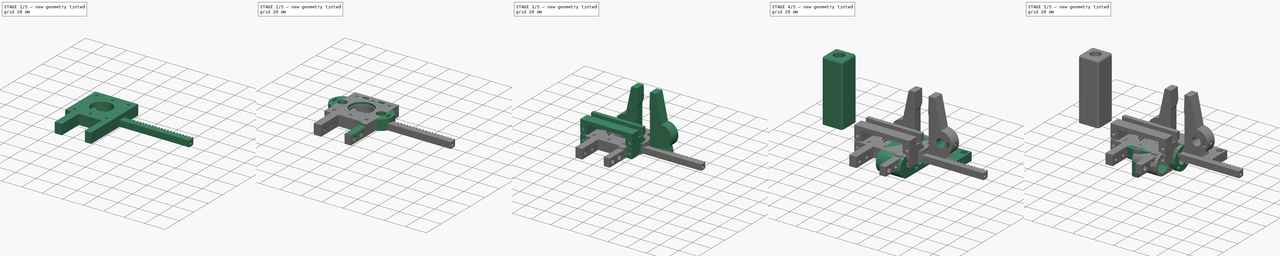
[diagram: build sequence overview — one tinted view per stage of 5, left to right]
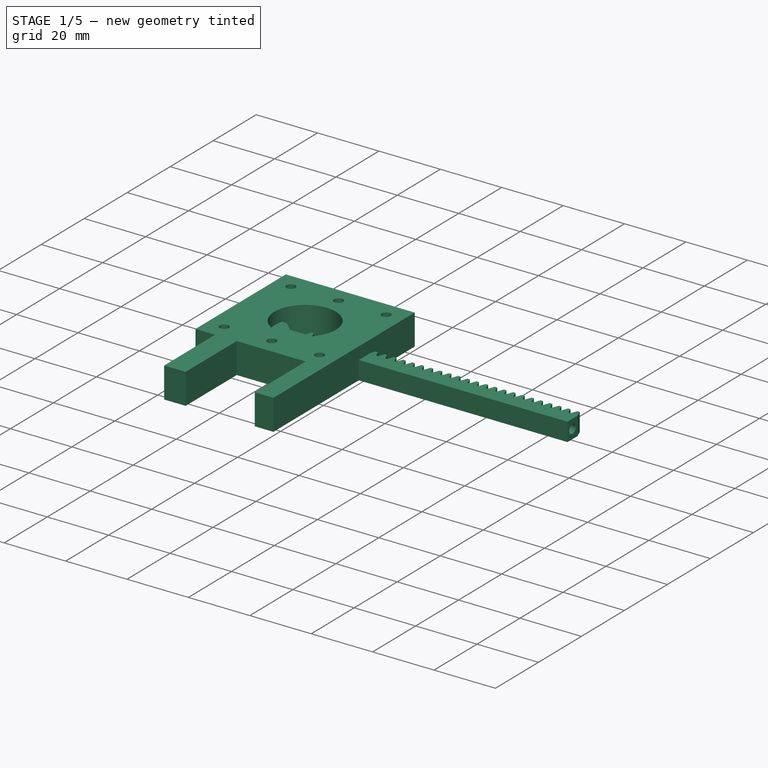
[diagram: stage 1 of 5 — iso view after this stage's code; geometry added in this stage tinted green]
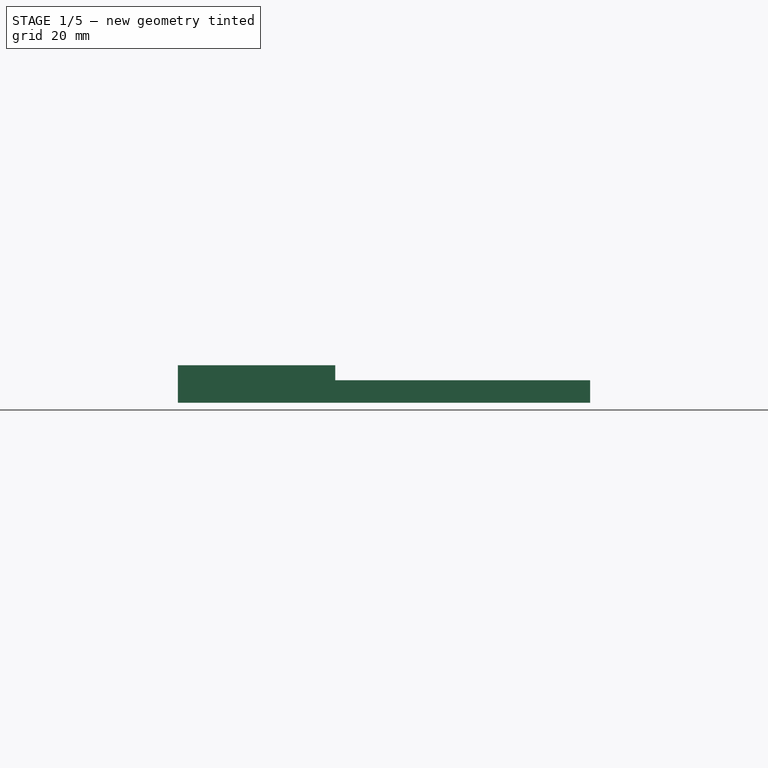
[diagram: stage 1 of 5 — front view after this stage's code; geometry added in this stage tinted green]
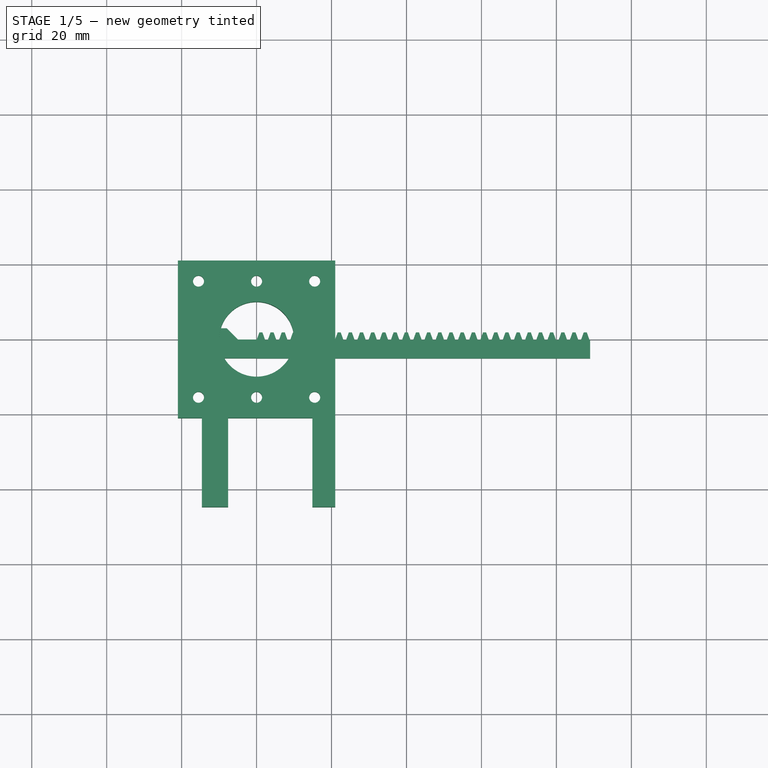
[diagram: stage 1 of 5 — top view after this stage's code; geometry added in this stage tinted green]
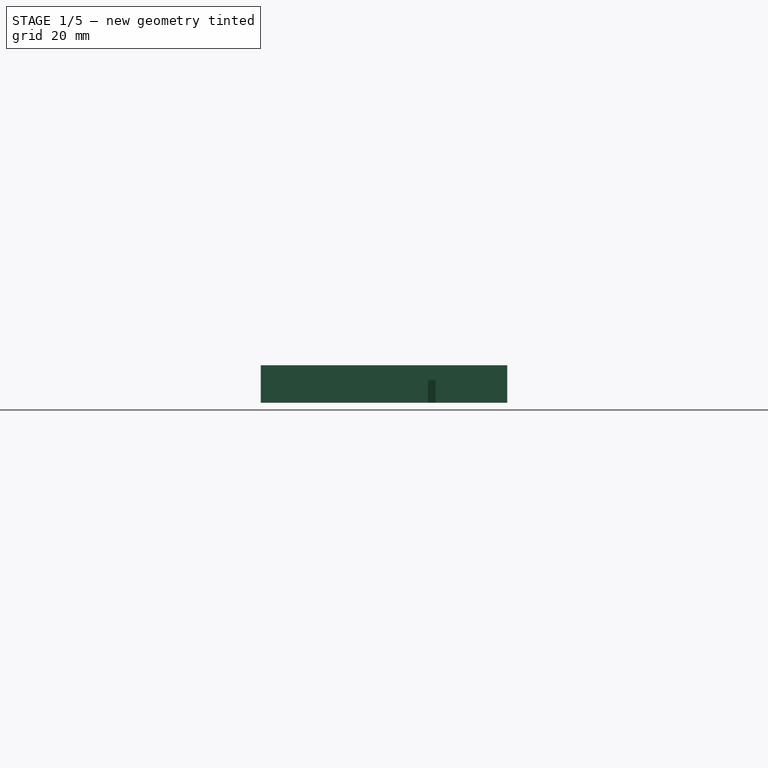
[diagram: stage 1 of 5 — right view after this stage's code; geometry added in this stage tinted green]
FCSTD DOCUMENT  (FreeCAD 0.19R24291 (Git))
Label: eje_S
License: All rights reserved
LicenseURL: http://en.wikipedia.org/wiki/All_rights_reserved
objects: Sketcher::SketchObject×45, PartDesign::Pocket×30, Part::Feature×30, PartDesign::Pad×14, PartDesign::Body×9, PartDesign::Plane×7, Spreadsheet::Sheet×6, PartDesign::Fillet×2, PartDesign::LinearPattern×1, Part::MultiFuse×1, Part::Box×1, Part::Common×1, Part::Refine×1, PartDesign::FeatureBase×1
note: 189 computed .brp shape members not serialized (recipe doc carries the construction recipe); baked Part::Feature solids carry a one-line shape summary decoded from their .brp

FEATURE [Sketcher::SketchObject] Sketch004  label="base_stepper_sketch"
  FullyConstrained = true
  MapMode = 5
  Support = -> [XY_Plane003]
  expr: Constraints[59] = <<xstepper>>.A3
  expr: Constraints[5] = <<xstepper>>.A4
  expr: Constraints[51] = <<xstepper>>.A3
  expr: Constraints[11] = <<xstepper>>.A2
  expr: Constraints[14] = <<xstepper>>.A1
  sketch-geometry (32):
    g0: LineSegment StartX=-21 StartY=21 StartZ=0 EndX=21 EndY=21 EndZ=0
    g1: LineSegment StartX=21 StartY=-21 StartZ=0 EndX=-21 EndY=-21 EndZ=0
    g2: LineSegment StartX=-21 StartY=-21 StartZ=0 EndX=-21 EndY=21 EndZ=0
    g3: LineSegment StartX=-21 StartY=-21 StartZ=0 EndX=21 EndY=21 EndZ=0
    g4: LineSegment StartX=21 StartY=-21 StartZ=0 EndX=-21 EndY=21 EndZ=0
    g5: GeomPoint X=0 Y=0 Z=0
    g6: Circle CenterX=-15.5 CenterY=15.5 CenterZ=0 NormalX=0 NormalY=0 NormalZ=1 AngleXU=0 Radius=1.475
    g7: Circle CenterX=15.5 CenterY=15.5 CenterZ=0 NormalX=0 NormalY=0 NormalZ=1 AngleXU=0 Radius=1.475
    g8: LineSegment StartX=-15.5 StartY=15.5 StartZ=0 EndX=15.5 EndY=15.5 EndZ=0
    g9: Circle CenterX=-15.5 CenterY=-15.5 CenterZ=0 NormalX=0 NormalY=0 NormalZ=1 AngleXU=0 Radius=1.475
    g10: LineSegment StartX=-15.5 StartY=15.5 StartZ=0 EndX=-15.5 EndY=-15.5 EndZ=0
    g11: Circle CenterX=15.5 CenterY=-15.5 CenterZ=0 NormalX=0 NormalY=0 NormalZ=1 AngleXU=0 Radius=1.475
    g12: LineSegment StartX=-15.5 StartY=-15.5 StartZ=0 EndX=15.5 EndY=-15.5 EndZ=0
    g13: Circle CenterX=-15.5 CenterY=0 CenterZ=0 NormalX=0 NormalY=0 NormalZ=1 AngleXU=0 Radius=1.475
    g14: Circle CenterX=0 CenterY=15.5 CenterZ=0 NormalX=0 NormalY=0 NormalZ=1 AngleXU=0 Radius=1.475
    g15: Circle CenterX=0 CenterY=-15.5 CenterZ=0 NormalX=0 NormalY=0 NormalZ=1 AngleXU=0 Radius=1.475
    g16: ArcOfCircle CenterX=0 CenterY=0 CenterZ=0 NormalX=0 NormalY=0 NormalZ=1 AngleXU=0 Radius=10 StartAngle=1.5708 EndAngle=4.71239
    g17: LineSegment StartX=21 StartY=21 StartZ=0 EndX=21 EndY=10 EndZ=0
    g18: LineSegment StartX=21 StartY=10 StartZ=0 EndX=0 EndY=10 EndZ=0
    g19: LineSegment StartX=21 StartY=-21 StartZ=0 EndX=21 EndY=-10 EndZ=0
    g20: LineSegment StartX=21 StartY=-10 StartZ=0 EndX=-3.6e-15 EndY=-10 EndZ=0
    g21: LineSegment StartX=21 StartY=10 StartZ=0 EndX=21 EndY=-10 EndZ=0
    g22: Circle CenterX=0 CenterY=0 CenterZ=0 NormalX=0 NormalY=0 NormalZ=1 AngleXU=0 Radius=10
    g23: Circle CenterX=15.5 CenterY=0 CenterZ=0 NormalX=0 NormalY=0 NormalZ=1 AngleXU=0 Radius=1.475
    g24: LineSegment StartX=-14.6 StartY=-21 StartZ=0 EndX=-14.6 EndY=-44.75 EndZ=0
    g25: LineSegment StartX=-14.6 StartY=-44.75 StartZ=0 EndX=-7.6 EndY=-44.75 EndZ=0
    g26: LineSegment StartX=-7.6 StartY=-44.75 StartZ=0 EndX=-7.6 EndY=-21 EndZ=0
    g27: LineSegment StartX=14.9 StartY=-21 StartZ=0 EndX=14.9 EndY=-44.75 EndZ=0
    g28: LineSegment StartX=14.9 StartY=-44.75 StartZ=0 EndX=21 EndY=-44.75 EndZ=0
    g29: LineSegment StartX=21 StartY=-44.75 StartZ=0 EndX=21 EndY=-21 EndZ=0
    g30: LineSegment StartX=-21 StartY=-21 StartZ=0 EndX=-14.6 EndY=-21 EndZ=0
    g31: LineSegment StartX=-7.6 StartY=-21 StartZ=0 EndX=14.9 EndY=-21 EndZ=0
  constraints (86):
    c: Coincident(g1,g2)
    c: Coincident(g2,g0)
    c: Horizontal(g0)
    c: Horizontal(g1)
    c: Vertical(g2)
    c: DistanceX(g1,g1) = 42
    c: Coincident(g3,g1)
    c: Coincident(g3,g0)
    c: Coincident(g4,g0)
    c: PointOnObject(g5,g3)
    c: PointOnObject(g5,g4)
    c: Diameter(g6) = 2.95
    c: Coincident(g6,g8)
    c: Coincident(g7,g8)
    c: Distance(g8) = 31
    c: Coincident(g6,g10)
    c: Coincident(g9,g10)
    c: Equal(g10,g8)
    c: Perpendicular(g10,g8)
    c: Coincident(g9,g12)
    c: Coincident(g11,g12)
    c: Equal(g8,g12)
    c: Parallel(g12,g8)
    c: Horizontal(g8)
    c: PointOnObject(g6,g4)
    c: PointOnObject(g7,g3)
    c: PointOnObject(g13,g10)
    c: PointOnObject(g14,g8)
    c: PointOnObject(g15,g12)
    c: PointOnObject(g15,g-2)
    c: PointOnObject(g14,g-2)
    c: PointOnObject(g13,g-1)
    c: Equal(g13,g14)
    c: Equal(g14,g15)
    c: Equal(g15,g7)
    c: Equal(g15,g9)
    c: Equal(g9,g11)
    c: Equal(g7,g6)
    c: Coincident(g16,g5)
    c: PointOnObject(g16,g-2)
    c: PointOnObject(g16,g-2)
    c: Coincident(g0,g17)
    c: Vertical(g17)
    c: Coincident(g17,g18)
    c: Coincident(g18,g16)
    c: Horizontal(g18)
    c: Coincident(g1,g19)
    c: Vertical(g19)
    c: Coincident(g19,g20)
    c: Coincident(g20,g16)
    c: Horizontal(g20)
    c: Diameter(g16) = 20
    c: Coincident(g5,g-1)
    c: Coincident(g21,g19)
    c: Coincident(g21,g17)
    c: Equal(g17,g19)
    c: Coincident(g4,g1)
    c: PointOnObject(g9,g3)
    c: Coincident(g22,g5)
    c: Diameter(g22) = 20
    c: Vertical(g23,g7)
    c: Horizontal(g23,g13)
    c: Equal(g23,g7)
    c: PointOnObject(g24,g1)
    c: Vertical(g24)
    c: Coincident(g24,g25)
    c: Horizontal(g25)
    c: Coincident(g25,g26)
    c: PointOnObject(g26,g1)
    c: Vertical(g26)
    c: PointOnObject(g27,g1)
    c: Vertical(g27)
    c: Coincident(g27,g28)
    c: Horizontal(g28)
    c: Coincident(g28,g29)
    c: Vertical(g29)
    c: Horizontal(g27,g25)
    c: DistanceX(g25,g25) = 7
    c: DistanceX(g28,g28) = 6.1
    c: Coincident(g30,g2)
    c: Coincident(g30,g24)
    c: Coincident(g31,g26)
    c: Coincident(g31,g27)
    c: Coincident(g29,g19)
    c: DistanceX(g31,g31) = 22.5
    c: DistanceY(g29,g29) = 23.75
FEATURE [PartDesign::Pad] Pad003  label="base_stepper_pad"
  AllowMultiFace = false
  Direction = (1,1,1)
  Length = 10
  Length2 = 100
  Profile = -> Sketch004
  Type = 0
  expr: Length = <<xstepper>>.A8
FEATURE [Spreadsheet::Sheet] Spreadsheet  label="xstepper"
  cells = A1==31mm; B1=distancia centro a centro; C1= agujeros stepper; A2==2.95mm; B2=diametro; C2=agujero tornillos stepper; D2==5.32mm + 0.2mm; E2=diametro; F2=cabeza tornillo M3 con 0.2 tol; A3==20mm; B3=agujero para polea; C3=Gt2 20 dientes; D3==3mm; E3=profundidad; F3=hueco cabeza tornillos M3; A4==42mm; B4=ancho ; C4=lado stepper; D4==42mm + 2mm; E4=ancho; F4=lado stepper con tolerancia (2 mm); A6==50mm; B6=alto; C6=stepper; A8==10mm; B8=altura; C8=base stepper; A10==22mm; B10=diametro; C10=cilindro protrusion del NEMA 17; D10==A10 + 0.2mm; E10=diametro; F10=cilindro protrusion del NEMA 17 (con tol 0.2 mm); A11==2mm; B11=profundidad; C11=cilindro protrusion del NEMA 17
FEATURE [Spreadsheet::Sheet] Spreadsheet001  label="yvarillas"
  cells = A1==8mm; B1=diametro varillas; C1==A1 + 0.2mm; D1=tolerancia 0.2; A2==15mm; B2=diametro ruleman; C2==A2 + 0.2mm; D2=tolerancia 0.2; A3==25mm; B3=longitud ruleman; A5==42mm + A2 + A6; B5=separacion centro a centro; C5=entre varillas; A6==3mm; B6=espesor; C6=pared rulemanes; A7==A2 + 2 * A6; B7=diametro externo; C7=paredes ruleman lineal; A9=Extras para fijar stepper y varillas; A10=Sketch placement Z; B10==45.51mm; C10=Entre el tope de la estructura y el tope del cuadradito para sujetar el stepper; A11=Distancia ; B11==5.05mm; C11=Entre el agujero para colocar el stepper-holder y el borde de la pieza; A12=Ancho; B12==5.5mm; C12=Slot para tuerca ajusta varillas; A13=Alto; B13==2.4mm; C13=Slot para tuerca ajusta varillas; A14=Profundidad; B14==A3 / 2; C14=Slot para tuerca ajusta varillas
FEATURE [Spreadsheet::Sheet] Spreadsheet002  label="xvarillas"
  cells = A1==12mm; B1=diametro varillas; D1==A1 + 0.3mm; E1=tolerancia 0.3; A2==21mm; B2=diametro ruleman lm12uu; D2==A2 + 0.2mm; E2=tolerancia 0.2; A3==25mm; B3=longitud ruleman; A5==F5 + 30mm; B5=separacion centro a centro; C5=entre varillas; F5==<<yvarillas>>.A5; G5=separacion centro a centro; H5=entre varillas eje Y; A6==3mm; B6=espesor; C6=pared rulemanes; A7==A2 + 2 * A6; B7=diametro externo; C7=paredes ruleman lineal; A9==25 * 2mm; B9=alto pad; C9=carrito Y; A11==12.5mm; B11=separacion centro a borde; C11=entre varilla X y carrito Y; A13==A5 + 2 * A1 + 2mm; B13=alto total; C13=carrito Y; A16=Extras para fijar stepper y varillas; A17=Ancho; B17==5.6mm; C17=Slot para tuerca ajusta varillas; A18=Alto; B18==2.6mm; C18=Slot para tuerca ajusta varillas; B19==2mm
FEATURE [Sketcher::SketchObject] Sketch009  label="huecos_tornillos_stepper"
  FullyConstrained = true
  MapMode = 5
  Support = -> [XY_Plane003]
  expr: Constraints[5] = <<xstepper>>.A4
  expr: Constraints[51] = <<xstepper>>.A3
  expr: Constraints[11] = <<xstepper>>.D2
  expr: Constraints[14] = <<xstepper>>.A1
  sketch-geometry (23):
    g0: LineSegment StartX=-21 StartY=21 StartZ=0 EndX=21 EndY=21 EndZ=0
    g1: LineSegment StartX=21 StartY=-21 StartZ=0 EndX=-21 EndY=-21 EndZ=0
    g2: LineSegment StartX=-21 StartY=-21 StartZ=0 EndX=-21 EndY=21 EndZ=0
    g3: LineSegment StartX=-21 StartY=-21 StartZ=0 EndX=21 EndY=21 EndZ=0
    g4: LineSegment StartX=21 StartY=-21 StartZ=0 EndX=-21 EndY=21 EndZ=0
    g5: GeomPoint X=0 Y=0 Z=0
    g6: Circle CenterX=-15.5 CenterY=15.5 CenterZ=0 NormalX=0 NormalY=0 NormalZ=1 AngleXU=0 Radius=2.76
    g7: Circle CenterX=15.5 CenterY=15.5 CenterZ=0 NormalX=0 NormalY=0 NormalZ=1 AngleXU=0 Radius=2.76
    g8: LineSegment StartX=-15.5 StartY=15.5 StartZ=0 EndX=15.5 EndY=15.5 EndZ=0
    g9: Circle CenterX=-15.5 CenterY=-15.5 CenterZ=0 NormalX=0 NormalY=0 NormalZ=1 AngleXU=0 Radius=2.76
    g10: LineSegment StartX=-15.5 StartY=15.5 StartZ=0 EndX=-15.5 EndY=-15.5 EndZ=0
    g11: Circle CenterX=15.5 CenterY=-15.5 CenterZ=0 NormalX=0 NormalY=0 NormalZ=1 AngleXU=0 Radius=2.76
    g12: LineSegment StartX=-15.5 StartY=-15.5 StartZ=0 EndX=15.5 EndY=-15.5 EndZ=0
    g13: Circle CenterX=-15.5 CenterY=0 CenterZ=0 NormalX=0 NormalY=0 NormalZ=1 AngleXU=0 Radius=2.76
    g14: Circle CenterX=0 CenterY=15.5 CenterZ=0 NormalX=0 NormalY=0 NormalZ=1 AngleXU=0 Radius=2.76
    g15: Circle CenterX=0 CenterY=-15.5 CenterZ=0 NormalX=0 NormalY=0 NormalZ=1 AngleXU=0 Radius=2.76
    g16: ArcOfCircle CenterX=0 CenterY=0 CenterZ=0 NormalX=0 NormalY=0 NormalZ=1 AngleXU=0 Radius=10 StartAngle=1.5708 EndAngle=4.71239
    g17: LineSegment StartX=21 StartY=21 StartZ=0 EndX=21 EndY=10 EndZ=0
    g18: LineSegment StartX=21 StartY=10 StartZ=0 EndX=0 EndY=10 EndZ=0
    g19: LineSegment StartX=21 StartY=-21 StartZ=0 EndX=21 EndY=-10 EndZ=0
    g20: LineSegment StartX=21 StartY=-10 StartZ=0 EndX=-3.6e-15 EndY=-10 EndZ=0
    g21: LineSegment StartX=21 StartY=10 StartZ=0 EndX=21 EndY=-10 EndZ=0
    g22: Circle CenterX=15.5 CenterY=0 CenterZ=0 NormalX=0 NormalY=0 NormalZ=1 AngleXU=0 Radius=2.76
  constraints (61):
    c: Coincident(g1,g2)
    c: Coincident(g2,g0)
    c: Horizontal(g0)
    c: Horizontal(g1)
    c: Vertical(g2)
    c: DistanceX(g1,g1) = 42
    c: Coincident(g3,g1)
    c: Coincident(g3,g0)
    c: Coincident(g4,g0)
    c: PointOnObject(g5,g3)
    c: PointOnObject(g5,g4)
    c: Diameter(g6) = 5.52
    c: Coincident(g6,g8)
    c: Coincident(g7,g8)
    c: Distance(g8) = 31
    c: Coincident(g6,g10)
    c: Coincident(g9,g10)
    c: Equal(g10,g8)
    c: Perpendicular(g10,g8)
    c: Coincident(g9,g12)
    c: Coincident(g11,g12)
    c: Equal(g8,g12)
    c: Parallel(g12,g8)
    c: Horizontal(g8)
    c: PointOnObject(g6,g4)
    c: PointOnObject(g7,g3)
    c: PointOnObject(g13,g10)
    c: PointOnObject(g14,g8)
    c: PointOnObject(g15,g12)
    c: PointOnObject(g15,g-2)
    c: PointOnObject(g14,g-2)
    c: PointOnObject(g13,g-1)
    c: Equal(g13,g14)
    c: Equal(g14,g15)
    c: Equal(g15,g7)
    c: Equal(g15,g9)
    c: Equal(g9,g11)
    c: Equal(g7,g6)
    c: Coincident(g16,g5)
    c: PointOnObject(g16,g-2)
    c: PointOnObject(g16,g-2)
    c: Coincident(g0,g17)
    c: Vertical(g17)
    c: Coincident(g17,g18)
    c: Coincident(g18,g16)
    c: Horizontal(g18)
    c: Coincident(g1,g19)
    c: Vertical(g19)
    c: Coincident(g19,g20)
    c: Coincident(g20,g16)
    c: Horizontal(g20)
    c: Diameter(g16) = 20
    c: Coincident(g5,g-1)
    c: Coincident(g21,g19)
    c: Coincident(g21,g17)
    c: Equal(g17,g19)
    c: Coincident(g4,g1)
    c: PointOnObject(g9,g3)
    c: Vertical(g22,g7)
    c: Horizontal(g22,g13)
    c: Equal(g22,g11)
FEATURE [PartDesign::Pocket] Pocket002  label="pad_huecos_tornillos_stepper"
  AllowMultiFace = false
  BaseFeature = -> Pad003
  Length = 3
  Length2 = 100
  Profile = -> Sketch009
  Reversed = true
  Type = 0
  expr: Length = <<xstepper>>.D3
FEATURE [PartDesign::Body] Body003  label="base stepper_servo_S"
  Group = -> [Sketch004,Pad003,Sketch009,Pocket002,Sketch014,Pocket006,Sketch015,Sketch016,Pocket,Pocket007,DatumPlane,Sketch,Pocket008,Sketch017,Pocket009,Sketch018,Pad,Sketch019,Pocket010,DatumPlane001,Sketch020,Pocket011,DatumPlane003,DatumPlane004,Sketch045,Pocket027,Sketch046,Pocket028,Sketch052,Pocket034]
  Origin = -> Origin003
  Placement = pos=(0,0,40) rot=(0,0,1;0rad)
  Tip = -> Pocket034
  expr: .Placement.Base.y = 0
  expr: .Placement.Base.x = 0
FEATURE [Part::Feature] polyhedron
  shape: bbox 2.985 x 6.95 x 6 mm, 9 faces (baked)
FEATURE [Part::Feature] polyhedron001
  Placement = pos=(2.98451,0,0) rot=(0,0,1;0rad)
  shape: bbox 2.985 x 6.95 x 6 mm, 9 faces (baked)
FEATURE [Part::Feature] polyhedron002
  Placement = pos=(5.96902,0,0) rot=(0,0,1;0rad)
  shape: bbox 2.985 x 6.95 x 6 mm, 9 faces (baked)
FEATURE [Part::Feature] polyhedron003
  Placement = pos=(8.95353,0,0) rot=(0,0,1;0rad)
  shape: bbox 2.985 x 6.95 x 6 mm, 9 faces (baked)
FEATURE [Part::Feature] polyhedron004
  Placement = pos=(11.938,0,0) rot=(0,0,1;0rad)
  shape: bbox 2.985 x 6.95 x 6 mm, 9 faces (baked)
FEATURE [Part::Feature] polyhedron005
  Placement = pos=(14.9226,0,0) rot=(0,0,1;0rad)
  shape: bbox 2.985 x 6.95 x 6 mm, 9 faces (baked)
FEATURE [Part::Feature] polyhedron006
  Placement = pos=(17.9071,0,0) rot=(0,0,1;0rad)
  shape: bbox 2.985 x 6.95 x 6 mm, 9 faces (baked)
FEATURE [Part::Feature] polyhedron007
  Placement = pos=(20.8916,0,0) rot=(0,0,1;0rad)
  shape: bbox 2.985 x 6.95 x 6 mm, 9 faces (baked)
FEATURE [Part::Feature] polyhedron008
  Placement = pos=(23.8761,0,0) rot=(0,0,1;0rad)
  shape: bbox 2.985 x 6.95 x 6 mm, 9 faces (baked)
FEATURE [Part::Feature] polyhedron009
  Placement = pos=(26.8606,0,0) rot=(0,0,1;0rad)
  shape: bbox 2.985 x 6.95 x 6 mm, 9 faces (baked)
FEATURE [Part::Feature] polyhedron010
  Placement = pos=(29.8451,0,0) rot=(0,0,1;0rad)
  shape: bbox 2.985 x 6.95 x 6 mm, 9 faces (baked)
FEATURE [Part::Feature] polyhedron011
  Placement = pos=(32.8296,0,0) rot=(0,0,1;0rad)
  shape: bbox 2.985 x 6.95 x 6 mm, 9 faces (baked)
FEATURE [Part::Feature] polyhedron012
  Placement = pos=(35.8141,0,0) rot=(0,0,1;0rad)
  shape: bbox 2.985 x 6.95 x 6 mm, 9 faces (baked)
FEATURE [Part::Feature] polyhedron013
  Placement = pos=(38.7986,0,0) rot=(0,0,1;0rad)
  shape: bbox 2.985 x 6.95 x 6 mm, 9 faces (baked)
FEATURE [Part::Feature] polyhedron014
  Placement = pos=(41.7831,0,0) rot=(0,0,1;0rad)
  shape: bbox 2.985 x 6.95 x 6 mm, 9 faces (baked)
FEATURE [Part::Feature] polyhedron015
  Placement = pos=(44.7677,0,0) rot=(0,0,1;0rad)
  shape: bbox 2.985 x 6.95 x 6 mm, 9 faces (baked)
FEATURE [Part::Feature] polyhedron016
  Placement = pos=(47.7522,0,0) rot=(0,0,1;0rad)
  shape: bbox 2.985 x 6.95 x 6 mm, 9 faces (baked)
FEATURE [Part::Feature] polyhedron017
  Placement = pos=(50.7367,0,0) rot=(0,0,1;0rad)
  shape: bbox 2.985 x 6.95 x 6 mm, 9 faces (baked)
FEATURE [Part::Feature] polyhedron018
  Placement = pos=(53.7212,0,0) rot=(0,0,1;0rad)
  shape: bbox 2.985 x 6.95 x 6 mm, 9 faces (baked)
FEATURE [Part::Feature] polyhedron019
  Placement = pos=(56.7057,0,0) rot=(0,0,1;0rad)
  shape: bbox 2.985 x 6.95 x 6 mm, 9 faces (baked)
FEATURE [Part::Feature] polyhedron020
  Placement = pos=(59.6902,0,0) rot=(0,0,1;0rad)
  shape: bbox 2.985 x 6.95 x 6 mm, 9 faces (baked)
FEATURE [Part::Feature] polyhedron021
  Placement = pos=(62.6747,0,0) rot=(0,0,1;0rad)
  shape: bbox 2.985 x 6.95 x 6 mm, 9 faces (baked)
FEATURE [Part::Feature] polyhedron022
  Placement = pos=(65.6592,0,0) rot=(0,0,1;0rad)
  shape: bbox 2.985 x 6.95 x 6 mm, 9 faces (baked)
FEATURE [Part::Feature] polyhedron023
  Placement = pos=(68.6437,0,0) rot=(0,0,1;0rad)
  shape: bbox 2.985 x 6.95 x 6 mm, 9 faces (baked)
FEATURE [Part::Feature] polyhedron024
  Placement = pos=(71.6283,0,0) rot=(0,0,1;0rad)
  shape: bbox 2.985 x 6.95 x 6 mm, 9 faces (baked)
FEATURE [Part::Feature] polyhedron025
  Placement = pos=(74.6128,0,0) rot=(0,0,1;0rad)
  shape: bbox 2.985 x 6.95 x 6 mm, 9 faces (baked)
FEATURE [Part::Feature] polyhedron026
  Placement = pos=(77.5973,0,0) rot=(0,0,1;0rad)
  shape: bbox 2.985 x 6.95 x 6 mm, 9 faces (baked)
FEATURE [Part::Feature] polyhedron027
  Placement = pos=(80.5818,0,0) rot=(0,0,1;0rad)
  shape: bbox 2.985 x 6.95 x 6 mm, 9 faces (baked)
FEATURE [Part::Feature] polyhedron028
  Placement = pos=(83.5663,0,0) rot=(0,0,1;0rad)
  shape: bbox 2.985 x 6.95 x 6 mm, 9 faces (baked)
FEATURE [Part::Feature] polyhedron029
  Placement = pos=(86.5508,0,0) rot=(0,0,1;0rad)
  shape: bbox 2.985 x 6.95 x 6 mm, 9 faces (baked)
FEATURE [Part::MultiFuse] Group
  Shapes = -> [polyhedron,polyhedron001,polyhedron002,polyhedron003,polyhedron004,polyhedron005,polyhedron006,polyhedron007,polyhedron008,polyhedron009,polyhedron010,polyhedron011,polyhedron012,polyhedron013,polyhedron014,polyhedron015,polyhedron016,polyhedron017,polyhedron018,polyhedron019,polyhedron020,polyhedron021,polyhedron022,polyhedron023,polyhedron024,polyhedron025,polyhedron026,polyhedron027,+2 more]
FEATURE [Part::Box] cube
  AttacherType = Attacher::AttachEngine3D
  Height = 7
  Length = 89
  Placement = pos=(0,-5.55,-0.5) rot=(0,0,1;0rad)
  Width = 7.95
FEATURE [Part::Common] intersection  label="servo_rack_M1"
  Base = -> Group
  Tool = -> cube
FEATURE [Sketcher::SketchObject] Sketch053  label="multiple_solids_hotfix_sketch"
  FullyConstrained = true
  MapMode = 5
  Placement = pos=(0,0,0) rot=(0.57735,0.57735,0.57735;2.0944rad)
  Support = -> [YZ_Plane010]
  sketch-geometry (4):
    g0: LineSegment StartX=-0.2 StartY=0 StartZ=0 EndX=-5 EndY=0 EndZ=0
    g1: LineSegment StartX=-5 StartY=0 StartZ=0 EndX=-5 EndY=6 EndZ=0
    g2: LineSegment StartX=-5 StartY=6 StartZ=0 EndX=-0.2 EndY=6 EndZ=0
    g3: LineSegment StartX=-0.2 StartY=6 StartZ=0 EndX=-0.2 EndY=0 EndZ=0
  constraints (12):
    c: Coincident(g0,g1)
    c: Coincident(g1,g2)
    c: Coincident(g2,g3)
    c: Coincident(g3,g0)
    c: Horizontal(g0)
    c: Horizontal(g2)
    c: Vertical(g1)
    c: Vertical(g3)
    c: DistanceY(g1,g1) = 6
    c: PointOnObject(g0,g-1)
    c: DistanceX(g2,g2) = 4.8
    c: DistanceX(g2,g-1) = 0.2
FEATURE [Sketcher::SketchObject] Sketch054  label="screw_Sketch054"
  ExternalGeometry = -> [Sketch053]
  FullyConstrained = true
  MapMode = 5
  Placement = pos=(0,0,0) rot=(0.57735,0.57735,0.57735;2.0944rad)
  Support = -> [YZ_Plane010]
  sketch-geometry (2):
    g0: Circle CenterX=-2.8 CenterY=3 CenterZ=0 NormalX=0 NormalY=0 NormalZ=1 AngleXU=0 Radius=1.5
    g1: Circle CenterX=-2.8 CenterY=3 CenterZ=0 NormalX=0 NormalY=0 NormalZ=1 AngleXU=0 Radius=3.72022
  constraints (5):
    c: DistanceX(g-3,g0) = 2.2
    c: Diameter(g0) = 3
    c: Coincident(g1,g0)
    c: PointOnObject(g-3,g1)
    c: PointOnObject(g-3,g1)
FEATURE [Part::Refine] intersection001  label="servo_rack_M1_refined"
  Source = -> intersection
FEATURE [PartDesign::FeatureBase] BaseFeature  label="servo_rack_M1_BaseFeature"
  BaseFeature = -> intersection001
FEATURE [PartDesign::Pad] Pad022
  BaseFeature = -> BaseFeature
  Direction = (1,1,1)
  Length = 10
  Length2 = 100
  Profile = -> Sketch053
  Type = 3
  UpToFace = -> BaseFeature [Face137]
FEATURE [PartDesign::Pocket] Pocket035
  BaseFeature = -> Pad022
  Length = 5
  Length2 = 100
  Midplane = true
  Profile = -> Sketch054
  Type = 1
FEATURE [PartDesign::Body] Body010  label="servo_rack"
  BaseFeature = -> intersection001
  Group = -> [BaseFeature,Sketch053,Sketch054,Pad022,Pocket035]
  Origin = -> Origin010
  Placement = pos=(-3.4,-26,25.2) rot=(0.707107,0,0.707107;3.14159rad)
  Tip = -> Pocket035
FEATURE [Sketcher::SketchObject] Sketch055
  FullyConstrained = true
  MapMode = 5
  Support = -> [XY_Plane011]
  sketch-geometry (8):
    g0: LineSegment StartX=0 StartY=0 StartZ=0 EndX=-10 EndY=0 EndZ=0
    g1: LineSegment StartX=-10 StartY=0 StartZ=0 EndX=-10 EndY=-5 EndZ=0
    g2: LineSegment StartX=-10 StartY=-5 StartZ=0 EndX=0 EndY=-5 EndZ=0
    g3: LineSegment StartX=0 StartY=-5 StartZ=0 EndX=0 EndY=0 EndZ=0
    g4: LineSegment StartX=-10 StartY=0 StartZ=0 EndX=-10 EndY=3 EndZ=0
    g5: LineSegment StartX=-10 StartY=3 StartZ=0 EndX=-8 EndY=3 EndZ=0
    g6: LineSegment StartX=-8 StartY=3 StartZ=0 EndX=-5 EndY=0 EndZ=0
    g7: LineSegment StartX=-5 StartY=0 StartZ=0 EndX=0 EndY=0 EndZ=0
  constraints (22):
    c: Coincident(g0,g1)
    c: Coincident(g1,g2)
    c: Coincident(g2,g3)
    c: Coincident(g3,g0)
    c: Horizontal(g0)
    c: Horizontal(g2)
    c: Vertical(g1)
    c: Vertical(g3)
    c: DistanceY(g3,g3) = 5
    c: DistanceX(g2,g2) = 10
    c: Coincident(g1,g4)
    c: Vertical(g4)
    c: Coincident(g4,g5)
    c: Horizontal(g5)
    c: Coincident(g5,g6)
    c: PointOnObject(g6,g0)
    c: Coincident(g6,g7)
    c: Coincident(g7,g3)
    c: DistanceX(g5,g5) = 2
    c: DistanceY(g1,g4) = 8
    c: Angle(g3,g6) = 0.785398
    c: Coincident(g3,g-1)
FEATURE [PartDesign::Pad] Pad023
  Direction = (1,1,1)
  Length = 6
  Length2 = 100
  Profile = -> Sketch055
  Type = 0
FEATURE [Sketcher::SketchObject] Sketch056
  ExternalGeometry = -> [Sketch055]
  FullyConstrained = true
  MapMode = 5
  Placement = pos=(0,0,0) rot=(0.57735,0.57735,0.57735;2.0944rad)
  Support = -> [YZ_Plane011]
  sketch-geometry (3):
    g0: Circle CenterX=-2.5 CenterY=3 CenterZ=0 NormalX=0 NormalY=0 NormalZ=1 AngleXU=0 Radius=1.5
    g1: Circle CenterX=-2.5 CenterY=3 CenterZ=0 NormalX=0 NormalY=0 NormalZ=1 AngleXU=0 Radius=3.90512
    g2: LineSegment StartX=-5 StartY=0 StartZ=0 EndX=-5 EndY=6 EndZ=0
  constraints (8):
    c: Coincident(g1,g0)
    c: PointOnObject(g-3,g1)
    c: PointOnObject(g-3,g1)
    c: Diameter(g0) = 3
    c: Coincident(g2,g-3)
    c: PointOnObject(g2,g1)
    c: Vertical(g2)
    c: DistanceY(g2,g2) = 6
FEATURE [PartDesign::Pocket] Pocket036
  BaseFeature = -> Pad023
  Length = 8
  Length2 = 100
  Profile = -> Sketch056
  Type = 0
FEATURE [PartDesign::Body] Body011  label="servo_rack_foot"
  Group = -> [Sketch055,Pad023,Sketch056,Pocket036]
  Origin = -> Origin011
  Placement = pos=(-3.4,-26,24) rot=(0.707107,0,0.707107;3.14159rad)
  Tip = -> Pocket036
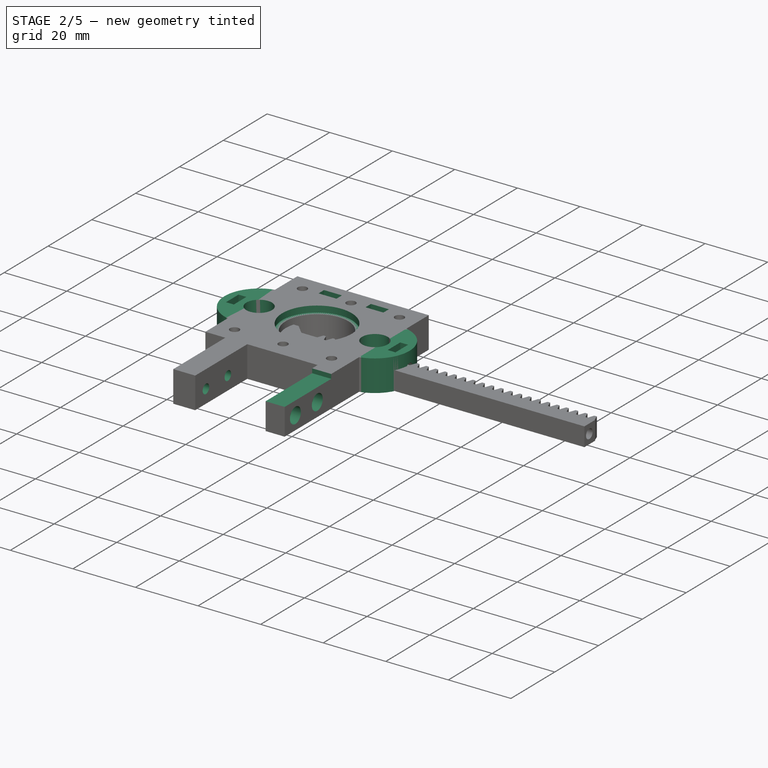
[diagram: stage 2 of 5 — iso view after this stage's code; geometry added in this stage tinted green]
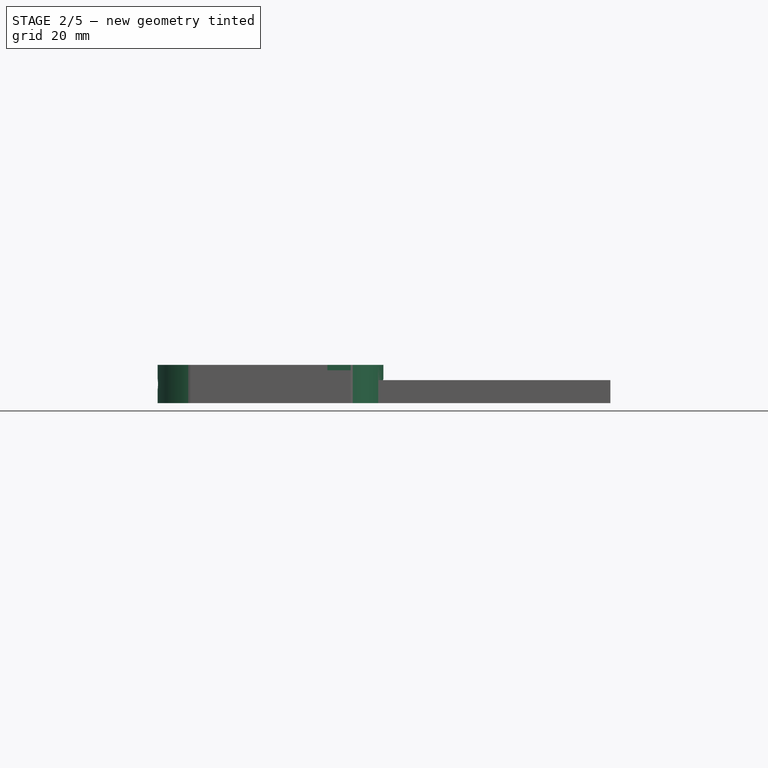
[diagram: stage 2 of 5 — front view after this stage's code; geometry added in this stage tinted green]
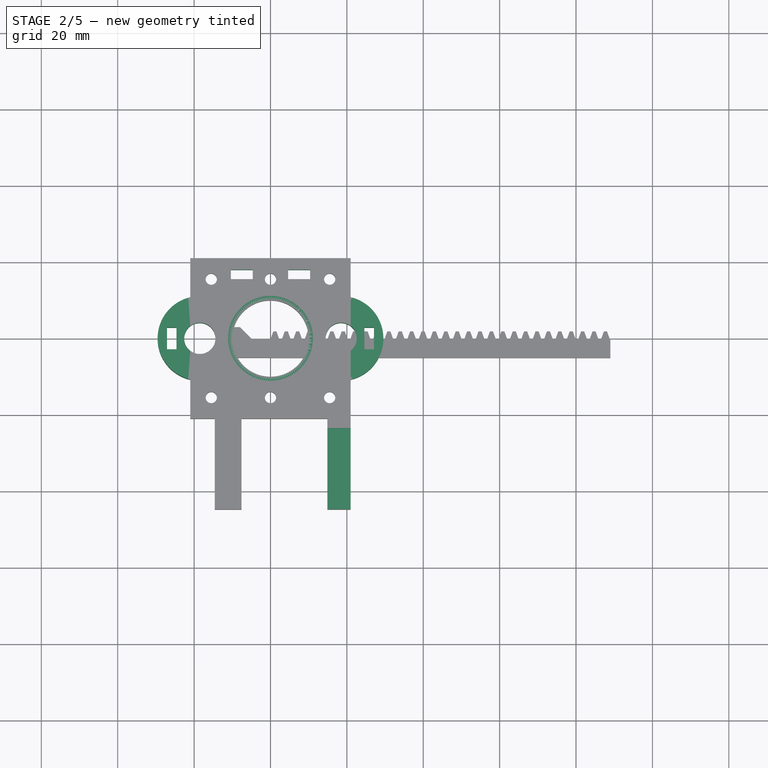
[diagram: stage 2 of 5 — top view after this stage's code; geometry added in this stage tinted green]
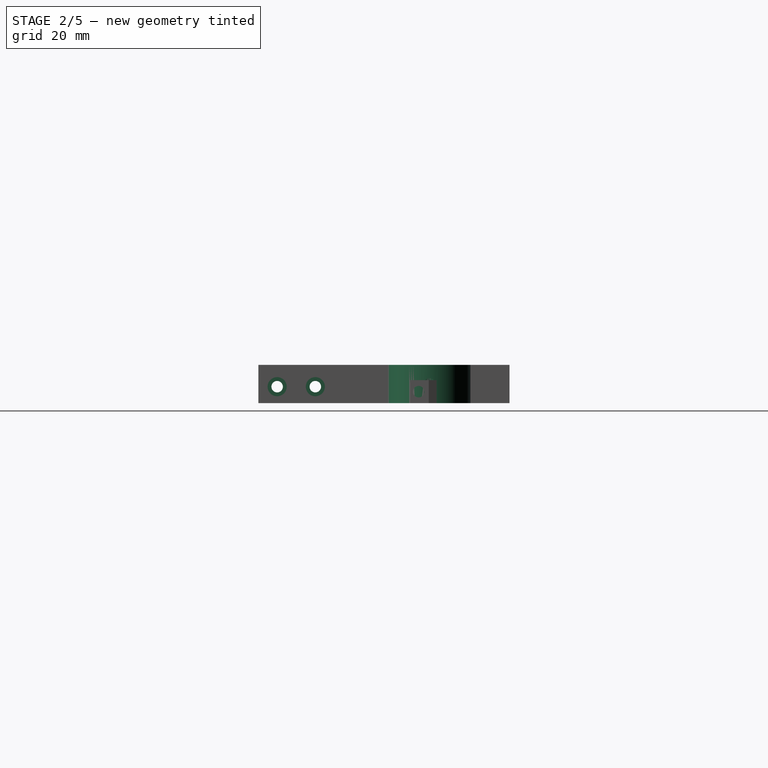
[diagram: stage 2 of 5 — right view after this stage's code; geometry added in this stage tinted green]
FEATURE [Spreadsheet::Sheet] Spreadsheet003  label="zvarillas"
  cells = A1==8mm; B1=diametro varillas; D1==A1 + 0.2mm; E1=tolerancia 0.2; A2==15mm; B2=diametro ruleman; D2==A2 + 0.2mm; E2=tolerancia 0.2; A3==50mm; B3=longitud ruleman; D4==170mm; E4=recorrido total; A5==<<xvarillas>>.A3 + <<xstepper>>.A8; B5=separacion centro a centro; C5=entre varillas; D5==D4 - G5; E5=recorrido efectivo; G5==25mm; H5=alto carritos Z; A6==3mm; B6=espesor; C6=pared rulemanes; A7==A2 + 2 * A6; B7=diametro externo; C7=paredes ruleman lineal; A8==15mm; B8=espesor; C8=socket varillas Z; A9==3mm; B9=diametro; C9=tornillos; D9==4.5mm + 0.5mm; E9=diametro; F9=cabeza tornillos; D10==2mm; E10=profundidad; F10=agujero cabeza tornillos; A11==7mm; B11=altura; C11=ruleman ABEC; A13=ancho; B13==5.73mm; C13=ancho tuercas M3; D13=con tol, del lado plano; A14=alto; B14==2.5mm; C14=alto tuercas M3; D14=con tol
FEATURE [Sketcher::SketchObject] Sketch014  label="stepper_cutout_sketch"
  FullyConstrained = true
  MapMode = 5
  Placement = pos=(0,0,10) rot=(0,0,1;0rad)
  Support = -> [Pocket002]
  expr: Constraints[1] = <<xstepper>>.D10
  sketch-geometry (1):
    g0: Circle CenterX=0 CenterY=0 CenterZ=0 NormalX=0 NormalY=0 NormalZ=1 AngleXU=0 Radius=11.1
  constraints (2):
    c: Coincident(g0,g-1)
    c: Diameter(g0) = 22.2
FEATURE [PartDesign::Pocket] Pocket006  label="stepper_cutout_pad"
  AllowMultiFace = false
  BaseFeature = -> Pocket002
  Length = 2
  Length2 = 100
  Profile = -> Sketch014
  Type = 0
  expr: Length = <<xstepper>>.A11
FEATURE [Sketcher::SketchObject] Sketch015  label="servo_mount_holes1"
  ExternalGeometry = -> [Pocket006]
  FullyConstrained = true
  MapMode = 5
  Placement = pos=(0,0,0) rot=(0.57735,0.57735,0.57735;2.0944rad)
  Support = -> [YZ_Plane003]
  expr: Constraints[2] = <<servo_sheet>>.B1
  sketch-geometry (7):
    g0: Circle CenterX=-39.85 CenterY=4.3 CenterZ=0 NormalX=0 NormalY=0 NormalZ=1 AngleXU=0 Radius=1.5
    g1: Circle CenterX=-29.85 CenterY=4.3 CenterZ=0 NormalX=0 NormalY=0 NormalZ=1 AngleXU=0 Radius=1.5
    g2: LineSegment StartX=-44.75 StartY=11.6 StartZ=0 EndX=-23.5 EndY=11.6 EndZ=0
    g3: LineSegment StartX=-23.5 StartY=8.6 StartZ=0 EndX=-44.75 EndY=8.6 EndZ=0
    g4: LineSegment StartX=-23.5 StartY=11.6 StartZ=0 EndX=-23.5 EndY=8.6 EndZ=0
    g5: LineSegment StartX=-44.75 StartY=11.6 StartZ=0 EndX=-44.75 EndY=8.6 EndZ=0
    g6: LineSegment StartX=-39.85 StartY=4.3 StartZ=0 EndX=-44.75 EndY=4.3 EndZ=0
  constraints (22):
    c: Equal(g1,g0)
    c: Horizontal(g0,g1)
    c: DistanceX(g0,g1) = 10
    c: Diameter(g1) = 3
    c: DistanceX(g-3,g0) = 4.9
    c: Horizontal(g2)
    c: Horizontal(g3)
    c: DistanceY(g3,g2) = 3
    c: Coincident(g4,g2)
    c: Coincident(g4,g3)
    c: Vertical(g4)
    c: DistanceY(g1,g3) = 4.3
    c: Coincident(g5,g2)
    c: Coincident(g5,g3)
    c: Vertical(g5)
    c: DistanceY(g-3,g0) = 4.3
    c: Vertical(g3,g-3)
    c: Coincident(g6,g0)
    c: Horizontal(g6)
    c: Symmetric(g3,g-3,g6)
    c: DistanceY(g-3,g1) = 4.3
    c: DistanceX(g2,g2) = 21.25
FEATURE [Sketcher::SketchObject] Sketch016  label="servo_mount_cutout"
  ExternalGeometry = -> [Pocket006]
  FullyConstrained = true
  MapMode = 5
  Placement = pos=(0,0,0) rot=(0.57735,0.57735,0.57735;2.0944rad)
  Support = -> [YZ_Plane003]
  sketch-geometry (7):
    g0: Circle CenterX=-39.85 CenterY=4.3 CenterZ=0 NormalX=0 NormalY=0 NormalZ=1 AngleXU=0 Radius=1.5
    g1: Circle CenterX=-29.85 CenterY=4.3 CenterZ=0 NormalX=0 NormalY=0 NormalZ=1 AngleXU=0 Radius=1.5
    g2: LineSegment StartX=-44.75 StartY=11.6 StartZ=0 EndX=-23.5 EndY=11.6 EndZ=0
    g3: LineSegment StartX=-23.5 StartY=8.6 StartZ=0 EndX=-44.75 EndY=8.6 EndZ=0
    g4: LineSegment StartX=-23.5 StartY=11.6 StartZ=0 EndX=-23.5 EndY=8.6 EndZ=0
    g5: LineSegment StartX=-44.75 StartY=11.6 StartZ=0 EndX=-44.75 EndY=8.6 EndZ=0
    g6: LineSegment StartX=-39.85 StartY=4.3 StartZ=0 EndX=-44.75 EndY=4.3 EndZ=0
  constraints (22):
    c: Equal(g1,g0)
    c: Horizontal(g0,g1)
    c: DistanceX(g0,g1) = 10
    c: Diameter(g1) = 3
    c: DistanceX(g-3,g0) = 4.9
    c: Horizontal(g2)
    c: Horizontal(g3)
    c: DistanceY(g3,g2) = 3
    c: Coincident(g4,g2)
    c: Coincident(g4,g3)
    c: Vertical(g4)
    c: DistanceY(g1,g3) = 4.3
    c: Coincident(g5,g2)
    c: Coincident(g5,g3)
    c: Vertical(g5)
    c: DistanceY(g-3,g0) = 4.3
    c: Vertical(g3,g-3)
    c: Coincident(g6,g0)
    c: Horizontal(g6)
    c: Symmetric(g3,g-3,g6)
    c: DistanceY(g-3,g1) = 4.3
    c: DistanceX(g2,g2) = 21.25
FEATURE [PartDesign::Pocket] Pocket  label="servo_mount_cut"
  BaseFeature = -> Pocket006
  Length = 5
  Length2 = 100
  Profile = -> Sketch016
  Reversed = true
  Type = 1
FEATURE [PartDesign::Pocket] Pocket007  label="servo_mount_holes1_cut"
  BaseFeature = -> Pocket
  Length = 5
  Length2 = 100
  Midplane = true
  Profile = -> Sketch015
  Type = 1
FEATURE [PartDesign::Plane] DatumPlane  label="servo_mount_holes2_plane"
  Length = 60
  MapMode = 5
  Placement = pos=(21,0,0) rot=(0.57735,0.57735,0.57735;2.0944rad)
  ResizeMode = 0
  Support = -> [Pocket007]
  Width = 60
FEATURE [Sketcher::SketchObject] Sketch  label="servo_mount_holes2_sketch"
  ExternalGeometry = -> [Sketch015]
  FullyConstrained = true
  MapMode = 5
  Placement = pos=(21,0,0) rot=(0.57735,0.57735,0.57735;2.0944rad)
  Support = -> [DatumPlane]
  sketch-geometry (2):
    g0: Circle CenterX=-39.85 CenterY=4.3 CenterZ=0 NormalX=0 NormalY=0 NormalZ=1 AngleXU=0 Radius=2.5
    g1: Circle CenterX=-29.85 CenterY=4.3 CenterZ=0 NormalX=0 NormalY=0 NormalZ=1 AngleXU=0 Radius=2.5
  constraints (4):
    c: Coincident(g0,g-3)
    c: Coincident(g1,g-4)
    c: Equal(g1,g0)
    c: Diameter(g1) = 5
FEATURE [PartDesign::Pocket] Pocket008  label="servo_mount_holes2_cut"
  BaseFeature = -> Pocket007
  Length = 3
  Length2 = 100
  Profile = -> Sketch
  Type = 0
FEATURE [Sketcher::SketchObject] Sketch017  label="varillas_S_hole_sketch"
  ExternalGeometry = -> [Sketch004]
  FullyConstrained = true
  MapMode = 5
  Support = -> [XY_Plane003]
  sketch-geometry (18):
    g0: LineSegment StartX=-21 StartY=21 StartZ=0 EndX=21 EndY=21 EndZ=0
    g1: LineSegment StartX=21 StartY=21 StartZ=0 EndX=21 EndY=-21 EndZ=0
    g2: LineSegment StartX=21 StartY=-21 StartZ=0 EndX=-21 EndY=-21 EndZ=0
    g3: LineSegment StartX=-21 StartY=-21 StartZ=0 EndX=-21 EndY=21 EndZ=0
    g4: Circle CenterX=-18.5 CenterY=0 CenterZ=0 NormalX=0 NormalY=0 NormalZ=1 AngleXU=0 Radius=4.09
    g5: Circle CenterX=18.5 CenterY=0 CenterZ=0 NormalX=0 NormalY=0 NormalZ=1 AngleXU=0 Radius=4.09
    g6: LineSegment StartX=-27.09 StartY=2.865 StartZ=0 EndX=-24.59 EndY=2.865 EndZ=0
    g7: LineSegment StartX=-24.59 StartY=2.865 StartZ=0 EndX=-24.59 EndY=-2.865 EndZ=0
    g8: LineSegment StartX=-24.59 StartY=-2.865 StartZ=0 EndX=-27.09 EndY=-2.865 EndZ=0
    g9: LineSegment StartX=-27.09 StartY=-2.865 StartZ=0 EndX=-27.09 EndY=2.865 EndZ=0
    g10: LineSegment StartX=-24.59 StartY=8e-16 StartZ=0 EndX=-22.59 EndY=8e-16 EndZ=0
    g11: ArcOfCircle CenterX=-18.5 CenterY=0 CenterZ=0 NormalX=0 NormalY=0 NormalZ=1 AngleXU=0 Radius=11.0552 StartAngle=1.79891 EndAngle=4.48428
    g12: Circle CenterX=-27.09 CenterY=2.865 CenterZ=0 NormalX=0 NormalY=0 NormalZ=1 AngleXU=0 Radius=2
    g13: LineSegment StartX=24.59 StartY=2.865 StartZ=0 EndX=27.09 EndY=2.865 EndZ=0
    g14: LineSegment StartX=27.09 StartY=2.865 StartZ=0 EndX=27.09 EndY=-2.865 EndZ=0
    g15: LineSegment StartX=27.09 StartY=-2.865 StartZ=0 EndX=24.59 EndY=-2.865 EndZ=0
    g16: LineSegment StartX=24.59 StartY=-2.865 StartZ=0 EndX=24.59 EndY=2.865 EndZ=0
    g17: ArcOfCircle CenterX=18.5 CenterY=0 CenterZ=0 NormalX=0 NormalY=0 NormalZ=1 AngleXU=0 Radius=11.0552 StartAngle=4.9405 EndAngle=7.62587
  constraints (51):
    c: Coincident(g0,g1)
    c: Coincident(g1,g2)
    c: Coincident(g2,g3)
    c: Coincident(g3,g0)
    c: Horizontal(g0)
    c: Horizontal(g2)
    c: Vertical(g1)
    c: Vertical(g3)
    c: Coincident(g0,g-4)
    c: Horizontal(g1,g-3)
    c: Vertical(g-4,g1)
    c: PointOnObject(g4,g-1)
    c: Equal(g5,g4)
    c: Symmetric(g5,g4,g-1)
    c: Diameter(g5) = 8.18
    c: DistanceX(g4,g5) = 37
    c: Coincident(g6,g7)
    c: Coincident(g7,g8)
    c: Coincident(g8,g9)
    c: Coincident(g9,g6)
    c: Horizontal(g6)
    c: Horizontal(g8)
    c: Vertical(g9)
    c: DistanceY(g7,g7) = 5.73
    c: DistanceX(g6,g6) = 2.5
    c: Symmetric(g6,g7,g-1)
    c: PointOnObject(g10,g7)
    c: Horizontal(g10)
    c: Perpendicular(g10,g4) = 4.71239
    c: DistanceX(g10,g10) = 2
    c: Coincident(g11,g4)
    c: PointOnObject(g11,g3)
    c: PointOnObject(g11,g3)
    c: Coincident(g12,g6)
    c: Tangent(g12,g11)
    c: Diameter(g12) = 4
    c: Coincident(g13,g14)
    c: Coincident(g14,g15)
    c: Coincident(g15,g16)
    c: Coincident(g16,g13)
    c: Horizontal(g13)
    c: Horizontal(g15)
    c: Vertical(g16)
    c: Equal(g7,g14) = 5.73
    c: Equal(g6,g13) = 2.5
    c: Vertical(g14)
    c: Symmetric(g13,g6,g-2)
    c: Coincident(g17,g5)
    c: PointOnObject(g17,g1)
    c: PointOnObject(g17,g1)
    c: Equal(g17,g11)
FEATURE [PartDesign::Pocket] Pocket009  label="varillas_S_hole"
  BaseFeature = -> Pocket008
  Length = 5
  Length2 = 100
  Midplane = true
  Profile = -> Sketch017
  Type = 1
FEATURE [Sketcher::SketchObject] Sketch018  label="varillas_S_hole_sketch001"
  ExternalGeometry = -> [Sketch004]
  FullyConstrained = true
  MapMode = 5
  Support = -> [XY_Plane003]
  expr: Constraints[24] = <<adapter_spreadsheet>>.B18
  expr: Constraints[23] = <<adapter_spreadsheet>>.B17
  expr: Constraints[14] = <<adapter_spreadsheet>>.diametro_varillas_S_con_tol
  expr: Constraints[15] = <<adapter_spreadsheet>>.separacion_entre_varillas_S
  sketch-geometry (29):
    g0: LineSegment StartX=-21 StartY=21 StartZ=0 EndX=21 EndY=21 EndZ=0
    g1: LineSegment StartX=21 StartY=21 StartZ=0 EndX=21 EndY=-21 EndZ=0
    g2: LineSegment StartX=21 StartY=-21 StartZ=0 EndX=-21 EndY=-21 EndZ=0
    g3: LineSegment StartX=-21 StartY=-21 StartZ=0 EndX=-21 EndY=21 EndZ=0
    g4: Circle CenterX=-18.5 CenterY=0 CenterZ=0 NormalX=0 NormalY=0 NormalZ=1 AngleXU=0 Radius=4.09
    g5: Circle CenterX=18.5 CenterY=0 CenterZ=0 NormalX=0 NormalY=0 NormalZ=1 AngleXU=0 Radius=4.09
    g6: LineSegment StartX=-27.09 StartY=2.865 StartZ=0 EndX=-24.59 EndY=2.865 EndZ=0
    g7: LineSegment StartX=-24.59 StartY=2.865 StartZ=0 EndX=-24.59 EndY=-2.865 EndZ=0
    g8: LineSegment StartX=-24.59 StartY=-2.865 StartZ=0 EndX=-27.09 EndY=-2.865 EndZ=0
    g9: LineSegment StartX=-27.09 StartY=-2.865 StartZ=0 EndX=-27.09 EndY=2.865 EndZ=0
    g10: LineSegment StartX=-24.59 StartY=8e-16 StartZ=0 EndX=-22.59 EndY=8e-16 EndZ=0
    g11: ArcOfCircle CenterX=-18.5 CenterY=0 CenterZ=0 NormalX=0 NormalY=0 NormalZ=1 AngleXU=0 Radius=11.0552 StartAngle=1.79891 EndAngle=4.48428
    g12: Circle CenterX=-27.09 CenterY=2.865 CenterZ=0 NormalX=0 NormalY=0 NormalZ=1 AngleXU=0 Radius=2
    g13: LineSegment StartX=24.59 StartY=2.865 StartZ=0 EndX=27.09 EndY=2.865 EndZ=0
    g14: LineSegment StartX=27.09 StartY=2.865 StartZ=0 EndX=27.09 EndY=-2.865 EndZ=0
    g15: LineSegment StartX=27.09 StartY=-2.865 StartZ=0 EndX=24.59 EndY=-2.865 EndZ=0
    g16: LineSegment StartX=24.59 StartY=-2.865 StartZ=0 EndX=24.59 EndY=2.865 EndZ=0
    g17: ArcOfCircle CenterX=18.5 CenterY=0 CenterZ=0 NormalX=0 NormalY=0 NormalZ=1 AngleXU=0 Radius=11.0552 StartAngle=4.9405 EndAngle=7.62587
    g18: LineSegment StartX=-21 StartY=10.7688 StartZ=0 EndX=21 EndY=10.7688 EndZ=0
    g19: LineSegment StartX=21 StartY=10.7688 StartZ=0 EndX=21 EndY=-10.7688 EndZ=0
    g20: LineSegment StartX=21 StartY=-10.7688 StartZ=0 EndX=-21 EndY=-10.7688 EndZ=0
    g21: LineSegment StartX=-21 StartY=-10.7688 StartZ=0 EndX=-21 EndY=10.7688 EndZ=0
    g22: LineSegment StartX=-21 StartY=10.7688 StartZ=0 EndX=-13.41 EndY=10.7688 EndZ=0
    g23: LineSegment StartX=-13.41 StartY=10.7688 StartZ=0 EndX=-13.41 EndY=-10.7688 EndZ=0
    g24: LineSegment StartX=-13.41 StartY=-10.7688 StartZ=0 EndX=-21 EndY=-10.7688 EndZ=0
    g25: LineSegment StartX=13.41 StartY=10.7688 StartZ=0 EndX=13.41 EndY=-10.7688 EndZ=0
    g26: LineSegment StartX=13.41 StartY=-10.7688 StartZ=0 EndX=21 EndY=-10.7688 EndZ=0
    g27: LineSegment StartX=13.41 StartY=10.7688 StartZ=0 EndX=21 EndY=10.7688 EndZ=0
    g28: LineSegment StartX=-13.41 StartY=0 StartZ=0 EndX=-14.41 EndY=0 EndZ=0
  constraints (79):
    c: Coincident(g0,g1)
    c: Coincident(g1,g2)
    c: Coincident(g2,g3)
    c: Coincident(g3,g0)
    c: Horizontal(g0)
    c: Horizontal(g2)
    c: Vertical(g1)
    c: Vertical(g3)
    c: Coincident(g0,g-4)
    c: Horizontal(g1,g-3)
    c: Vertical(g-4,g1)
    c: PointOnObject(g4,g-1)
    c: Equal(g5,g4)
    c: Symmetric(g5,g4,g-1)
    c: Diameter(g5) = 8.18
    c: DistanceX(g4,g5) = 37
    c: Coincident(g6,g7)
    c: Coincident(g7,g8)
    c: Coincident(g8,g9)
    c: Coincident(g9,g6)
    c: Horizontal(g6)
    c: Horizontal(g8)
    c: Vertical(g9)
    c: DistanceY(g7,g7) = 5.73
    c: DistanceX(g6,g6) = 2.5
    c: Symmetric(g6,g7,g-1)
    c: PointOnObject(g10,g7)
    c: Horizontal(g10)
    c: Perpendicular(g10,g4) = 4.71239
    c: DistanceX(g10,g10) = 2
    c: Coincident(g11,g4)
    c: Coincident(g12,g6)
    c: Tangent(g12,g11)
    c: Diameter(g12) = 4
    c: Coincident(g13,g14)
    c: Coincident(g14,g15)
    c: Coincident(g15,g16)
    c: Coincident(g16,g13)
    c: Horizontal(g13)
    c: Horizontal(g15)
    c: Vertical(g16)
    c: Equal(g7,g14) = 5.73
    c: Equal(g6,g13) = 2.5
    c: Vertical(g14)
    c: Symmetric(g13,g6,g-2)
    c: Coincident(g17,g5)
    c: Equal(g17,g11)
    c: Coincident(g18,g19)
    c: Coincident(g19,g20)
    c: Coincident(g20,g21)
    c: Coincident(g21,g18)
    c: Horizontal(g18)
    c: Horizontal(g20)
    c: Vertical(g19)
    c: Coincident(g18,g11)
    c: Coincident(g17,g19)
    c: Coincident(g20,g11)
    c: Coincident(g18,g17)
    c: PointOnObject(g17,g1)
    c: Coincident(g22,g11)
    c: PointOnObject(g22,g18)
    c: Coincident(g23,g22)
    c: PointOnObject(g23,g20)
    c: Vertical(g23)
    c: Coincident(g24,g23)
    c: Coincident(g24,g11)
    c: PointOnObject(g25,g18)
    c: PointOnObject(g25,g20)
    c: Vertical(g25)
    c: Coincident(g26,g25)
    c: Coincident(g26,g17)
    c: Coincident(g27,g25)
    c: Coincident(g27,g17)
    c: Equal(g27,g22)
    c: PointOnObject(g28,g23)
    c: Horizontal(g28)
    c: Perpendicular(g4,g28)
    c: PointOnObject(g28,g4)
    c: DistanceX(g28,g28) = 1
FEATURE [PartDesign::Pad] Pad  label="varillas_S_pad"
  BaseFeature = -> Pocket009
  Direction = (1,1,1)
  Length = 10
  Length2 = 100
  Profile = -> Sketch018
  Type = 0
  expr: Length = <<xstepper>>.A8
FEATURE [Sketcher::SketchObject] Sketch019  label="base_attachment_nut_holes_sketch"
  ExternalGeometry = -> [Pad]
  FullyConstrained = true
  MapMode = 5
  Support = -> [XY_Plane003]
  expr: Constraints[34] = <<adapter_spreadsheet>>.B19
  sketch-geometry (13):
    g0: LineSegment StartX=-10.365 StartY=18 StartZ=0 EndX=-4.635 EndY=18 EndZ=0
    g1: LineSegment StartX=-4.635 StartY=18 StartZ=0 EndX=-4.635 EndY=15.5 EndZ=0
    g2: LineSegment StartX=-4.635 StartY=15.5 StartZ=0 EndX=-10.365 EndY=15.5 EndZ=0
    g3: LineSegment StartX=-10.365 StartY=15.5 StartZ=0 EndX=-10.365 EndY=18 EndZ=0
    g4: LineSegment StartX=4.635 StartY=18 StartZ=0 EndX=10.365 EndY=18 EndZ=0
    g5: LineSegment StartX=10.365 StartY=18 StartZ=0 EndX=10.365 EndY=15.5 EndZ=0
    g6: LineSegment StartX=10.365 StartY=15.5 StartZ=0 EndX=4.635 EndY=15.5 EndZ=0
    g7: LineSegment StartX=4.635 StartY=15.5 StartZ=0 EndX=4.635 EndY=18 EndZ=0
    g8: LineSegment StartX=-10.365 StartY=18 StartZ=0 EndX=-4.635 EndY=15.5 EndZ=0
    g9: LineSegment StartX=-4.635 StartY=18 StartZ=0 EndX=-10.365 EndY=15.5 EndZ=0
    g10: LineSegment StartX=4.635 StartY=18 StartZ=0 EndX=10.365 EndY=15.5 EndZ=0
    g11: LineSegment StartX=10.365 StartY=18 StartZ=0 EndX=4.635 EndY=15.5 EndZ=0
    g12: LineSegment StartX=-7.5 StartY=16.75 StartZ=0 EndX=7.5 EndY=16.75 EndZ=0
  constraints (35):
    c: Coincident(g0,g1)
    c: Coincident(g1,g2)
    c: Coincident(g2,g3)
    c: Coincident(g3,g0)
    c: Horizontal(g0)
    c: Horizontal(g2)
    c: Vertical(g1)
    c: Vertical(g3)
    c: DistanceY(g1,g1) = 2.5
    c: DistanceX(g0,g0) = 5.73
    c: Coincident(g4,g5)
    c: Coincident(g5,g6)
    c: Coincident(g6,g7)
    c: Coincident(g7,g4)
    c: Horizontal(g4)
    c: Horizontal(g6)
    c: Vertical(g5)
    c: Vertical(g7)
    c: Equal(g1,g5) = 2.5
    c: Equal(g0,g4) = 5.73
    c: Symmetric(g0,g4,g-2)
    c: DistanceY(g0,g-3) = 3
    c: Coincident(g8,g0)
    c: Coincident(g8,g1)
    c: Coincident(g9,g0)
    c: Coincident(g9,g2)
    c: Coincident(g10,g4)
    c: Coincident(g10,g5)
    c: Coincident(g11,g4)
    c: Coincident(g11,g6)
    c: PointOnObject(g12,g8)
    c: PointOnObject(g12,g11)
    c: Horizontal(g12)
    c: PointOnObject(g12,g10)
    c: DistanceX(g12,g12) = 15
FEATURE [PartDesign::Pocket] Pocket010  label="base_attachment_nut_holes"
  BaseFeature = -> Pad
  Length = 5
  Length2 = 100
  Midplane = true
  Profile = -> Sketch019
  Type = 1
FEATURE [PartDesign::Plane] DatumPlane001  label="z_base_attachment_plane"
  Length = 60
  MapMode = 5
  Placement = pos=(0,21,0) rot=(0,0.707107,0.707107;3.14159rad)
  ResizeMode = 0
  Support = -> [Pocket010]
  Width = 60
FEATURE [Sketcher::SketchObject] Sketch020  label="z_base_attachment_screw_holes_sketch"
  ExternalGeometry = -> [Pocket010]
  FullyConstrained = true
  MapMode = 5
  Placement = pos=(0,21,0) rot=(0,0.707107,0.707107;3.14159rad)
  Support = -> [DatumPlane001]
  expr: Constraints[8] = <<adapter_spreadsheet>>.B19
  sketch-geometry (4):
    g0: Circle CenterX=-7.5 CenterY=5 CenterZ=0 NormalX=0 NormalY=0 NormalZ=1 AngleXU=0 Radius=1.5
    g1: Circle CenterX=7.5 CenterY=5 CenterZ=0 NormalX=0 NormalY=0 NormalZ=1 AngleXU=0 Radius=1.5
    g2: LineSegment StartX=0 StartY=10 StartZ=0 EndX=0 EndY=0 EndZ=0
    g3: GeomPoint X=0 Y=5 Z=0
  constraints (9):
    c: Equal(g0,g1)
    c: PointOnObject(g2,g-3)
    c: Vertical(g2)
    c: Coincident(g2,g-1)
    c: Symmetric(g-1,g2,g3)
    c: Symmetric(g0,g1,g3)
    c: Horizontal(g1,g0)
    c: Diameter(g1) = 3
    c: DistanceX(g0,g1) = 15
FEATURE [PartDesign::Pocket] Pocket011  label="z_base_attachment_screw_holes"
  BaseFeature = -> Pocket010
  Length = 12
  Length2 = 100
  Profile = -> Sketch020
  Type = 0
FEATURE [PartDesign::Body] Body  label="Z_probe_helper"
  Group = -> [Sketch044,Pad020,Fillet002]
  Origin = -> Origin
  Tip = -> Fillet002
FEATURE [PartDesign::Plane] DatumPlane003  label="S_var_screw_hole1_plane"
  Length = 60
  MapMode = 5
  Placement = pos=(24.59,0,0) rot=(0.57735,0.57735,0.57735;2.0944rad)
  ResizeMode = 0
  Support = -> [Pocket011]
  Width = 60
FEATURE [PartDesign::Plane] DatumPlane004  label="S_var_screw_hole2_plane"
  Length = 60
  MapMode = 5
  Placement = pos=(-24.59,1.52e-14,0) rot=(-0.57735,0.57735,0.57735;4.18879rad)
  ResizeMode = 0
  Support = -> [Pocket011]
  Width = 60
FEATURE [Sketcher::SketchObject] Sketch045  label="S_var_screw_hole1_sketch"
  FullyConstrained = true
  MapMode = 5
  Placement = pos=(24.59,0,0) rot=(0.57735,0.57735,0.57735;2.0944rad)
  Support = -> [DatumPlane003]
  expr: Constraints[2] = <<xstepper>>.A8 / 2
  sketch-geometry (1):
    g0: Circle CenterX=0 CenterY=5 CenterZ=0 NormalX=0 NormalY=0 NormalZ=1 AngleXU=0 Radius=1.5
  constraints (3):
    c: PointOnObject(g0,g-2)
    c: Diameter(g0) = 3
    c: DistanceY(g-1,g0) = 5
FEATURE [PartDesign::Pocket] Pocket027  label="S_var_screw_hole1_pocket"
  BaseFeature = -> Pocket011
  Length = 10
  Length2 = 100
  Midplane = true
  Profile = -> Sketch045
  Type = 0
FEATURE [Sketcher::SketchObject] Sketch046  label="S_var_screw_hole2_sketch"
  FullyConstrained = true
  MapMode = 5
  Placement = pos=(-24.59,1.52e-14,0) rot=(-0.57735,0.57735,0.57735;4.18879rad)
  Support = -> [DatumPlane004]
  expr: Constraints[2] = <<xstepper>>.A8 / 2
  sketch-geometry (1):
    g0: Circle CenterX=0 CenterY=5 CenterZ=0 NormalX=0 NormalY=0 NormalZ=1 AngleXU=0 Radius=1.5
  constraints (3):
    c: PointOnObject(g0,g-2)
    c: Diameter(g0) = 3
    c: DistanceY(g0) = 5
FEATURE [PartDesign::Pocket] Pocket028  label="S_var_screw_hole2_pocket"
  BaseFeature = -> Pocket027
  Length = 10
  Length2 = 100
  Midplane = true
  Profile = -> Sketch046
  Reversed = true
  Type = 0
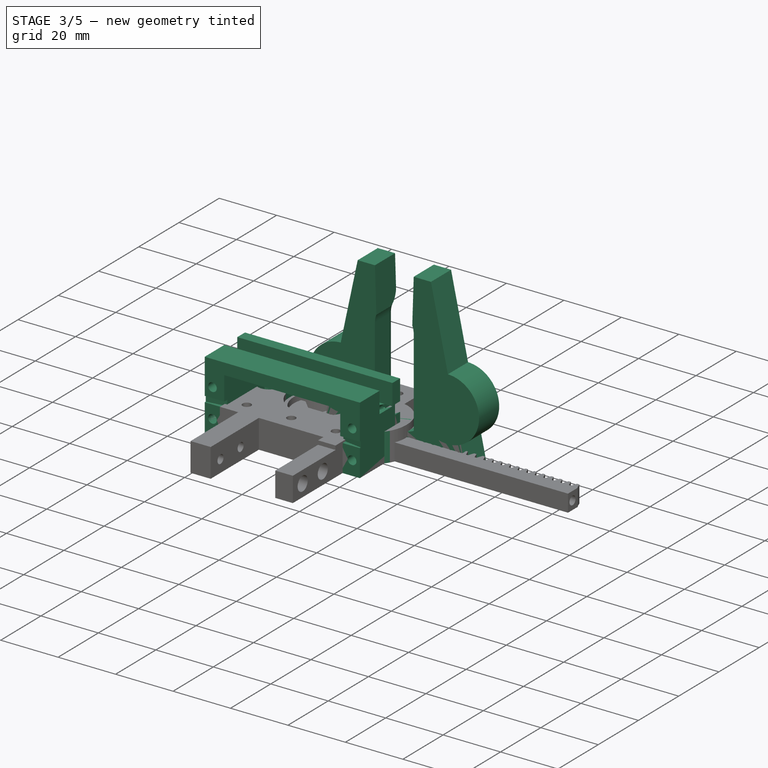
[diagram: stage 3 of 5 — iso view after this stage's code; geometry added in this stage tinted green]
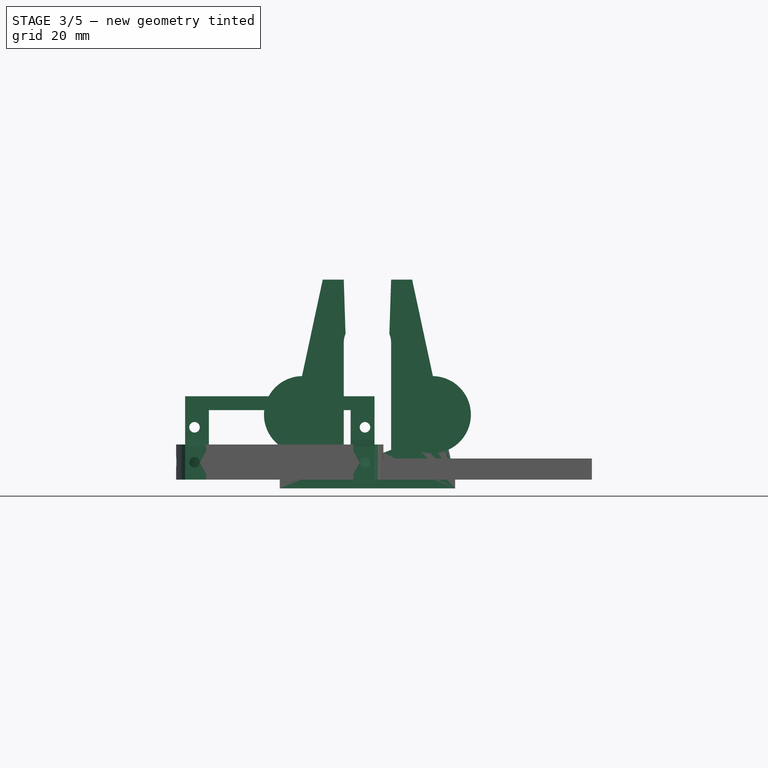
[diagram: stage 3 of 5 — front view after this stage's code; geometry added in this stage tinted green]
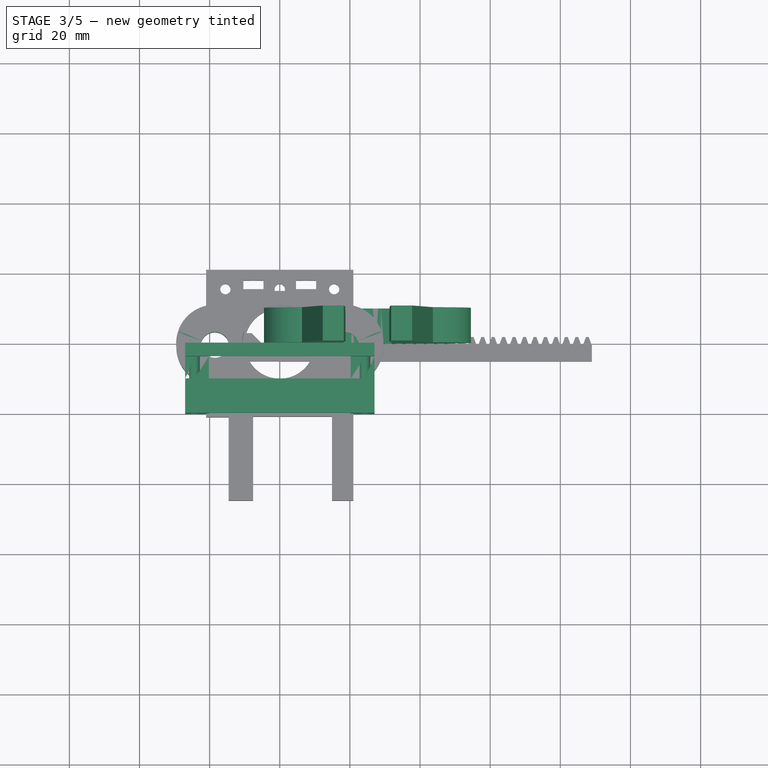
[diagram: stage 3 of 5 — top view after this stage's code; geometry added in this stage tinted green]
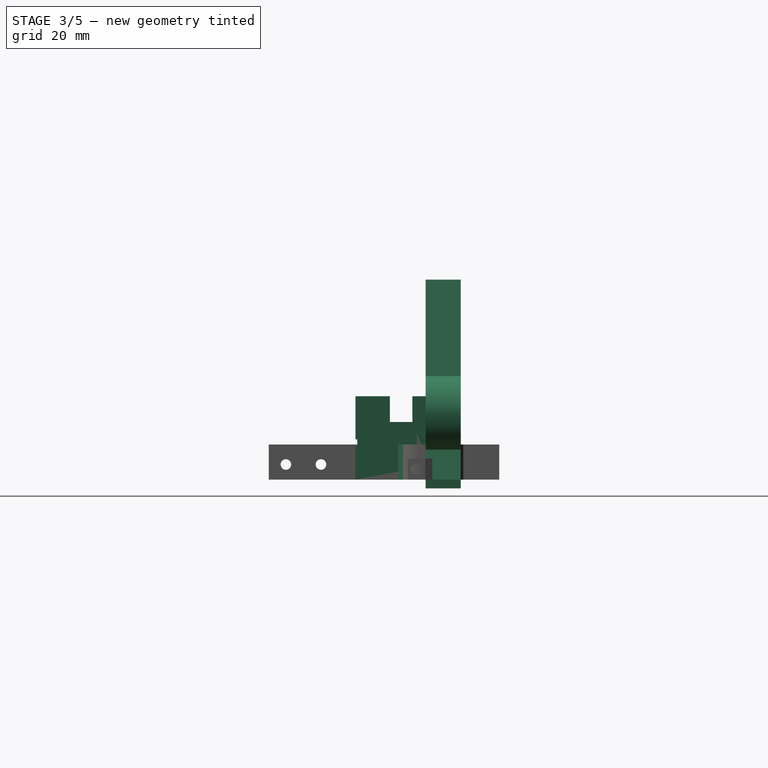
[diagram: stage 3 of 5 — right view after this stage's code; geometry added in this stage tinted green]
FEATURE [Spreadsheet::Sheet] Spreadsheet004  label="adapter_spreadsheet"
  cells = A2=diametro chico; B2==16.8mm; A3=profundidad hendidura para calzar; B3==2mm + B2 / 2; C3=profundidad extra; D3=3; A5=diametro grande; B5==22mm; A6=tol; B6==B5 + 0.5mm; A8=ancho base; B8==50mm; D8=ancho; E8(ancho_gilson)==13.5mm; F8=gilson; A9=alto base; B9(alto_base_gilson_top)==10mm; D9=ancho; E9(extra_pad_gilson_base)==2.5mm; F9=extra pad gilson base; A10=distancia centro-base; B10==18mm; A11=radius; B11(fillet_radius)==3mm; C11=fillet; D11=distancia; E11(distancia_soporte_varilla)==9.699999999999999mm + 1mm + 1mm; F11=soporte bajo y varillas S; A12=separacion; B12(separacion_entre_varillas_S)==37mm; C12=entre varillas S; D13=parameter 1; E13(parameter1)==0.5 * (21.5mm + 0.2mm); A14=diametro; B14(diametro_varillas_S_con_tol)==8mm + B15; C14=varillas_S; D14=parameter2; E14(parameter2)==18mm; A15=tolerancia; B15==0.18mm; D15=parameter3; E15(parameter3)==33.8mm + 0.2mm; A17=ancho; B17==5.73mm; C17=ancho tuercas M3; D17=con tol, del lado plano; A18=alto; B18==2.5mm; C18=alto tuercas M3; D18=con tol; A19=separacion; B19==15mm; C19=tornillos fijacion a base Z; A20=ancho ; B20(ancho_lado_stepper)==42mm; C20=lado stepper; A22=separacion; B22(sep_tornillos_fijacion_base_Z)==15mm; C22=tornillos fijacion a base Z1; D22=debe ser consistente con los agujeros en la base del stepper S y del soporte de la pipeta gilson; A23=separacion; B23(sep_tornillos_fijacion_base_Z_2)==54.8mm; C23=tornillos fijacion a base Z2; D23=debe ser consistente con el soporte de la pipeta gilson; A24=separacion; B24(sep_tornillos_fijacion_base_Z1_Z2)==14.7mm; C24=vertical entre tornillos Z1 y Z2 de fijacion a base
FEATURE [Sketcher::SketchObject] Sketch006
  FullyConstrained = true
  MapMode = 5
  Placement = pos=(0,0,0) rot=(1,0,0;1.5708rad)
  Support = -> [XZ_Plane005]
  expr: Constraints[73] = <<adapter_spreadsheet>>.extra_pad_gilson_base
  expr: Constraints[46] = <<adapter_spreadsheet>>.ancho_gilson
  expr: Constraints[19] = 10 + 40
  expr: Constraints[18] = 13.4 + 0.1
  sketch-geometry (30):
    g0: LineSegment StartX=18.25 StartY=57 StartZ=0 EndX=12.25 EndY=57 EndZ=0
    g1: LineSegment StartX=12.25 StartY=57 StartZ=0 EndX=0 EndY=0 EndZ=0
    g2: LineSegment StartX=0 StartY=0 StartZ=0 EndX=50 EndY=0 EndZ=0
    g3: LineSegment StartX=50 StartY=0 StartZ=0 EndX=37.75 EndY=57 EndZ=0
    g4: LineSegment StartX=37.75 StartY=57 StartZ=0 EndX=31.75 EndY=57 EndZ=0
    g5: LineSegment StartX=0 StartY=0 StartZ=0 EndX=50 EndY=0 EndZ=0
    g6: GeomPoint X=25 Y=0 Z=0
    g7: LineSegment StartX=18.25 StartY=7 StartZ=0 EndX=31.75 EndY=7 EndZ=0
    g8: GeomPoint X=18.25 Y=39 Z=0
    g9: LineSegment StartX=18.25 StartY=7 StartZ=0 EndX=18.25 EndY=39 EndZ=0
    g10: LineSegment StartX=18.25 StartY=57 StartZ=0 EndX=18.25 EndY=39 EndZ=0
    g11: ArcOfCircle CenterX=25 CenterY=39 CenterZ=0 NormalX=0 NormalY=0 NormalZ=1 AngleXU=0 Radius=6.75 StartAngle=2.75428 EndAngle=3.14159
    g12: ArcOfCircle CenterX=25 CenterY=39 CenterZ=0 NormalX=0 NormalY=0 NormalZ=1 AngleXU=0 Radius=6.75 StartAngle=2e-16 EndAngle=0.387317
    g13: LineSegment StartX=18.25 StartY=39 StartZ=0 EndX=31.75 EndY=39 EndZ=0
    g14: LineSegment StartX=18.75 StartY=41.5495 StartZ=0 EndX=18.25 EndY=57 EndZ=0
    g15: LineSegment StartX=31.25 StartY=41.5495 StartZ=0 EndX=31.75 EndY=57 EndZ=0
    g16: LineSegment StartX=31.75 StartY=7 StartZ=0 EndX=31.75 EndY=39 EndZ=0
    g17: LineSegment StartX=31.75 StartY=39 StartZ=0 EndX=31.75 EndY=57 EndZ=0
    g18: LineSegment StartX=18.25 StartY=8.5 StartZ=0 EndX=31.75 EndY=8.5 EndZ=0
    g19: GeomPoint X=25 Y=7 Z=0
    g20: ArcOfCircle CenterX=25 CenterY=22.9375 CenterZ=0 NormalX=0 NormalY=0 NormalZ=1 AngleXU=0 Radius=15.9375 StartAngle=4.27505 EndAngle=5.14973
    g21: LineSegment StartX=18.25 StartY=7 StartZ=0 EndX=31.75 EndY=7 EndZ=0
    g22: GeomPoint X=25 Y=8.5 Z=0
    g23: LineSegment StartX=18.25 StartY=8.5 StartZ=0 EndX=18.25 EndY=7 EndZ=0
    g24: GeomPoint X=25 Y=7 Z=0
    g25: LineSegment StartX=18.25 StartY=39 StartZ=0 EndX=18.25 EndY=8.5 EndZ=0
    g26: LineSegment StartX=31.75 StartY=8.5 StartZ=0 EndX=31.75 EndY=39 EndZ=0
    g27: LineSegment StartX=0 StartY=0 StartZ=0 EndX=0 EndY=-2.5 EndZ=0
    g28: LineSegment StartX=0 StartY=-2.5 StartZ=0 EndX=50 EndY=-2.5 EndZ=0
    g29: LineSegment StartX=50 StartY=-2.5 StartZ=0 EndX=50 EndY=0 EndZ=0
  constraints (74):
    c: DistanceY(g0,g4) = 0
    c: Coincident(g0,g1)
    c: Coincident(g1,g2)
    c: PointOnObject(g2,g-1)
    c: Coincident(g2,g3)
    c: Coincident(g3,g4)
    c: Horizontal(g4)
    c: Horizontal(g0)
    c: Equal(g0,g4)
    c: DistanceX(g4,g4) = 6
    c: Coincident(g5,g-1)
    c: DistanceX(g5,g5) = 50
    c: Symmetric(g-1,g5,g6)
    c: Symmetric(g1,g2,g6)
    c: Coincident(g1,g-1)
    c: Equal(g1,g3)
    c: Horizontal(g7)
    c: DistanceY(g2,g7) = 7
    c: DistanceX(g7,g7) = 13.5
    c: DistanceY(g7,g4) = 50
    c: DistanceY(g7,g8) = 32
    c: Coincident(g9,g7)
    c: Coincident(g9,g8)
    c: Vertical(g9)
    c: Coincident(g10,g0)
    c: Coincident(g10,g8)
    c: Vertical(g10)
    c: Coincident(g11,g8)
    c: DistanceX(g8,g11) = 0.5
    c: Coincident(g12,g11)
    c: DistanceX(g12,g12) = 0.5
    c: Symmetric(g8,g12,g11)
    c: Coincident(g13,g8)
    c: Horizontal(g13)
    c: Coincident(g12,g13)
    c: Coincident(g14,g11)
    c: Coincident(g14,g0)
    c: Coincident(g15,g12)
    c: Coincident(g15,g4)
    c: Coincident(g16,g7)
    c: Coincident(g16,g12)
    c: Vertical(g16)
    c: Coincident(g17,g12)
    c: Coincident(g17,g4)
    c: Vertical(g17)
    c: Horizontal(g18)
    c: DistanceX(g18,g18) = 13.5
    c: Symmetric(g7,g7,g19)
    c: Coincident(g20,g18)
    c: Coincident(g20,g18)
    c: Horizontal(g21)
    c: Equal(g21,g18)
    c: Tangent(g21,g20)
    c: Symmetric(g20,g20,g22)
    c: DistanceY(g21,g20) = 1.5
    c: Coincident(g23,g20)
    c: Coincident(g23,g21)
    c: Vertical(g23)
    c: PointOnObject(g24,g21)
    c: PointOnObject(g24,g20)
    c: Coincident(g24,g19)
    c: Coincident(g25,g8)
    c: Coincident(g25,g20)
    c: Coincident(g26,g20)
    c: Coincident(g26,g12)
    c: Coincident(g1,g27)
    c: Vertical(g27)
    c: Coincident(g27,g28)
    c: Horizontal(g28)
    c: Coincident(g28,g29)
    c: Coincident(g29,g3)
    c: Vertical(g29)
    c: DistanceY(g27,g0) = 59.5
    c: DistanceY(g29,g29) = 2.5
FEATURE [PartDesign::Pad] Pad006  label="gilson_base_pad"
  AllowMultiFace = false
  Direction = (1,1,1)
  Length = 10
  Length2 = 100
  Placement = pos=(0,0,0) rot=(1,0,0;1.5708rad)
  Profile = -> Sketch006
  Reversed = true
  Type = 0
  expr: Length = <<adapter_spreadsheet>>.alto_base_gilson_top
FEATURE [PartDesign::Fillet] Fillet001  label="gilson_base_fillet"
  Base = -> Pad006 [Edge34,Edge40,Edge42,Edge31]
  BaseFeature = -> Pad006
  Placement = pos=(0,0,0) rot=(1,0,0;1.5708rad)
  Radius = 3
  SupportTransform = false
  expr: Radius = <<adapter_spreadsheet>>.B11
FEATURE [Sketcher::SketchObject] Sketch021  label="varillas_S_pad_sketch"
  ExternalGeometry = -> [Sketch006]
  FullyConstrained = true
  MapMode = 5
  Placement = pos=(0,0,0) rot=(1,0,0;1.5708rad)
  Support = -> [XZ_Plane005]
  expr: Constraints[22] = <<adapter_spreadsheet>>.fillet_radius * 2 + <<adapter_spreadsheet>>.ancho_gilson
  expr: Constraints[21] = <<adapter_spreadsheet>>.separacion_entre_varillas_S
  expr: Constraints[3] = <<adapter_spreadsheet>>.ancho_lado_stepper / 2
  expr: Constraints[0] = <<adapter_spreadsheet>>.diametro_varillas_S_con_tol
  sketch-geometry (9):
    g0: Circle CenterX=43.5 CenterY=18.5 CenterZ=0 NormalX=0 NormalY=0 NormalZ=1 AngleXU=0 Radius=4.09
    g1: Circle CenterX=6.5 CenterY=18.5 CenterZ=0 NormalX=0 NormalY=0 NormalZ=1 AngleXU=0 Radius=4.09
    g2: LineSegment StartX=25 StartY=-2.5 StartZ=0 EndX=25 EndY=18.5 EndZ=0
    g3: ArcOfCircle CenterX=6.5 CenterY=18.5 CenterZ=0 NormalX=0 NormalY=0 NormalZ=1 AngleXU=0 Radius=11 StartAngle=0.651039 EndAngle=5.63215
    g4: ArcOfCircle CenterX=43.5 CenterY=18.5 CenterZ=0 NormalX=0 NormalY=0 NormalZ=1 AngleXU=0 Radius=11 StartAngle=3.79263 EndAngle=8.77374
    g5: LineSegment StartX=15.25 StartY=25.1661 StartZ=0 EndX=34.75 EndY=25.1661 EndZ=0
    g6: LineSegment StartX=34.75 StartY=11.8339 StartZ=0 EndX=15.25 EndY=11.8339 EndZ=0
    g7: LineSegment StartX=15.25 StartY=25.1661 StartZ=0 EndX=15.25 EndY=11.8339 EndZ=0
    g8: LineSegment StartX=34.75 StartY=25.1661 StartZ=0 EndX=34.75 EndY=11.8339 EndZ=0
  constraints (24):
    c: Diameter(g0) = 8.18
    c: Equal(g0,g1) = 8.18
    c: Vertical(g2)
    c: DistanceY(g2,g2) = 21
    c: Coincident(g3,g1)
    c: Coincident(g4,g0)
    c: Coincident(g5,g3)
    c: Coincident(g5,g4)
    c: Horizontal(g5)
    c: Coincident(g6,g4)
    c: Coincident(g6,g3)
    c: Horizontal(g6)
    c: Symmetric(g1,g0,g2)
    c: Coincident(g7,g3)
    c: Coincident(g7,g3)
    c: Vertical(g7)
    c: Coincident(g8,g4)
    c: Coincident(g8,g4)
    c: Vertical(g8)
    c: Equal(g3,g4)
    c: Diameter(g4) = 22
    c: DistanceX(g1,g0) = 37
    c: DistanceX(g5,g5) = 19.5
    c: Symmetric(g-3,g-3,g2)
FEATURE [PartDesign::Pad] Pad013  label="varillas_S_gilson_pad"
  BaseFeature = -> Fillet001
  Direction = (1,1,1)
  Length = 10
  Length2 = 100
  Placement = pos=(0,0,0) rot=(1,0,0;1.5708rad)
  Profile = -> Sketch021
  Reversed = true
  Type = 0
  expr: Length = <<adapter_spreadsheet>>.alto_base_gilson_top
FEATURE [Sketcher::SketchObject] Sketch024  label="base_attachment_pad_sketch"
  AttachmentOffset = pos=(0,0,-2.5) rot=(0,0,1;0rad)
  ExternalGeometry = -> [Sketch006,Sketch023]
  FullyConstrained = true
  MapMode = 5
  Placement = pos=(0,0,-2.5) rot=(0,0,1;0rad)
  Support = -> [XY_Plane005]
  expr: Constraints[38] = <<adapter_spreadsheet>>.sep_tornillos_fijacion_base_Z1_Z2
  expr: Constraints[36] = <<adapter_spreadsheet>>.sep_tornillos_fijacion_base_Z_2
  sketch-geometry (14):
    g0: LineSegment StartX=57 StartY=6e-16 StartZ=0 EndX=57 EndY=24 EndZ=0
    g1: LineSegment StartX=57 StartY=24 StartZ=0 EndX=-7 EndY=24 EndZ=0
    g2: LineSegment StartX=-7 StartY=24 StartZ=0 EndX=-7 EndY=0 EndZ=0
    g3: LineSegment StartX=-7 StartY=0 StartZ=0 EndX=0 EndY=0 EndZ=0
    g4: LineSegment StartX=50 StartY=6e-16 StartZ=0 EndX=57 EndY=6e-16 EndZ=0
    g5: LineSegment StartX=0 StartY=0 StartZ=0 EndX=13 EndY=0 EndZ=0
    g6: LineSegment StartX=50 StartY=6e-16 StartZ=0 EndX=37 EndY=6e-16 EndZ=0
    g7: LineSegment StartX=13 StartY=24 StartZ=0 EndX=13 EndY=0 EndZ=0
    g8: LineSegment StartX=37 StartY=6e-16 StartZ=0 EndX=37 EndY=24 EndZ=0
    g9: LineSegment StartX=37 StartY=24 StartZ=0 EndX=57 EndY=24 EndZ=0
    g10: LineSegment StartX=-7 StartY=24 StartZ=0 EndX=13 EndY=24 EndZ=0
    g11: Circle CenterX=-2.4 CenterY=19.7 CenterZ=0 NormalX=0 NormalY=0 NormalZ=1 AngleXU=0 Radius=1.5
    g12: Circle CenterX=52.4 CenterY=19.7 CenterZ=0 NormalX=0 NormalY=0 NormalZ=1 AngleXU=0 Radius=1.5
    g13: LineSegment StartX=25 StartY=6e-16 StartZ=0 EndX=25 EndY=24 EndZ=0
  constraints (39):
    c: Coincident(g0,g1)
    c: Coincident(g1,g2)
    c: Horizontal(g1)
    c: Vertical(g0)
    c: Vertical(g2)
    c: PointOnObject(g2,g-1)
    c: Coincident(g3,g2)
    c: Coincident(g3,g-1)
    c: Coincident(g4,g-3)
    c: Coincident(g4,g0)
    c: Horizontal(g4)
    c: Equal(g4,g3)
    c: DistanceY(g0,g0) = 24
    c: DistanceX(g1,g1) = 64
    c: Coincident(g5,g-1)
    c: PointOnObject(g5,g-3)
    c: Coincident(g6,g4)
    c: PointOnObject(g6,g-3)
    c: PointOnObject(g7,g1)
    c: Coincident(g7,g5)
    c: Vertical(g7)
    c: Coincident(g8,g6)
    c: PointOnObject(g8,g1)
    c: Vertical(g8)
    c: Coincident(g9,g8)
    c: Coincident(g9,g0)
    c: Coincident(g10,g2)
    c: Coincident(g10,g7)
    c: DistanceX(g10,g10) = 20
    c: Equal(g10,g9)
    c: Equal(g11,g12)
    c: PointOnObject(g13,g1)
    c: Vertical(g13)
    c: Symmetric(g5,g6,g13)
    c: Symmetric(g11,g12,g13)
    c: Diameter(g12) = 3
    c: DistanceX(g11,g12) = 54.8
    c: DistanceY(g12,g0) = 4.3
    c: DistanceY(g-5,g12) = 14.7
FEATURE [Sketcher::SketchObject] Sketch025  label="gilson_fastener_sketch_01"
  FullyConstrained = false
  MapMode = 5
  Support = -> [XY_Plane007]
  expr: Constraints[14] = <<adapter_spreadsheet>>.parameter2
  expr: Constraints[44] = <<adapter_spreadsheet>>.separacion_entre_varillas_S
  expr: Constraints[26] = <<adapter_spreadsheet>>.parameter1
  expr: Constraints[7] = <<adapter_spreadsheet>>.parameter3
  expr: Constraints[13] = <<adapter_spreadsheet>>.parameter1
  expr: Constraints[11] = 21.5mm + 0.2mm
  expr: Constraints[43] = <<adapter_spreadsheet>>.diametro_varillas_S_con_tol
  expr: Constraints[61] = <<adapter_spreadsheet>>.B18
  expr: Constraints[60] = <<adapter_spreadsheet>>.B17
  expr: Constraints[45] = <<adapter_spreadsheet>>.distancia_soporte_varilla
  sketch-geometry (42):
    g0: ArcOfCircle CenterX=7e-16 CenterY=-1.3e-15 CenterZ=0 NormalX=0 NormalY=0 NormalZ=1 AngleXU=0 Radius=10.85 StartAngle=0 EndAngle=3.14159
    g1: ArcOfCircle CenterX=21.8919 CenterY=-1.3e-15 CenterZ=0 NormalX=0 NormalY=0 NormalZ=1 AngleXU=0 Radius=32.7419 StartAngle=3.14159 EndAngle=3.47936
    g2: ArcOfCircle CenterX=-21.8919 CenterY=-1.3e-15 CenterZ=0 NormalX=0 NormalY=0 NormalZ=1 AngleXU=0 Radius=32.7419 StartAngle=5.94542 EndAngle=6.28319
    g3: LineSegment StartX=7e-16 StartY=10.85 StartZ=0 EndX=7e-16 EndY=-23.15 EndZ=0
    g4: LineSegment StartX=-10.85 StartY=-1.3e-15 StartZ=0 EndX=10.85 EndY=-1.3e-15 EndZ=0
    g5: LineSegment StartX=-9 StartY=-10.85 StartZ=0 EndX=9 EndY=-10.85 EndZ=0
    g6: ArcOfParabola CenterX=7e-16 CenterY=-23.15 CenterZ=0 NormalX=0 NormalY=0 NormalZ=1 Focal=1.64634 AngleXU=1.5708 StartAngle=-9 EndAngle=9
    g7: GeomPoint X=7e-16 Y=-21.5037 Z=0
    g8: LineSegment StartX=7e-16 StartY=-23.15 StartZ=0 EndX=7e-16 EndY=-21.5037 EndZ=0
    g9: GeomPoint X=0 Y=-10.85 Z=0
    g10: Circle CenterX=18.5 CenterY=-0.85 CenterZ=0 NormalX=0 NormalY=0 NormalZ=1 AngleXU=0 Radius=4.09
    g11: Circle CenterX=-18.5 CenterY=-0.85 CenterZ=0 NormalX=0 NormalY=0 NormalZ=1 AngleXU=0 Radius=4.09
    g12: ArcOfCircle CenterX=7e-16 CenterY=-1.3e-15 CenterZ=0 NormalX=0 NormalY=0 NormalZ=1 AngleXU=0 Radius=15 StartAngle=0.590037 EndAngle=2.55156
    g13: ArcOfCircle CenterX=7e-16 CenterY=-1.3e-15 CenterZ=0 NormalX=0 NormalY=0 NormalZ=1 AngleXU=0 Radius=14.0969 StartAngle=3.82141 EndAngle=4.01992
    g14: ArcOfCircle CenterX=7e-16 CenterY=-1.3e-15 CenterZ=0 NormalX=0 NormalY=0 NormalZ=1 AngleXU=0 Radius=14.0969 StartAngle=5.40486 EndAngle=5.60337
    g15: ArcOfCircle CenterX=-18.5 CenterY=-0.85 CenterZ=0 NormalX=0 NormalY=0 NormalZ=1 AngleXU=0 Radius=11 StartAngle=0.989933 EndAngle=5.46725
    g16: ArcOfCircle CenterX=18.5 CenterY=-0.85 CenterZ=0 NormalX=0 NormalY=0 NormalZ=1 AngleXU=0 Radius=11 StartAngle=3.95753 EndAngle=8.43484
    g17: LineSegment StartX=-21.365 StartY=-6.56327 StartZ=0 EndX=-15.635 EndY=-6.56327 EndZ=0
    g18: LineSegment StartX=-15.635 StartY=-6.56327 StartZ=0 EndX=-15.635 EndY=-9.06327 EndZ=0
    g19: LineSegment StartX=-15.635 StartY=-9.06327 StartZ=0 EndX=-21.365 EndY=-9.06327 EndZ=0
    g20: LineSegment StartX=-21.365 StartY=-9.06327 StartZ=0 EndX=-21.365 EndY=-6.56327 EndZ=0
    g21: LineSegment StartX=-21.365 StartY=-6.56327 StartZ=0 EndX=-15.635 EndY=-9.06327 EndZ=0
    g22: LineSegment StartX=-15.635 StartY=-6.56327 StartZ=0 EndX=-21.365 EndY=-9.06327 EndZ=0
    g23: GeomPoint X=-18.5 Y=-7.81327 Z=0
    g24: LineSegment StartX=15.635 StartY=-6.56327 StartZ=0 EndX=21.365 EndY=-6.56327 EndZ=0
    g25: LineSegment StartX=21.365 StartY=-6.56327 StartZ=0 EndX=21.365 EndY=-9.06327 EndZ=0
    g26: LineSegment StartX=21.365 StartY=-9.06327 StartZ=0 EndX=15.635 EndY=-9.06327 EndZ=0
    g27: LineSegment StartX=15.635 StartY=-9.06327 StartZ=0 EndX=15.635 EndY=-6.56327 EndZ=0
    g28: LineSegment StartX=15.635 StartY=-6.56327 StartZ=0 EndX=21.365 EndY=-9.06327 EndZ=0
    g29: LineSegment StartX=21.365 StartY=-6.56327 StartZ=0 EndX=15.635 EndY=-9.06327 EndZ=0
    g30: GeomPoint X=18.5 Y=-7.81327 Z=0
    g31: Circle CenterX=21.365 CenterY=-6.56327 CenterZ=0 NormalX=0 NormalY=0 NormalZ=1 AngleXU=0 Radius=2.30138
    g32: Circle CenterX=21.365 CenterY=-9.06327 CenterZ=0 NormalX=0 NormalY=0 NormalZ=1 AngleXU=0 Radius=2.30138
    g33-g37: Circle x5 (B-spline internal-alignment scaffolding for g38; pole/knot coordinates omitted)
    g38: BSplineCurve PolesCount=5 KnotsCount=3 Degree=3 IsPeriodic=0
    g39: GeomPoint X=-10.85 Y=0 Z=0
    g40: GeomPoint X=6e-16 Y=10.85 Z=0
    g41: GeomPoint X=10.85 Y=-1.3e-15 Z=0
  constraints (97):
    c: Coincident(g1,g0)
    c: Symmetric(g0,g0,g-2)
    c: Symmetric(g2,g1,g-2)
    c: Tangent(g2,g0) = -1.5708
    c: PointOnObject(g3,g0)
    c: Vertical(g3)
    c: Perpendicular(g0,g3)
    c: DistanceY(g3,g3) = 34
    c: PointOnObject(g4,g1)
    c: Horizontal(g4)
    c: Perpendicular(g1,g4)
    c: DistanceX(g4,g4) = 21.7
    c: Coincident(g4,g0)
    c: DistanceY(g3) = 10.85
    c: DistanceX(g1,g2) = 18
    c: Coincident(g5,g1)
    c: Coincident(g5,g2)
    c: Horizontal(g5)
    c: InternalAlignment(g7,g6)
    c: Coincident(g7,g8)
    c: Coincident(g6,g8)
    c: Coincident(g6,g2)
    c: Coincident(g6,g1)
    c: Coincident(g6,g3)
    c: PointOnObject(g9,g-2)
    c: PointOnObject(g9,g5)
    c: DistanceY(g9,g0) = 10.85
    c: Symmetric(g11,g10,g-2)
    c: Equal(g10,g11)
    c: Coincident(g12,g0)
    c: Coincident(g13,g0)
    c: Coincident(g14,g0)
    c: Diameter(g12) = 30
    c: Coincident(g15,g11)
    c: Coincident(g15,g12)
    c: Coincident(g15,g13)
    c: Coincident(g16,g10)
    c: Coincident(g16,g12)
    c: Coincident(g16,g14)
    c: Equal(g16,g15)
    c: Diameter(g16) = 22
    c: Coincident(g13,g1)
    c: Coincident(g14,g2)
    c: Diameter(g11) = 8.18
    c: DistanceX(g11,g10) = 37
    c: DistanceY(g11,g3) = 11.7
    c: Coincident(g17,g18)
    c: Coincident(g18,g19)
    c: Coincident(g19,g20)
    c: Coincident(g20,g17)
    c: Horizontal(g17)
    c: Horizontal(g19)
    c: Vertical(g18)
    c: Vertical(g20)
    c: Coincident(g21,g17)
    c: Coincident(g21,g18)
    c: Coincident(g22,g17)
    c: Coincident(g22,g19)
    c: PointOnObject(g23,g22)
    c: PointOnObject(g23,g21)
    c: DistanceX(g17,g17) = 5.73
    c: DistanceY(g18,g18) = 2.5
    c: Coincident(g24,g25)
    c: Coincident(g25,g26)
    c: Coincident(g26,g27)
    c: Coincident(g27,g24)
    c: Horizontal(g24)
    c: Horizontal(g26)
    c: Vertical(g25)
    c: Vertical(g27)
    c: Coincident(g28,g24)
    c: Coincident(g28,g25)
    c: Coincident(g29,g24)
    c: Coincident(g29,g26)
    c: PointOnObject(g30,g29)
    c: PointOnObject(g30,g28)
    c: Equal(g17,g24) = 5.73
    c: Equal(g18,g25) = 2.5
    c: Symmetric(g23,g30,g-2)
    c: Coincident(g31,g24)
    c: Tangent(g31,g10)
    c: Coincident(g32,g25)
    c: Tangent(g32,g16)
    c: Equal(g32,g31)
    c: Vertical(g30,g10)
    c: Weight(g33) = 1
    c: PointOnObject(g35,g-2)
    c: Equal(g33,g37)
    c: InternalAlignment(g33-g37 -> g38) x5
    c: InternalAlignment(g39,g38)
    c: InternalAlignment(g40,g38)
    c: InternalAlignment(g41,g38)
    c: Coincident(g38,g0)
    c: Coincident(g38,g0)
    c: Equal(g36,g34)
    c: Symmetric(g34,g36,g3)
    c: DistanceY(g0,g40) = 10.85
FEATURE [PartDesign::Pad] Pad016  label="gilson_fastener_pad_1"
  Direction = (1,1,1)
  Length = 10
  Length2 = 100
  Profile = -> Sketch025
  Type = 0
FEATURE [PartDesign::Body] Body005  label="base_gilson_top"
  Group = -> [Sketch006,Pad006,Fillet001,Sketch021,Pad013,Sketch022,Pocket013,Sketch023,Pocket014,Sketch024,Sketch043,Pad019,Pocket026,DatumPlane005,DatumPlane006,Sketch047,Pocket029,Sketch048,Pocket030]
  Origin = -> Origin005
  Placement = pos=(25,19.5,-4e-15) rot=(0,0.707107,-0.707107;3.14159rad)
  Tip = -> Pocket030
FEATURE [Sketcher::SketchObject] Sketch049
  ExternalGeometry = -> [Sketch025]
  FullyConstrained = true
  MapMode = 5
  Placement = pos=(0,0,0) rot=(1,0,0;1.5708rad)
  Support = -> [XZ_Plane007]
  sketch-geometry (3):
    g0: Circle CenterX=-18.5 CenterY=5 CenterZ=0 NormalX=0 NormalY=0 NormalZ=1 AngleXU=0 Radius=1.5
    g1: Circle CenterX=18.5 CenterY=5 CenterZ=0 NormalX=0 NormalY=0 NormalZ=1 AngleXU=0 Radius=1.5
    g2: LineSegment StartX=-18.5 StartY=1e-15 StartZ=0 EndX=-18.5 EndY=5 EndZ=0
  constraints (7):
    c: Equal(g1,g0)
    c: Coincident(g2,g0)
    c: Vertical(g2)
    c: DistanceY(g2,g2) = 5
    c: Symmetric(g1,g0,g-2)
    c: Symmetric(g-3,g-3,g2)
    c: Diameter(g0) = 3
FEATURE [PartDesign::Pocket] Pocket031
  BaseFeature = -> Pad016
  Length = 5
  Length2 = 100
  Profile = -> Sketch049
  Reversed = true
  Type = 1
FEATURE [PartDesign::Body] Body007  label="gilson_mid_fastener_1"
  Group = -> [Sketch025,Pad016,Sketch049,Pocket031]
  Origin = -> Origin007
  Placement = pos=(0,0,-50) rot=(0,0,1;0rad)
  Tip = -> Pocket031
FEATURE [Sketcher::SketchObject] Sketch050  label="base_sketch"
  FullyConstrained = true
  MapMode = 5
  Placement = pos=(0,0,0) rot=(1,0,0;1.5708rad)
  Support = -> [XZ_Plane009]
  expr: Constraints[18] = <<servo_sheet>>.B1
  expr: Constraints[27] = <<servo_sheet>>.B2
  expr: Constraints[39] = <<servo_sheet>>.B4
  sketch-geometry (21):
    g0: LineSegment StartX=-27 StartY=25 StartZ=0 EndX=27 EndY=25 EndZ=0
    g1: LineSegment StartX=27 StartY=25 StartZ=0 EndX=27 EndY=0 EndZ=0
    g2: LineSegment StartX=-27 StartY=-2e-16 StartZ=0 EndX=-27 EndY=25 EndZ=0
    g3: LineSegment StartX=-27 StartY=-2e-16 StartZ=0 EndX=-20 EndY=-2e-16 EndZ=0
    g4: LineSegment StartX=-20 StartY=-2e-16 StartZ=0 EndX=-20 EndY=19.8 EndZ=0
    g5: LineSegment StartX=-20 StartY=19.8 StartZ=0 EndX=20 EndY=19.8 EndZ=0
    g6: LineSegment StartX=20 StartY=19.8 StartZ=0 EndX=20 EndY=0 EndZ=0
    g7: LineSegment StartX=20 StartY=0 StartZ=0 EndX=27 EndY=0 EndZ=0
    g8: Circle CenterX=24.3 CenterY=14.9 CenterZ=0 NormalX=0 NormalY=0 NormalZ=1 AngleXU=0 Radius=1.5
    g9: Circle CenterX=24.3 CenterY=4.9 CenterZ=0 NormalX=0 NormalY=0 NormalZ=1 AngleXU=0 Radius=1.5
    g10: Circle CenterX=-24.3 CenterY=14.9 CenterZ=0 NormalX=0 NormalY=0 NormalZ=1 AngleXU=0 Radius=1.5
    g11: Circle CenterX=-24.3 CenterY=4.9 CenterZ=0 NormalX=0 NormalY=0 NormalZ=1 AngleXU=0 Radius=1.5
    g12: Circle CenterX=-10.1 CenterY=9.9 CenterZ=0 NormalX=0 NormalY=0 NormalZ=1 AngleXU=0 Radius=9.9
    g13: LineSegment StartX=20 StartY=9.9 StartZ=0 EndX=24.3 EndY=9.9 EndZ=0
    g14: Circle CenterX=-24.3 CenterY=14.9 CenterZ=0 NormalX=0 NormalY=0 NormalZ=1 AngleXU=0 Radius=2.1
    g15: LineSegment StartX=-20 StartY=19.8 StartZ=0 EndX=-20.2 EndY=19.8 EndZ=0
    g16: LineSegment StartX=-20.2 StartY=19.8 StartZ=0 EndX=-20.2 EndY=0 EndZ=0
    g17: LineSegment StartX=-20.2 StartY=0 StartZ=0 EndX=-27 EndY=-2e-16 EndZ=0
    g18: LineSegment StartX=20 StartY=19.8 StartZ=0 EndX=20.2 EndY=19.8 EndZ=0
    g19: LineSegment StartX=20.2 StartY=19.8 StartZ=0 EndX=20.2 EndY=0 EndZ=0
    g20: LineSegment StartX=20.2 StartY=0 StartZ=0 EndX=27 EndY=0 EndZ=0
  constraints (57):
    c: Coincident(g0,g1)
    c: Coincident(g2,g0)
    c: Vertical(g1)
    c: Vertical(g2)
    c: Coincident(g2,g3)
    c: Horizontal(g3)
    c: Coincident(g3,g4)
    c: Vertical(g4)
    c: Coincident(g4,g5)
    c: Horizontal(g5)
    c: Coincident(g5,g6)
    c: Vertical(g6)
    c: Coincident(g6,g7)
    c: Coincident(g7,g1)
    c: Horizontal(g7)
    c: Equal(g1,g2)
    c: DistanceX(g3,g6) = 40
    c: Equal(g7,g3)
    c: DistanceY(g9,g8) = 10
    c: Equal(g8,g9)
    c: Equal(g10,g11)
    c: Diameter(g10) = 3
    c: PointOnObject(g6,g-1)
    c: Symmetric(g0,g0,g-2)
    c: Horizontal(g10,g8)
    c: Equal(g8,g10)
    c: Vertical(g11,g10)
    c: DistanceX(g10,g8) = 48.6
    c: Symmetric(g11,g9,g-2)
    c: DistanceX(g0,g0) = 54
    c: Vertical(g9,g8)
    c: DistanceY(g6,g6) = 19.8
    c: Tangent(g12,g5)
    c: Tangent(g12,g-1)
    c: Tangent(g12,g4)
    c: Horizontal(g13)
    c: Symmetric(g5,g6,g13)
    c: Symmetric(g8,g9,g13)
    c: Coincident(g14,g10)
    c: Diameter(g14) = 4.2
    c: DistanceY(g1,g0) = 25
    c: Coincident(g15,g5)
    c: Horizontal(g15)
    c: Coincident(g16,g15)
    c: PointOnObject(g16,g3)
    c: Vertical(g16)
    c: Coincident(g17,g16)
    c: Coincident(g17,g2)
    c: Coincident(g18,g5)
    c: Horizontal(g18)
    c: Coincident(g19,g18)
    c: PointOnObject(g19,g7)
    c: Vertical(g19)
    c: Coincident(g20,g19)
    c: Coincident(g20,g1)
    c: Equal(g15,g18)
    c: DistanceX(g6,g19) = 0.2
FEATURE [Sketcher::SketchObject] Sketch051  label="nut_holes"
  ExternalGeometry = -> [Sketch050]
  FullyConstrained = true
  MapMode = 5
  Placement = pos=(0,0,0) rot=(1,0,0;1.5708rad)
  Support = -> [XZ_Plane009]
  sketch-geometry (28):
    g0: LineSegment StartX=-27.1 StartY=16.5166 StartZ=0 EndX=-27.1 EndY=13.2834 EndZ=0
    g1: LineSegment StartX=-27.1 StartY=13.2834 StartZ=0 EndX=-24.3 EndY=11.6668 EndZ=0
    g2: LineSegment StartX=-24.3 StartY=11.6668 StartZ=0 EndX=-21.5 EndY=13.2834 EndZ=0
    g3: LineSegment StartX=-21.5 StartY=13.2834 StartZ=0 EndX=-21.5 EndY=16.5166 EndZ=0
    g4: LineSegment StartX=-21.5 StartY=16.5166 StartZ=0 EndX=-24.3 EndY=18.1332 EndZ=0
    g5: LineSegment StartX=-24.3 StartY=18.1332 StartZ=0 EndX=-27.1 EndY=16.5166 EndZ=0
    g6: Circle CenterX=-24.3 CenterY=14.9 CenterZ=0 NormalX=0 NormalY=0 NormalZ=1 AngleXU=0 Radius=3.23316
    g7: LineSegment StartX=-27.1 StartY=6.51658 StartZ=0 EndX=-27.1 EndY=3.28342 EndZ=0
    g8: LineSegment StartX=-27.1 StartY=3.28342 StartZ=0 EndX=-24.3 EndY=1.66684 EndZ=0
    g9: LineSegment StartX=-24.3 StartY=1.66684 StartZ=0 EndX=-21.5 EndY=3.28342 EndZ=0
    g10: LineSegment StartX=-21.5 StartY=3.28342 StartZ=0 EndX=-21.5 EndY=6.51658 EndZ=0
    g11: LineSegment StartX=-21.5 StartY=6.51658 StartZ=0 EndX=-24.3 EndY=8.13316 EndZ=0
    g12: LineSegment StartX=-24.3 StartY=8.13316 StartZ=0 EndX=-27.1 EndY=6.51658 EndZ=0
    g13: Circle CenterX=-24.3 CenterY=4.9 CenterZ=0 NormalX=0 NormalY=0 NormalZ=1 AngleXU=0 Radius=3.23316
    g14: LineSegment StartX=21.5 StartY=16.5166 StartZ=0 EndX=21.5 EndY=13.2834 EndZ=0
    g15: LineSegment StartX=21.5 StartY=13.2834 StartZ=0 EndX=24.3 EndY=11.6668 EndZ=0
    g16: LineSegment StartX=24.3 StartY=11.6668 StartZ=0 EndX=27.1 EndY=13.2834 EndZ=0
    g17: LineSegment StartX=27.1 StartY=13.2834 StartZ=0 EndX=27.1 EndY=16.5166 EndZ=0
    g18: LineSegment StartX=27.1 StartY=16.5166 StartZ=0 EndX=24.3 EndY=18.1332 EndZ=0
    g19: LineSegment StartX=24.3 StartY=18.1332 StartZ=0 EndX=21.5 EndY=16.5166 EndZ=0
    g20: Circle CenterX=24.3 CenterY=14.9 CenterZ=0 NormalX=0 NormalY=0 NormalZ=1 AngleXU=0 Radius=3.23316
    g21: LineSegment StartX=21.5 StartY=6.51658 StartZ=0 EndX=21.5 EndY=3.28342 EndZ=0
    g22: LineSegment StartX=21.5 StartY=3.28342 StartZ=0 EndX=24.3 EndY=1.66684 EndZ=0
    g23: LineSegment StartX=24.3 StartY=1.66684 StartZ=0 EndX=27.1 EndY=3.28342 EndZ=0
    g24: LineSegment StartX=27.1 StartY=3.28342 StartZ=0 EndX=27.1 EndY=6.51658 EndZ=0
    g25: LineSegment StartX=27.1 StartY=6.51658 StartZ=0 EndX=24.3 EndY=8.13316 EndZ=0
    g26: LineSegment StartX=24.3 StartY=8.13316 StartZ=0 EndX=21.5 EndY=6.51658 EndZ=0
    g27: Circle CenterX=24.3 CenterY=4.9 CenterZ=0 NormalX=0 NormalY=0 NormalZ=1 AngleXU=0 Radius=3.23316
  constraints (64):
    c: Coincident(g0,g1)
    c: Coincident(g1,g2)
    c: Coincident(g2,g3)
    c: Coincident(g3,g4)
    c: Coincident(g4,g5)
    c: Coincident(g5,g0)
    c: Equal(g0, g1-g5) x5
    c: PointOnObject(g0,g6)
    c: PointOnObject(g1,g6)
    c: PointOnObject(g2,g6)
    c: PointOnObject(g3,g6)
    c: PointOnObject(g4,g6)
    c: PointOnObject(g5,g6)
    c: Vertical(g3)
    c: DistanceX(g0,g2) = 5.6
    c: Coincident(g7,g8)
    c: Coincident(g8,g9)
    c: Coincident(g9,g10)
    c: Coincident(g10,g11)
    c: Coincident(g11,g12)
    c: Coincident(g12,g7)
    c: Equal(g7, g8-g12) x5
    c: PointOnObject(g7,g13)
    c: PointOnObject(g8,g13)
    c: PointOnObject(g9,g13)
    c: PointOnObject(g10,g13)
    c: PointOnObject(g11,g13)
    c: PointOnObject(g12,g13)
    c: Vertical(g10)
    c: DistanceX(g7,g9) = 5.6
    c: Coincident(g14,g15)
    c: Coincident(g15,g16)
    c: Coincident(g16,g17)
    c: Coincident(g17,g18)
    c: Coincident(g18,g19)
    c: Coincident(g19,g14)
    c: Equal(g14, g15-g19) x5
    c: PointOnObject(g14,g20)
    c: PointOnObject(g15,g20)
    c: PointOnObject(g16,g20)
    c: PointOnObject(g17,g20)
    c: PointOnObject(g18,g20)
    c: PointOnObject(g19,g20)
    c: Vertical(g17)
    c: DistanceX(g14,g16) = 5.6
    c: Coincident(g21,g22)
    c: Coincident(g22,g23)
    c: Coincident(g23,g24)
    c: Coincident(g24,g25)
    c: Coincident(g25,g26)
    c: Coincident(g26,g21)
    c: Equal(g21, g22-g26) x5
    c: PointOnObject(g21,g27)
    c: PointOnObject(g22,g27)
    c: PointOnObject(g23,g27)
    c: PointOnObject(g24,g27)
    c: PointOnObject(g25,g27)
    c: PointOnObject(g26,g27)
    c: Vertical(g24)
    c: DistanceX(g21,g23) = 5.6
    c: Coincident(g20,g-4)
    c: Coincident(g27,g-3)
    c: Coincident(g13,g-6)
    c: Coincident(g6,g-5)
FEATURE [PartDesign::Pad] Pad021  label="base_pad"
  Direction = (1,1,1)
  Length = 20
  Length2 = 100
  Placement = pos=(0,0,0) rot=(1,0,0;1.5708rad)
  Profile = -> Sketch050
  Type = 0
FEATURE [Sketcher::SketchObject] Sketch003  label="servo_slot_sketch"
  ExternalGeometry = -> [Sketch050]
  FullyConstrained = true
  MapMode = 5
  Placement = pos=(0,-23.75,10.448) rot=(1,0,0;3.14159rad)
  expr: Constraints[20] = 0.4mm + 0.1mm
  expr: Constraints[21] = 1.4mm + 0.1mm
  sketch-geometry (8):
    g0: LineSegment StartX=-20.2 StartY=-3.75 StartZ=0 EndX=-27 EndY=-3.75 EndZ=0
    g1: LineSegment StartX=-27 StartY=-3.75 StartZ=0 EndX=-27 EndY=-4.25 EndZ=0
    g2: LineSegment StartX=20.2 StartY=-3.75 StartZ=0 EndX=27 EndY=-3.75 EndZ=0
    g3: LineSegment StartX=27 StartY=-3.75 StartZ=0 EndX=27 EndY=-4.25 EndZ=0
    g4: LineSegment StartX=-20.2 StartY=-3.75 StartZ=0 EndX=-20.2 EndY=-5.25 EndZ=0
    g5: LineSegment StartX=-20.2 StartY=-5.25 StartZ=0 EndX=-27 EndY=-4.25 EndZ=0
    g6: LineSegment StartX=20.2 StartY=-3.75 StartZ=0 EndX=20.2 EndY=-5.25 EndZ=0
    g7: LineSegment StartX=20.2 StartY=-5.25 StartZ=0 EndX=27 EndY=-4.25 EndZ=0
  constraints (23):
    c: Coincident(g2,g6)
    c: Coincident(g6,g7)
    c: Vertical(g6)
    c: Vertical(g4)
    c: Vertical(g1)
    c: Vertical(g3)
    c: Horizontal(g0)
    c: Horizontal(g2)
    c: Horizontal(g6,g4)
    c: Coincident(g0,g1)
    c: Coincident(g0,g4)
    c: Coincident(g4,g5)
    c: Coincident(g1,g5)
    c: Coincident(g3,g7)
    c: Coincident(g2,g3)
    c: Symmetric(g0,g2,g-2)
    c: Vertical(g-3,g1)
    c: Vertical(g-4,g3)
    c: DistanceY(g-3,g0) = 20
    c: Equal(g3,g1)
    c: DistanceY(g1,g1) = 0.5
    c: DistanceY(g4,g4) = 1.5
    c: Equal(g0,g-3)
FEATURE [Sketcher::SketchObject] Sketch005  label="axis_helper_sketch"
  ExternalGeometry = -> [Sketch050]
  FullyConstrained = true
  MapMode = 5
  Placement = pos=(0,0,0) rot=(1,0,0;1.5708rad)
  Support = -> [XZ_Plane009]
  sketch-geometry (3):
    g0: Circle CenterX=-10.1 CenterY=9.9 CenterZ=0 NormalX=0 NormalY=0 NormalZ=1 AngleXU=0 Radius=9.9
    g1: Circle CenterX=-10.1 CenterY=9.9 CenterZ=0 NormalX=0 NormalY=0 NormalZ=1 AngleXU=0 Radius=8
    g2: LineSegment StartX=-20 StartY=19.8 StartZ=0 EndX=-20 EndY=0 EndZ=0
  constraints (9):
    c: Tangent(g0,g-1)
    c: Coincident(g1,g0)
    c: Diameter(g1) = 16
    c: Coincident(g2,g-3)
    c: PointOnObject(g2,g-1)
    c: Vertical(g2)
    c: Tangent(g2,g0)
    c: Tangent(g0,g-3)
    c: DistanceY(g2,g2) = 19.8
FEATURE [Sketcher::SketchObject] Sketch007  label="slider_sketch"
  ExternalGeometry = -> [Sketch005,Pad021]
  FullyConstrained = true
  MapMode = 5
  Placement = pos=(0,0,0) rot=(0.57735,0.57735,0.57735;2.0944rad)
  Support = -> [YZ_Plane009]
  expr: Constraints[40] = <<servo_sheet>>.B6 + 2 * <<servo_sheet>>.B8
  expr: Constraints[39] = <<servo_sheet>>.B7 + 2 * <<servo_sheet>>.B8
  expr: Constraints[6] = <<servo_sheet>>.B6
  expr: Constraints[5] = <<servo_sheet>>.B7
  expr: Constraints[8] = 1 * 14 / 2 + 0.2 - 0.5
  sketch-geometry (15):
    g0: LineSegment StartX=-10 StartY=23.55 StartZ=0 EndX=-4 EndY=23.55 EndZ=0
    g1: LineSegment StartX=-4 StartY=23.55 StartZ=0 EndX=-4 EndY=16.6 EndZ=0
    g2: LineSegment StartX=-10 StartY=16.6 StartZ=0 EndX=-10 EndY=23.55 EndZ=0
    g3: GeomPoint X=-5.5e-15 Y=9.9 Z=0
    g4: LineSegment StartX=-10.2 StartY=16.4 StartZ=0 EndX=-10.2 EndY=23.75 EndZ=0
    g5: ArcOfCircle CenterX=-6.75 CenterY=24 CenterZ=0 NormalX=0 NormalY=0 NormalZ=1 AngleXU=0 Radius=0.25 StartAngle=3.14159 EndAngle=4.71239
    g6: ArcOfCircle CenterX=-7.25 CenterY=24 CenterZ=0 NormalX=0 NormalY=0 NormalZ=1 AngleXU=0 Radius=0.25 StartAngle=4.71239 EndAngle=6.28319
    g7: GeomPoint X=-7 Y=23.75 Z=0
    g8: LineSegment StartX=-10.2 StartY=23.75 StartZ=0 EndX=-7.25 EndY=23.75 EndZ=0
    g9: LineSegment StartX=-6.75 StartY=23.75 StartZ=0 EndX=-3.8 EndY=23.75 EndZ=0
    g10: LineSegment StartX=-3.8 StartY=16.4 StartZ=0 EndX=-3.8 EndY=23.75 EndZ=0
    g11: LineSegment StartX=-7.25 StartY=23.75 StartZ=0 EndX=-6.75 EndY=23.75 EndZ=0
    g12: LineSegment StartX=-10.2 StartY=16.4 StartZ=0 EndX=-3.8 EndY=16.4 EndZ=0
    g13: LineSegment StartX=-10 StartY=16.6 StartZ=0 EndX=-4 EndY=16.6 EndZ=0
    g14: GeomPoint X=-7 Y=20.075 Z=0
  constraints (41):
    c: Coincident(g0,g1)
    c: Coincident(g2,g0)
    c: Horizontal(g0)
    c: Vertical(g1)
    c: Vertical(g2)
    c: DistanceY(g1,g1) = 6.95
    c: DistanceX(g2,g1) = 6
    c: Symmetric(g-1,g-3,g3)
    c: DistanceY(g3,g1) = 6.7
    c: Vertical(g4)
    c: DistanceY(g0,g4) = 0.2
    c: DistanceX(g-4,g0) = 10
    c: Coincident(g6,g5)
    c: Horizontal(g5,g6)
    c: Symmetric(g6,g5,g5)
    c: Vertical(g7,g5)
    c: Symmetric(g4,g9,g7)
    c: Radius(g5) = 0.25
    c: Coincident(g8,g4)
    c: Horizontal(g8)
    c: Coincident(g9,g5)
    c: Horizontal(g9)
    c: Horizontal(g6,g5)
    c: Tangent(g8,g6) = -1.5708
    c: Equal(g2,g1)
    c: Coincident(g10,g9)
    c: Vertical(g10)
    c: DistanceX(g4,g2) = 0.2
    c: Coincident(g11,g6)
    c: Coincident(g11,g5)
    c: Coincident(g12,g4)
    c: Coincident(g12,g10)
    c: Horizontal(g12)
    c: Coincident(g13,g2)
    c: Coincident(g13,g1)
    c: DistanceY(g10,g1) = 0.2
    c: Symmetric(g0,g2,g14)
    c: Symmetric(g9,g4,g14)
    c: DistanceX(g0,g9) = 0.2
    c: DistanceY(g10,g10) = 7.35
    c: DistanceX(g12,g12) = 6.4
FEATURE [Sketcher::SketchObject] Sketch008  label="truncation_sketch"
  ExternalGeometry = -> [Sketch050,Sketch007]
  FullyConstrained = true
  MapMode = 5
  Placement = pos=(0,0,0) rot=(1,0,0;1.5708rad)
  Support = -> [XZ_Plane009]
  sketch-geometry (4):
    g0: LineSegment StartX=-27 StartY=25 StartZ=0 EndX=27 EndY=25 EndZ=0
    g1: LineSegment StartX=27 StartY=25 StartZ=0 EndX=27 EndY=23.75 EndZ=0
    g2: LineSegment StartX=27 StartY=23.75 StartZ=0 EndX=-27 EndY=23.75 EndZ=0
    g3: LineSegment StartX=-27 StartY=23.75 StartZ=0 EndX=-27 EndY=25 EndZ=0
  constraints (11):
    c: Coincident(g0,g1)
    c: Coincident(g1,g2)
    c: Coincident(g2,g3)
    c: Coincident(g3,g0)
    c: Horizontal(g2)
    c: Vertical(g1)
    c: Vertical(g3)
    c: Coincident(g0,g-3)
    c: Coincident(g0,g-3)
    c: DistanceY(g1,g0) = 1.25
    c: PointOnObject(g-4,g2)
FEATURE [PartDesign::Pocket] Pocket001  label="slider_pocket"
  BaseFeature = -> Pad021
  Length = 5
  Length2 = 100
  Midplane = true
  Placement = pos=(0,0,0) rot=(1,0,0;1.5708rad)
  Profile = -> Sketch007
  Type = 1
FEATURE [PartDesign::Pocket] Pocket032  label="slot_pocket"
  BaseFeature = -> Pocket001
  Length = 2
  Length2 = 100
  Midplane = true
  Placement = pos=(0,0,0) rot=(1,0,0;1.5708rad)
  Profile = -> Sketch003
  Type = 0
FEATURE [PartDesign::Pocket] Pocket033  label="nut_pocket"
  BaseFeature = -> Pocket032
  Length = 2.5
  Length2 = 100
  Placement = pos=(0,0,0) rot=(1,0,0;1.5708rad)
  Profile = -> Sketch051
  Reversed = true
  Type = 0
FEATURE [PartDesign::Pocket] Pocket003  label="truncation"
  BaseFeature = -> Pocket033
  Length = 5
  Length2 = 100
  Midplane = true
  Placement = pos=(0,0,0) rot=(1,0,0;1.5708rad)
  Profile = -> Sketch008
  Type = 1
FEATURE [PartDesign::Body] Body009  label="servo_mount_body"
  Group = -> [Sketch050,Pad021,Sketch003,Sketch005,Sketch051,Sketch007,Pocket001,Pocket032,Pocket033,Sketch008,Pocket003]
  Origin = -> Origin009
  Placement = pos=(-7.4,-44.75,68.6) rot=(0.57735,-0.57735,-0.57735;4.18879rad)
  Tip = -> Pocket003
FEATURE [Spreadsheet::Sheet] Spreadsheet005  label="servo_sheet"
  cells = A1=separacion; B1==10mm; C1=tornillos de un lado servo montura; A2=separacion; B2==44.4mm + B4; C2=tornillos de un lado servo montura; A4=diametro; B4==4.2mm; C4=agujeros servo montura; A6=ancho; B6==6mm; C6=gear rack; A7=alto; B7==6.95mm; C7=gear rack; A8=tolerancia; B8==0.2mm; C8=a cada lado del gear rack; A22=separacion; B22(sep_tornillos_fijacion_base_Z)==15mm; C22=tornillos fijacion a base Z1; D22=debe ser consistente con los agujeros en la base del stepper S y del soporte de la pipeta gilson; A23=separacion; B23(sep_tornillos_fijacion_base_Z_2)==54.8mm; C23=tornillos fijacion a base Z2; D23=debe ser consistente con el soporte de la pipeta gilson; A24=separacion; B24(sep_tornillos_fijacion_base_Z1_Z2)==14.7mm; C24=vertical entre tornillos Z1 y Z2 de fijacion a base
FEATURE [Sketcher::SketchObject] Sketch052  label="servo_slider_tolerance"
  ExternalGeometry = -> [Sketch004]
  FullyConstrained = true
  MapMode = 5
  Support = -> [XY_Plane003]
  sketch-geometry (4):
    g0: LineSegment StartX=-7.6 StartY=-21 StartZ=0 EndX=14.9 EndY=-21 EndZ=0
    g1: LineSegment StartX=14.9 StartY=-21 StartZ=0 EndX=14.9 EndY=-20.8 EndZ=0
    g2: LineSegment StartX=14.9 StartY=-20.8 StartZ=0 EndX=-7.6 EndY=-20.8 EndZ=0
    g3: LineSegment StartX=-7.6 StartY=-20.8 StartZ=0 EndX=-7.6 EndY=-21 EndZ=0
  constraints (10):
    c: Coincident(g0,g1)
    c: Coincident(g1,g2)
    c: Coincident(g2,g3)
    c: Coincident(g3,g0)
    c: Horizontal(g2)
    c: Vertical(g1)
    c: Vertical(g3)
    c: Coincident(g0,g-3)
    c: Coincident(g-3,g0)
    c: DistanceY(g1,g1) = 0.2
FEATURE [PartDesign::Pocket] Pocket034  label="servo_slider_tolerance_Pocket034"
  BaseFeature = -> Pocket028
  Length = 5
  Length2 = 100
  Midplane = true
  Profile = -> Sketch052
  Type = 1
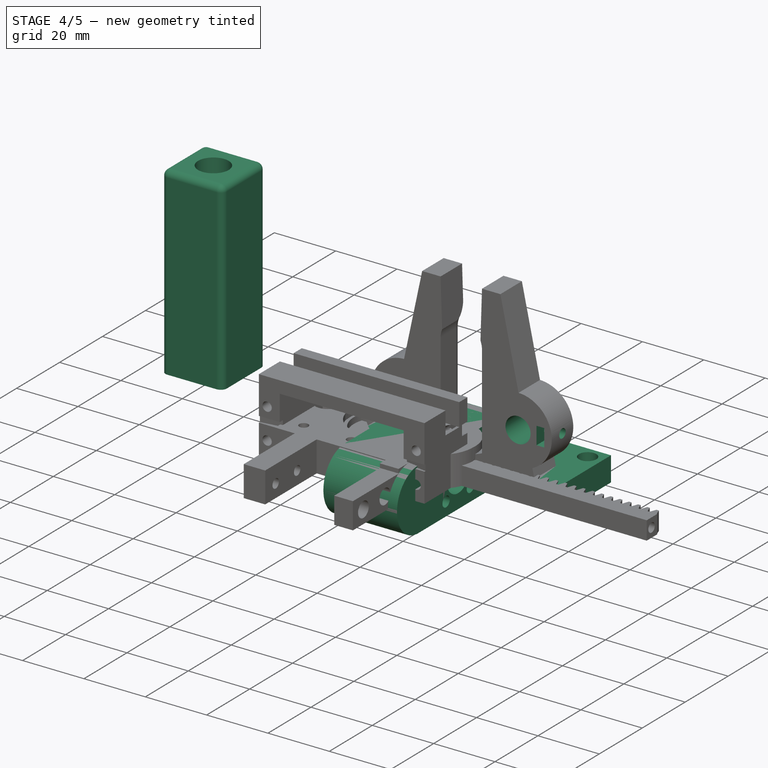
[diagram: stage 4 of 5 — iso view after this stage's code; geometry added in this stage tinted green]
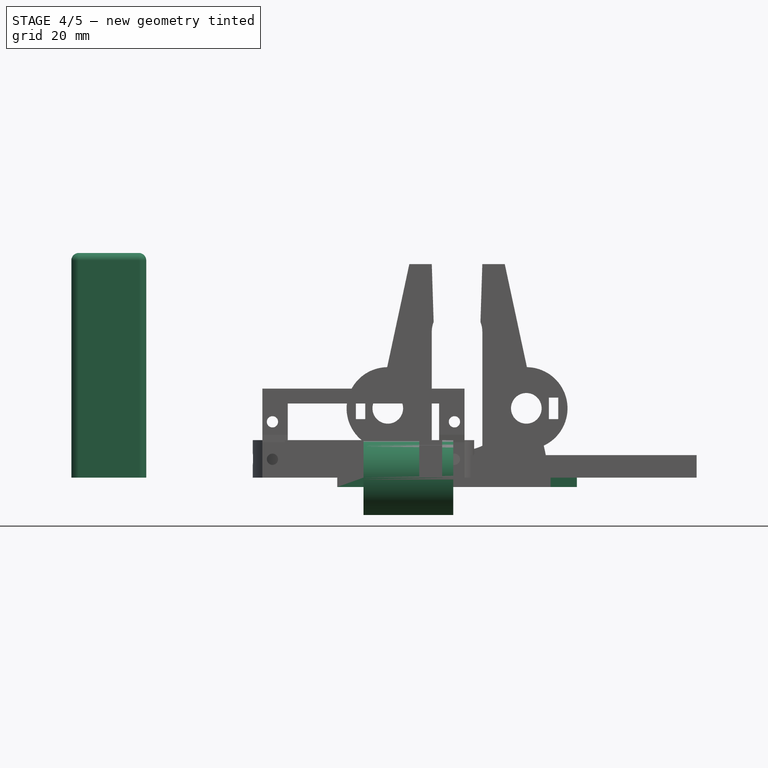
[diagram: stage 4 of 5 — front view after this stage's code; geometry added in this stage tinted green]
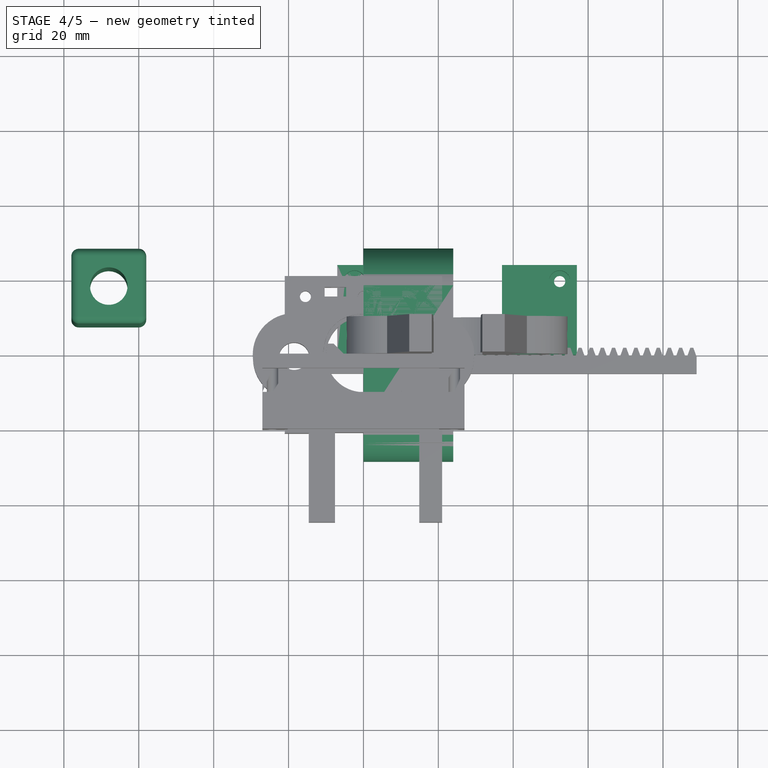
[diagram: stage 4 of 5 — top view after this stage's code; geometry added in this stage tinted green]
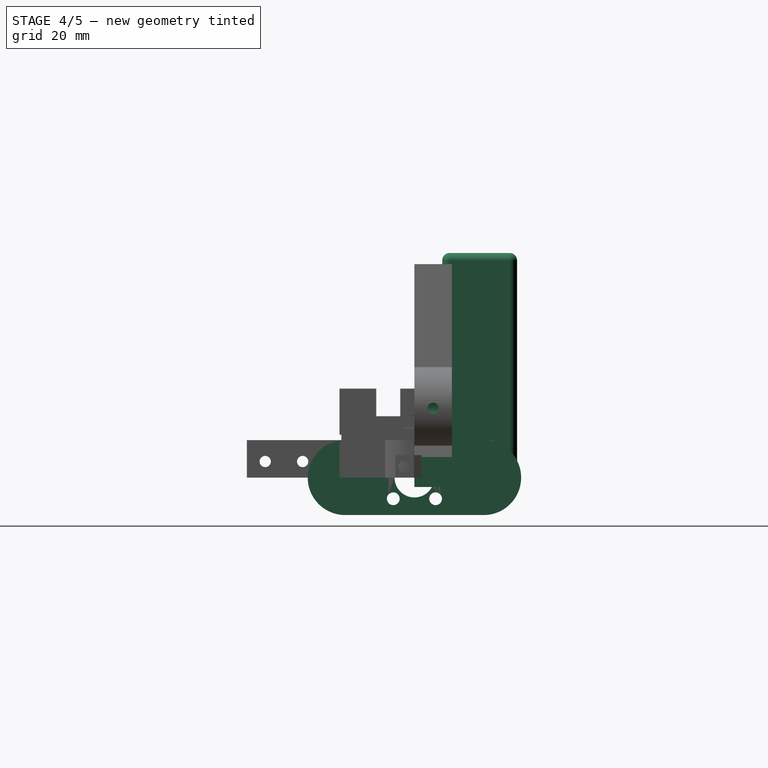
[diagram: stage 4 of 5 — right view after this stage's code; geometry added in this stage tinted green]
FEATURE [Sketcher::SketchObject] Sketch022  label="sketch_holes_varillas_y_nuts"
  ExternalGeometry = -> [Sketch006]
  FullyConstrained = true
  MapMode = 5
  Placement = pos=(0,0,0) rot=(1,0,0;1.5708rad)
  Support = -> [XZ_Plane005]
  expr: Constraints[33] = <<adapter_spreadsheet>>.B18
  expr: Constraints[97] = <<adapter_spreadsheet>>.B19
  expr: Constraints[0] = <<adapter_spreadsheet>>.diametro_varillas_S_con_tol
  expr: Constraints[32] = <<adapter_spreadsheet>>.B17
  expr: Constraints[3] = <<adapter_spreadsheet>>.ancho_lado_stepper / 2
  expr: Constraints[21] = <<adapter_spreadsheet>>.separacion_entre_varillas_S
  expr: Constraints[22] = <<adapter_spreadsheet>>.fillet_radius * 2 + <<adapter_spreadsheet>>.ancho_gilson
  sketch-geometry (40):
    g0: Circle CenterX=43.5 CenterY=18.5 CenterZ=0 NormalX=0 NormalY=0 NormalZ=1 AngleXU=0 Radius=4.09
    g1: Circle CenterX=6.5 CenterY=18.5 CenterZ=0 NormalX=0 NormalY=0 NormalZ=1 AngleXU=0 Radius=4.09
    g2: LineSegment StartX=25 StartY=-2.5 StartZ=0 EndX=25 EndY=18.5 EndZ=0
    g3: ArcOfCircle CenterX=6.5 CenterY=18.5 CenterZ=0 NormalX=0 NormalY=0 NormalZ=1 AngleXU=0 Radius=11 StartAngle=0.651039 EndAngle=5.63215
    g4: ArcOfCircle CenterX=43.5 CenterY=18.5 CenterZ=0 NormalX=0 NormalY=0 NormalZ=1 AngleXU=0 Radius=11 StartAngle=3.79263 EndAngle=8.77374
    g5: LineSegment StartX=15.25 StartY=25.1661 StartZ=0 EndX=34.75 EndY=25.1661 EndZ=0
    g6: LineSegment StartX=34.75 StartY=11.8339 StartZ=0 EndX=15.25 EndY=11.8339 EndZ=0
    g7: LineSegment StartX=15.25 StartY=25.1661 StartZ=0 EndX=15.25 EndY=11.8339 EndZ=0
    g8: LineSegment StartX=34.75 StartY=25.1661 StartZ=0 EndX=34.75 EndY=11.8339 EndZ=0
    g9: LineSegment StartX=-2.03181 StartY=21.365 StartZ=0 EndX=0.46819 EndY=21.365 EndZ=0
    g10: LineSegment StartX=0.46819 StartY=21.365 StartZ=0 EndX=0.46819 EndY=15.635 EndZ=0
    g11: LineSegment StartX=0.46819 StartY=15.635 StartZ=0 EndX=-2.03181 EndY=15.635 EndZ=0
    g12: LineSegment StartX=-2.03181 StartY=15.635 StartZ=0 EndX=-2.03181 EndY=21.365 EndZ=0
    g13: LineSegment StartX=-2.03181 StartY=21.365 StartZ=0 EndX=0.46819 EndY=15.635 EndZ=0
    g14: LineSegment StartX=0.46819 StartY=21.365 StartZ=0 EndX=-2.03181 EndY=15.635 EndZ=0
    g15: GeomPoint X=-0.78181 Y=18.5 Z=0
    g16: LineSegment StartX=49.5318 StartY=21.365 StartZ=0 EndX=52.0318 EndY=21.365 EndZ=0
    g17: LineSegment StartX=52.0318 StartY=21.365 StartZ=0 EndX=52.0318 EndY=15.635 EndZ=0
    g18: LineSegment StartX=52.0318 StartY=15.635 StartZ=0 EndX=49.5318 EndY=15.635 EndZ=0
    g19: LineSegment StartX=49.5318 StartY=15.635 StartZ=0 EndX=49.5318 EndY=21.365 EndZ=0
    g20: LineSegment StartX=49.5318 StartY=21.365 StartZ=0 EndX=52.0318 EndY=15.635 EndZ=0
    g21: LineSegment StartX=52.0318 StartY=21.365 StartZ=0 EndX=49.5318 EndY=15.635 EndZ=0
    g22: GeomPoint X=50.7818 Y=18.5 Z=0
    g23: Circle CenterX=52.0318 CenterY=21.365 CenterZ=0 NormalX=0 NormalY=0 NormalZ=1 AngleXU=0 Radius=2
    g24: Circle CenterX=-2.03181 CenterY=21.365 CenterZ=0 NormalX=0 NormalY=0 NormalZ=1 AngleXU=0 Radius=2
    g25: LineSegment StartX=29.635 StartY=3.5 StartZ=0 EndX=35.365 EndY=3.5 EndZ=0
    g26: LineSegment StartX=35.365 StartY=3.5 StartZ=0 EndX=35.365 EndY=1 EndZ=0
    g27: LineSegment StartX=35.365 StartY=1 StartZ=0 EndX=29.635 EndY=1 EndZ=0
    g28: LineSegment StartX=29.635 StartY=1 StartZ=0 EndX=29.635 EndY=3.5 EndZ=0
    g29: LineSegment StartX=29.635 StartY=3.5 StartZ=0 EndX=35.365 EndY=1 EndZ=0
    g30: LineSegment StartX=35.365 StartY=3.5 StartZ=0 EndX=29.635 EndY=1 EndZ=0
    g31: GeomPoint X=32.5 Y=2.25 Z=0
    g32: LineSegment StartX=14.635 StartY=3.5 StartZ=0 EndX=20.365 EndY=3.5 EndZ=0
    g33: LineSegment StartX=20.365 StartY=3.5 StartZ=0 EndX=20.365 EndY=1 EndZ=0
    g34: LineSegment StartX=20.365 StartY=1 StartZ=0 EndX=14.635 EndY=1 EndZ=0
    g35: LineSegment StartX=14.635 StartY=1 StartZ=0 EndX=14.635 EndY=3.5 EndZ=0
    g36: LineSegment StartX=14.635 StartY=3.5 StartZ=0 EndX=20.365 EndY=1 EndZ=0
    g37: LineSegment StartX=20.365 StartY=3.5 StartZ=0 EndX=14.635 EndY=1 EndZ=0
    g38: GeomPoint X=17.5 Y=2.25 Z=0
    g39: GeomPoint X=25 Y=7 Z=0
  constraints (103):
    c: Diameter(g0) = 8.18
    c: Equal(g0,g1) = 8.18
    c: Vertical(g2)
    c: DistanceY(g2,g2) = 21
    c: Coincident(g3,g1)
    c: Coincident(g4,g0)
    c: Coincident(g5,g3)
    c: Coincident(g5,g4)
    c: Horizontal(g5)
    c: Coincident(g6,g4)
    c: Coincident(g6,g3)
    c: Horizontal(g6)
    c: Symmetric(g1,g0,g2)
    c: Coincident(g7,g3)
    c: Coincident(g7,g3)
    c: Vertical(g7)
    c: Coincident(g8,g4)
    c: Coincident(g8,g4)
    c: Vertical(g8)
    c: Equal(g3,g4)
    c: Diameter(g4) = 22
    c: DistanceX(g1,g0) = 37
    c: DistanceX(g5,g5) = 19.5
    c: Symmetric(g-3,g-3,g2)
    c: Coincident(g9,g10)
    c: Coincident(g10,g11)
    c: Coincident(g11,g12)
    c: Coincident(g12,g9)
    c: Horizontal(g9)
    c: Horizontal(g11)
    c: Vertical(g10)
    c: Vertical(g12)
    c: DistanceY(g12,g12) = 5.73
    c: DistanceX(g9,g9) = 2.5
    c: Coincident(g13,g9)
    c: Coincident(g13,g10)
    c: Coincident(g14,g9)
    c: Coincident(g14,g11)
    c: PointOnObject(g15,g14)
    c: PointOnObject(g15,g13)
    c: Coincident(g16,g17)
    c: Coincident(g17,g18)
    c: Coincident(g18,g19)
    c: Coincident(g19,g16)
    c: Horizontal(g16)
    c: Horizontal(g18)
    c: Vertical(g17)
    c: Vertical(g19)
    c: Equal(g12,g19) = 5.73
    c: Equal(g9,g16) = 2.5
    c: Coincident(g20,g16)
    c: Coincident(g20,g17)
    c: Coincident(g21,g16)
    c: Coincident(g21,g18)
    c: PointOnObject(g22,g21)
    c: PointOnObject(g22,g20)
    c: Coincident(g23,g16)
    c: Diameter(g23) = 4
    c: Tangent(g23,g4)
    c: Horizontal(g22,g0)
    c: Horizontal(g15,g1)
    c: Coincident(g24,g9)
    c: Tangent(g24,g3)
    c: Equal(g24,g23)
    c: Coincident(g25,g26)
    c: Coincident(g26,g27)
    c: Coincident(g27,g28)
    c: Coincident(g28,g25)
    c: Horizontal(g25)
    c: Horizontal(g27)
    c: Vertical(g26)
    c: Vertical(g28)
    c: Coincident(g29,g25)
    c: Coincident(g29,g26)
    c: Coincident(g30,g25)
    c: Coincident(g30,g27)
    c: PointOnObject(g31,g30)
    c: PointOnObject(g31,g29)
    c: Equal(g26,g18)
    c: Equal(g25,g19)
    c: Coincident(g32,g33)
    c: Coincident(g33,g34)
    c: Coincident(g34,g35)
    c: Coincident(g35,g32)
    c: Horizontal(g32)
    c: Horizontal(g34)
    c: Vertical(g33)
    c: Vertical(g35)
    c: Coincident(g36,g32)
    c: Coincident(g36,g33)
    c: Coincident(g37,g32)
    c: Coincident(g37,g34)
    c: PointOnObject(g38,g37)
    c: PointOnObject(g38,g36)
    c: DistanceX(g32,g25) = 20.73
    c: Equal(g32,g25)
    c: Equal(g33,g28)
    c: DistanceX(g38,g31) = 15
    c: Symmetric(g38,g31,g2)
    c: DistanceY(g2,g33) = 3.5
    c: PointOnObject(g39,g-4)
    c: PointOnObject(g39,g2)
    c: DistanceY(g39,g1) = 11.5
FEATURE [PartDesign::Pocket] Pocket013  label="holes_varillas_y_nuts"
  BaseFeature = -> Pad013
  Length = 5
  Length2 = 100
  Midplane = true
  Placement = pos=(0,0,0) rot=(1,0,0;1.5708rad)
  Profile = -> Sketch022
  Type = 1
FEATURE [Sketcher::SketchObject] Sketch023  label="sketch_holes_screw_Z_attachment_base"
  ExternalGeometry = -> [Sketch022]
  FullyConstrained = true
  MapMode = 5
  Support = -> [XY_Plane005]
  expr: Constraints[4] = <<adapter_spreadsheet>>.alto_base_gilson_top / 2
  expr: Constraints[1] = <<adapter_spreadsheet>>.B19
  sketch-geometry (3):
    g0: Circle CenterX=17.5 CenterY=5 CenterZ=0 NormalX=0 NormalY=0 NormalZ=1 AngleXU=0 Radius=1.5
    g1: Circle CenterX=32.5 CenterY=5 CenterZ=0 NormalX=0 NormalY=0 NormalZ=1 AngleXU=0 Radius=1.5
    g2: LineSegment StartX=17.5 StartY=5 StartZ=0 EndX=17.5 EndY=-9e-16 EndZ=0
  constraints (8):
    c: Horizontal(g0,g1)
    c: DistanceX(g0,g1) = 15
    c: Equal(g0,g1)
    c: Diameter(g1) = 3
    c: DistanceY(g-1,g0) = 5
    c: Coincident(g2,g0)
    c: Vertical(g2)
    c: Symmetric(g-3,g-3,g2)
FEATURE [PartDesign::Pocket] Pocket014  label="holes_screw_Z_attachment_base"
  BaseFeature = -> Pocket013
  Length = 15
  Length2 = 100
  Midplane = true
  Placement = pos=(0,0,0) rot=(1,0,0;1.5708rad)
  Profile = -> Sketch023
  Reversed = true
  Type = 0
FEATURE [PartDesign::Body] Body008  label="gilson_mid_fastener_2"
  Group = -> [Sketch026,Pad017,Sketch027,Pocket015,DatumPlane002,Sketch028,Pocket016]
  Origin = -> Origin008
  Placement = pos=(0,0,-50) rot=(0,0,1;0rad)
  Tip = -> Pocket016
FEATURE [Sketcher::SketchObject] Sketch036  label="acme_nut_screw_holes_sketch"
  FullyConstrained = true
  MapMode = 5
  Placement = pos=(0,0,0) rot=(0.57735,0.57735,0.57735;2.0944rad)
  Support = -> [YZ_Plane006]
  sketch-geometry (16):
    g0: Circle CenterX=0 CenterY=0 CenterZ=0 NormalX=0 NormalY=0 NormalZ=1 AngleXU=0 Radius=5.3
    g1: LineSegment StartX=-5.65 StartY=5.65 StartZ=0 EndX=5.65 EndY=5.65 EndZ=0
    g2: LineSegment StartX=5.65 StartY=5.65 StartZ=0 EndX=5.65 EndY=-5.65 EndZ=0
    g3: LineSegment StartX=5.65 StartY=-5.65 StartZ=0 EndX=-5.65 EndY=-5.65 EndZ=0
    g4: LineSegment StartX=-5.65 StartY=-5.65 StartZ=0 EndX=-5.65 EndY=5.65 EndZ=0
    g5: LineSegment StartX=-5.65 StartY=-5.65 StartZ=0 EndX=5.65 EndY=5.65 EndZ=0
    g6: LineSegment StartX=5.65 StartY=-5.65 StartZ=0 EndX=-5.65 EndY=5.65 EndZ=0
    g7: Circle CenterX=-5.65 CenterY=5.65 CenterZ=0 NormalX=0 NormalY=0 NormalZ=1 AngleXU=0 Radius=1.7
    g8: Circle CenterX=5.65 CenterY=5.65 CenterZ=0 NormalX=0 NormalY=0 NormalZ=1 AngleXU=0 Radius=1.7
    g9: Circle CenterX=5.65 CenterY=-5.65 CenterZ=0 NormalX=0 NormalY=0 NormalZ=1 AngleXU=0 Radius=1.7
    g10: Circle CenterX=-5.65 CenterY=-5.65 CenterZ=0 NormalX=0 NormalY=0 NormalZ=1 AngleXU=0 Radius=1.7
    g11: Circle CenterX=0 CenterY=0 CenterZ=0 NormalX=0 NormalY=0 NormalZ=1 AngleXU=0 Radius=11
    g12: LineSegment StartX=-7.35 StartY=7.35 StartZ=0 EndX=7.35 EndY=7.35 EndZ=0
    g13: LineSegment StartX=7.35 StartY=7.35 StartZ=0 EndX=7.35 EndY=-7.35 EndZ=0
    g14: LineSegment StartX=7.35 StartY=-7.35 StartZ=0 EndX=-7.35 EndY=-7.35 EndZ=0
    g15: LineSegment StartX=-7.35 StartY=-7.35 StartZ=0 EndX=-7.35 EndY=7.35 EndZ=0
  constraints (41):
    c: Coincident(g1,g2)
    c: Coincident(g2,g3)
    c: Coincident(g3,g4)
    c: Coincident(g4,g1)
    c: Horizontal(g1)
    c: Horizontal(g3)
    c: Vertical(g2)
    c: Vertical(g4)
    c: Coincident(g5,g3)
    c: Coincident(g5,g1)
    c: Coincident(g6,g2)
    c: Coincident(g6,g1)
    c: Equal(g1,g4)
    c: PointOnObject(g0,g6)
    c: PointOnObject(g0,g5)
    c: Coincident(g7,g1)
    c: Coincident(g8,g1)
    c: Coincident(g9,g2)
    c: Coincident(g10,g3)
    c: Equal(g10,g7)
    c: Equal(g7,g8)
    c: Equal(g8,g9)
    c: Diameter(g8) = 3.4
    c: Diameter(g0) = 10.6
    c: Coincident(g11,g0)
    c: Diameter(g11) = 22
    c: Coincident(g12,g13)
    c: Coincident(g13,g14)
    c: Coincident(g14,g15)
    c: Coincident(g15,g12)
    c: Horizontal(g12)
    c: Horizontal(g14)
    c: Vertical(g13)
    c: Vertical(g15)
    c: Tangent(g12,g8)
    c: Tangent(g13,g8)
    c: Tangent(g15,g10)
    c: Tangent(g14,g10)
    c: DistanceX(g12,g12) = 14.7
    c: Coincident(g-1,g0)
    c: DistanceX(g1,g1) = 11.3
FEATURE [Sketcher::SketchObject] Sketch034  label="acme_nut_sketch"
  FullyConstrained = true
  MapMode = 5
  Placement = pos=(0,0,0) rot=(0.57735,0.57735,0.57735;2.0944rad)
  Support = -> [YZ_Plane006]
  sketch-geometry (16):
    g0: Circle CenterX=0 CenterY=0 CenterZ=0 NormalX=0 NormalY=0 NormalZ=1 AngleXU=0 Radius=5.3
    g1: LineSegment StartX=-5.65 StartY=5.65 StartZ=0 EndX=5.65 EndY=5.65 EndZ=0
    g2: LineSegment StartX=5.65 StartY=5.65 StartZ=0 EndX=5.65 EndY=-5.65 EndZ=0
    g3: LineSegment StartX=5.65 StartY=-5.65 StartZ=0 EndX=-5.65 EndY=-5.65 EndZ=0
    g4: LineSegment StartX=-5.65 StartY=-5.65 StartZ=0 EndX=-5.65 EndY=5.65 EndZ=0
    g5: LineSegment StartX=-5.65 StartY=-5.65 StartZ=0 EndX=5.65 EndY=5.65 EndZ=0
    g6: LineSegment StartX=5.65 StartY=-5.65 StartZ=0 EndX=-5.65 EndY=5.65 EndZ=0
    g7: Circle CenterX=-5.65 CenterY=5.65 CenterZ=0 NormalX=0 NormalY=0 NormalZ=1 AngleXU=0 Radius=1.7
    g8: Circle CenterX=5.65 CenterY=5.65 CenterZ=0 NormalX=0 NormalY=0 NormalZ=1 AngleXU=0 Radius=1.7
    g9: Circle CenterX=5.65 CenterY=-5.65 CenterZ=0 NormalX=0 NormalY=0 NormalZ=1 AngleXU=0 Radius=1.7
    g10: Circle CenterX=-5.65 CenterY=-5.65 CenterZ=0 NormalX=0 NormalY=0 NormalZ=1 AngleXU=0 Radius=1.7
    g11: Circle CenterX=0 CenterY=0 CenterZ=0 NormalX=0 NormalY=0 NormalZ=1 AngleXU=0 Radius=11
    g12: LineSegment StartX=-7.35 StartY=7.35 StartZ=0 EndX=7.35 EndY=7.35 EndZ=0
    g13: LineSegment StartX=7.35 StartY=7.35 StartZ=0 EndX=7.35 EndY=-7.35 EndZ=0
    g14: LineSegment StartX=7.35 StartY=-7.35 StartZ=0 EndX=-7.35 EndY=-7.35 EndZ=0
    g15: LineSegment StartX=-7.35 StartY=-7.35 StartZ=0 EndX=-7.35 EndY=7.35 EndZ=0
  constraints (41):
    c: Coincident(g1,g2)
    c: Coincident(g2,g3)
    c: Coincident(g3,g4)
    c: Coincident(g4,g1)
    c: Horizontal(g1)
    c: Horizontal(g3)
    c: Vertical(g2)
    c: Vertical(g4)
    c: Coincident(g5,g3)
    c: Coincident(g5,g1)
    c: Coincident(g6,g2)
    c: Coincident(g6,g1)
    c: Equal(g1,g4)
    c: PointOnObject(g0,g6)
    c: PointOnObject(g0,g5)
    c: Coincident(g7,g1)
    c: Coincident(g8,g1)
    c: Coincident(g9,g2)
    c: Coincident(g10,g3)
    c: Equal(g10,g7)
    c: Equal(g7,g8)
    c: Equal(g8,g9)
    c: Diameter(g8) = 3.4
    c: Diameter(g0) = 10.6
    c: Coincident(g11,g0)
    c: Diameter(g11) = 22
    c: Coincident(g12,g13)
    c: Coincident(g13,g14)
    c: Coincident(g14,g15)
    c: Coincident(g15,g12)
    c: Horizontal(g12)
    c: Horizontal(g14)
    c: Vertical(g13)
    c: Vertical(g15)
    c: Tangent(g12,g8)
    c: Tangent(g13,g8)
    c: Tangent(g15,g10)
    c: Tangent(g14,g10)
    c: DistanceX(g1,g1) = 11.3
    c: DistanceX(g12,g12) = 14.7
    c: Coincident(g-1,g0)
FEATURE [Sketcher::SketchObject] Sketch039  label="base_slider_z001"
  ExternalGeometry = -> [Sketch034]
  FullyConstrained = true
  MapMode = 5
  Placement = pos=(0,0,0) rot=(0.57735,0.57735,0.57735;2.0944rad)
  Support = -> [YZ_Plane006]
  expr: Constraints[64] = <<zvarillas>>.B14
  expr: Constraints[63] = <<zvarillas>>.B13
  sketch-geometry (32):
    g0: Circle CenterX=18.5 CenterY=0 CenterZ=0 NormalX=0 NormalY=0 NormalZ=1 AngleXU=0 Radius=7.6
    g1: Circle CenterX=-18.5 CenterY=0 CenterZ=0 NormalX=0 NormalY=0 NormalZ=1 AngleXU=0 Radius=7.6
    g2: LineSegment StartX=-18.5 StartY=10 StartZ=0 EndX=18.5 EndY=10 EndZ=0
    g3: LineSegment StartX=18.5 StartY=10 StartZ=0 EndX=18.5 EndY=-10 EndZ=0
    g4: LineSegment StartX=-18.5 StartY=-10 StartZ=0 EndX=-18.5 EndY=10 EndZ=0
    g5: ArcOfCircle CenterX=18.5 CenterY=0 CenterZ=0 NormalX=0 NormalY=0 NormalZ=1 AngleXU=0 Radius=10 StartAngle=4.71239 EndAngle=7.85398
    g6: LineSegment StartX=-28.5 StartY=1.2e-15 StartZ=0 EndX=-28.5 EndY=-12.9 EndZ=0
    g7: LineSegment StartX=-28.5 StartY=-12.9 StartZ=0 EndX=6.5 EndY=-12.9 EndZ=0
    g8: LineSegment StartX=6.5 StartY=-12.9 StartZ=0 EndX=6.5 EndY=-10 EndZ=0
    g9: ArcOfCircle CenterX=-18.5 CenterY=0 CenterZ=0 NormalX=0 NormalY=0 NormalZ=1 AngleXU=0 Radius=10 StartAngle=1.5708 EndAngle=3.14159
    g10: ArcOfCircle CenterX=-18.5 CenterY=0 CenterZ=0 NormalX=0 NormalY=0 NormalZ=1 AngleXU=0 Radius=10 StartAngle=3.14159 EndAngle=4.71239
    g11: LineSegment StartX=18.5 StartY=-10 StartZ=0 EndX=6.5 EndY=-10 EndZ=0
    g12: LineSegment StartX=-18.5 StartY=-10 StartZ=0 EndX=6.5 EndY=-10 EndZ=0
    g13: LineSegment StartX=-20.6 StartY=-8.9 StartZ=0 EndX=-14.87 EndY=-8.9 EndZ=0
    g14: LineSegment StartX=-14.87 StartY=-8.9 StartZ=0 EndX=-14.87 EndY=-11.4 EndZ=0
    g15: LineSegment StartX=-14.87 StartY=-11.4 StartZ=0 EndX=-20.6 EndY=-11.4 EndZ=0
    g16: LineSegment StartX=-20.6 StartY=-11.4 StartZ=0 EndX=-20.6 EndY=-8.9 EndZ=0
    g17: LineSegment StartX=-20.6 StartY=-11.4 StartZ=0 EndX=-14.87 EndY=-8.9 EndZ=0
    g18: LineSegment StartX=-14.87 StartY=-11.4 StartZ=0 EndX=-20.6 EndY=-8.9 EndZ=0
    g19: GeomPoint X=-17.735 Y=-10.15 Z=0
    g20: LineSegment StartX=-1.6 StartY=-8.9 StartZ=0 EndX=4.13 EndY=-8.9 EndZ=0
    g21: LineSegment StartX=4.13 StartY=-8.9 StartZ=0 EndX=4.13 EndY=-11.4 EndZ=0
    g22: LineSegment StartX=4.13 StartY=-11.4 StartZ=0 EndX=-1.6 EndY=-11.4 EndZ=0
    g23: LineSegment StartX=-1.6 StartY=-11.4 StartZ=0 EndX=-1.6 EndY=-8.9 EndZ=0
    g24: LineSegment StartX=-1.6 StartY=-11.4 StartZ=0 EndX=4.13 EndY=-8.9 EndZ=0
    g25: LineSegment StartX=4.13 StartY=-11.4 StartZ=0 EndX=-1.6 EndY=-8.9 EndZ=0
    g26: GeomPoint X=1.265 Y=-10.15 Z=0
    g27: Circle CenterX=0 CenterY=0 CenterZ=0 NormalX=0 NormalY=0 NormalZ=1 AngleXU=0 Radius=5.3
    g28: Circle CenterX=-5.65 CenterY=5.65 CenterZ=0 NormalX=0 NormalY=0 NormalZ=1 AngleXU=0 Radius=1.7
    g29: Circle CenterX=5.65 CenterY=5.65 CenterZ=0 NormalX=0 NormalY=0 NormalZ=1 AngleXU=0 Radius=1.7
    g30: Circle CenterX=5.65 CenterY=-5.65 CenterZ=0 NormalX=0 NormalY=0 NormalZ=1 AngleXU=0 Radius=1.7
    g31: Circle CenterX=-5.65 CenterY=-5.65 CenterZ=0 NormalX=0 NormalY=0 NormalZ=1 AngleXU=0 Radius=1.7
  constraints (79):
    c: PointOnObject(g0,g-1)
    c: Equal(g1,g0)
    c: Diameter(g0) = 15.2
    c: Coincident(g2,g3)
    c: Coincident(g4,g2)
    c: Horizontal(g2)
    c: Coincident(g5,g0)
    c: Coincident(g5,g2)
    c: Diameter(g5) = 20
    c: Vertical(g3)
    c: PointOnObject(g0,g3)
    c: Symmetric(g0,g1,g-1)
    c: DistanceX(g2,g2) = 37
    c: Vertical(g6)
    c: Coincident(g7,g6)
    c: Horizontal(g7)
    c: Coincident(g8,g7)
    c: Vertical(g8)
    c: Coincident(g9,g1)
    c: Coincident(g9,g2)
    c: Coincident(g10,g1)
    c: Coincident(g10,g6)
    c: Coincident(g10,g4) = 1.5708
    c: DistanceX(g7,g7) = 35
    c: Tangent(g9,g6) = -1.5708
    c: DistanceY(g8,g8) = 2.9
    c: Coincident(g11,g8)
    c: Coincident(g12,g4)
    c: Coincident(g12,g8)
    c: Horizontal(g12)
    c: Tangent(g10,g12)
    c: Tangent(g11,g5) = 1.5708
    c: Coincident(g13,g14)
    c: Coincident(g14,g15)
    c: Coincident(g15,g16)
    c: Coincident(g16,g13)
    c: Horizontal(g13)
    c: Horizontal(g15)
    c: Vertical(g14)
    c: Vertical(g16)
    c: Coincident(g17,g15)
    c: Coincident(g17,g13)
    c: Coincident(g18,g14)
    c: Coincident(g18,g13)
    c: PointOnObject(g19,g17)
    c: PointOnObject(g19,g18)
    c: Coincident(g20,g21)
    c: Coincident(g21,g22)
    c: Coincident(g22,g23)
    c: Coincident(g23,g20)
    c: Horizontal(g20)
    c: Horizontal(g22)
    c: Vertical(g21)
    c: Vertical(g23)
    c: Coincident(g24,g22)
    c: Coincident(g24,g20)
    c: Coincident(g25,g21)
    c: Coincident(g25,g20)
    c: PointOnObject(g26,g24)
    c: PointOnObject(g26,g25)
    c: Equal(g13,g20)
    c: Equal(g23,g14)
    c: Horizontal(g19,g26)
    c: DistanceX(g13,g13) = 5.73
    c: DistanceY(g23,g23) = 2.5
    c: DistanceX(g19,g26) = 19
    c: DistanceX(g6,g15) = 7.9
    c: DistanceY(g6,g13) = 4
    c: Coincident(g3,g5)
    c: Coincident(g27,g-1)
    c: Equal(g27,g-3)
    c: Coincident(g28,g-4)
    c: Coincident(g29,g-5)
    c: Coincident(g30,g-6)
    c: Coincident(g31,g-7)
    c: Equal(g31,g30)
    c: Equal(g30,g29)
    c: Equal(g29,g28)
    c: Equal(g28,g-4)
FEATURE [Sketcher::SketchObject] Sketch038  label="acme_fixing_nut_screw_holes_sketch"
  AttachmentOffset = pos=(0,0,26.6) rot=(0,0,1;0rad)
  ExternalGeometry = -> [Sketch034]
  FullyConstrained = true
  MapMode = 5
  Placement = pos=(26.6,-5.9e-15,5.9e-15) rot=(0.57735,0.57735,0.57735;2.0944rad)
  Support = -> [YZ_Plane006]
  sketch-geometry (16):
    g0: LineSegment StartX=1.25917 StartY=5.14825 StartZ=0 EndX=11.8658 EndY=15.7549 EndZ=0
    g1: LineSegment StartX=11.8658 StartY=15.7549 StartZ=0 EndX=15.7549 EndY=11.8658 EndZ=0
    g2: LineSegment StartX=15.7549 StartY=11.8658 StartZ=0 EndX=5.14825 EndY=1.25917 EndZ=0
    g3: LineSegment StartX=5.14825 StartY=1.25917 StartZ=0 EndX=1.25917 EndY=5.14825 EndZ=0
    g4: LineSegment StartX=-1.25917 StartY=5.14825 StartZ=0 EndX=-11.8658 EndY=15.7549 EndZ=0
    g5: LineSegment StartX=-11.8658 StartY=15.7549 StartZ=0 EndX=-15.7549 EndY=11.8658 EndZ=0
    g6: LineSegment StartX=-15.7549 StartY=11.8658 StartZ=0 EndX=-5.14825 EndY=1.25917 EndZ=0
    g7: LineSegment StartX=-5.14825 StartY=1.25917 StartZ=0 EndX=-1.25917 EndY=5.14825 EndZ=0
    g8: LineSegment StartX=1.25917 StartY=-5.14825 StartZ=0 EndX=5.14825 EndY=-1.25917 EndZ=0
    g9: LineSegment StartX=5.14825 StartY=-1.25917 StartZ=0 EndX=15.7549 EndY=-11.8658 EndZ=0
    g10: LineSegment StartX=15.7549 StartY=-11.8658 StartZ=0 EndX=11.8658 EndY=-15.7549 EndZ=0
    g11: LineSegment StartX=11.8658 StartY=-15.7549 StartZ=0 EndX=1.25917 EndY=-5.14825 EndZ=0
    g12: LineSegment StartX=-1.25917 StartY=-5.14825 StartZ=0 EndX=-11.8658 EndY=-15.7549 EndZ=0
    g13: LineSegment StartX=-11.8658 StartY=-15.7549 StartZ=0 EndX=-15.7549 EndY=-11.8658 EndZ=0
    g14: LineSegment StartX=-15.7549 StartY=-11.8658 StartZ=0 EndX=-5.14825 EndY=-1.25917 EndZ=0
    g15: LineSegment StartX=-5.14825 StartY=-1.25917 StartZ=0 EndX=-1.25917 EndY=-5.14825 EndZ=0
  constraints (48):
    c: Coincident(g0,g1)
    c: Coincident(g1,g2)
    c: Coincident(g2,g3)
    c: Coincident(g3,g0)
    c: PointOnObject(g4,g-3)
    c: Coincident(g4,g5)
    c: Coincident(g5,g6)
    c: PointOnObject(g6,g-3)
    c: Coincident(g6,g7)
    c: Coincident(g7,g4)
    c: PointOnObject(g8,g-3)
    c: PointOnObject(g8,g-3)
    c: Coincident(g8,g9)
    c: Coincident(g9,g10)
    c: Coincident(g10,g11)
    c: Coincident(g11,g8)
    c: PointOnObject(g12,g-3)
    c: Coincident(g12,g13)
    c: Coincident(g13,g14)
    c: Coincident(g14,g15)
    c: Coincident(g15,g12)
    c: PointOnObject(g14,g-3)
    c: Parallel(g13,g15)
    c: Parallel(g15,g3)
    c: Parallel(g3,g1)
    c: Parallel(g1,g9)
    c: Parallel(g9,g11)
    c: Parallel(g11,g6)
    c: Parallel(g6,g4)
    c: Parallel(g12,g14)
    c: Parallel(g14,g5)
    c: Parallel(g5,g7)
    c: Parallel(g7,g0)
    c: Parallel(g0,g2)
    c: Parallel(g2,g8)
    c: Parallel(g8,g10)
    c: Perpendicular(g13,g14)
    c: PointOnObject(g0,g-3)
    c: PointOnObject(g2,g-3)
    c: Equal(g1,g10)
    c: Equal(g10,g13)
    c: Equal(g13,g5)
    c: Equal(g0,g6)
    c: Equal(g6,g14)
    c: Equal(g14,g11)
    c: Angle(g-1,g0) = 0.785398
    c: Distance(g1) = 5.5
    c: Distance(g2) = 15
FEATURE [Sketcher::SketchObject] Sketch035  label="base_slider_z"
  FullyConstrained = true
  MapMode = 5
  Placement = pos=(0,0,0) rot=(0.57735,0.57735,0.57735;2.0944rad)
  Support = -> [YZ_Plane006]
  expr: Constraints[63] = <<zvarillas>>.B13
  expr: Constraints[64] = <<zvarillas>>.B14
  sketch-geometry (27):
    g0: Circle CenterX=18.5 CenterY=0 CenterZ=0 NormalX=0 NormalY=0 NormalZ=1 AngleXU=0 Radius=7.6
    g1: Circle CenterX=-18.5 CenterY=0 CenterZ=0 NormalX=0 NormalY=0 NormalZ=1 AngleXU=0 Radius=7.6
    g2: LineSegment StartX=-18.5 StartY=10 StartZ=0 EndX=18.5 EndY=10 EndZ=0
    g3: LineSegment StartX=18.5 StartY=10 StartZ=0 EndX=18.5 EndY=-10 EndZ=0
    g4: LineSegment StartX=-18.5 StartY=-10 StartZ=0 EndX=-18.5 EndY=10 EndZ=0
    g5: ArcOfCircle CenterX=18.5 CenterY=0 CenterZ=0 NormalX=0 NormalY=0 NormalZ=1 AngleXU=0 Radius=10 StartAngle=4.71239 EndAngle=7.85398
    g6: LineSegment StartX=-28.5 StartY=1.2e-15 StartZ=0 EndX=-28.5 EndY=-12.9 EndZ=0
    g7: LineSegment StartX=-28.5 StartY=-12.9 StartZ=0 EndX=6.5 EndY=-12.9 EndZ=0
    g8: LineSegment StartX=6.5 StartY=-12.9 StartZ=0 EndX=6.5 EndY=-10 EndZ=0
    g9: ArcOfCircle CenterX=-18.5 CenterY=0 CenterZ=0 NormalX=0 NormalY=0 NormalZ=1 AngleXU=0 Radius=10 StartAngle=1.5708 EndAngle=3.14159
    g10: ArcOfCircle CenterX=-18.5 CenterY=0 CenterZ=0 NormalX=0 NormalY=0 NormalZ=1 AngleXU=0 Radius=10 StartAngle=3.14159 EndAngle=4.71239
    g11: LineSegment StartX=18.5 StartY=-10 StartZ=0 EndX=6.5 EndY=-10 EndZ=0
    g12: LineSegment StartX=-18.5 StartY=-10 StartZ=0 EndX=6.5 EndY=-10 EndZ=0
    g13: LineSegment StartX=-20.6 StartY=-8.9 StartZ=0 EndX=-14.87 EndY=-8.9 EndZ=0
    g14: LineSegment StartX=-14.87 StartY=-8.9 StartZ=0 EndX=-14.87 EndY=-11.4 EndZ=0
    g15: LineSegment StartX=-14.87 StartY=-11.4 StartZ=0 EndX=-20.6 EndY=-11.4 EndZ=0
    g16: LineSegment StartX=-20.6 StartY=-11.4 StartZ=0 EndX=-20.6 EndY=-8.9 EndZ=0
    g17: LineSegment StartX=-20.6 StartY=-11.4 StartZ=0 EndX=-14.87 EndY=-8.9 EndZ=0
    g18: LineSegment StartX=-14.87 StartY=-11.4 StartZ=0 EndX=-20.6 EndY=-8.9 EndZ=0
    g19: GeomPoint X=-17.735 Y=-10.15 Z=0
    g20: LineSegment StartX=-1.6 StartY=-8.9 StartZ=0 EndX=4.13 EndY=-8.9 EndZ=0
    g21: LineSegment StartX=4.13 StartY=-8.9 StartZ=0 EndX=4.13 EndY=-11.4 EndZ=0
    g22: LineSegment StartX=4.13 StartY=-11.4 StartZ=0 EndX=-1.6 EndY=-11.4 EndZ=0
    g23: LineSegment StartX=-1.6 StartY=-11.4 StartZ=0 EndX=-1.6 EndY=-8.9 EndZ=0
    g24: LineSegment StartX=-1.6 StartY=-11.4 StartZ=0 EndX=4.13 EndY=-8.9 EndZ=0
    g25: LineSegment StartX=4.13 StartY=-11.4 StartZ=0 EndX=-1.6 EndY=-8.9 EndZ=0
    g26: GeomPoint X=1.265 Y=-10.15 Z=0
  constraints (69):
    c: PointOnObject(g0,g-1)
    c: Equal(g1,g0)
    c: Diameter(g0) = 15.2
    c: Coincident(g2,g3)
    c: Coincident(g4,g2)
    c: Horizontal(g2)
    c: Coincident(g5,g0)
    c: Coincident(g5,g2)
    c: Diameter(g5) = 20
    c: Vertical(g3)
    c: PointOnObject(g0,g3)
    c: Symmetric(g0,g1,g-1)
    c: DistanceX(g2,g2) = 37
    c: Vertical(g6)
    c: Coincident(g7,g6)
    c: Horizontal(g7)
    c: Coincident(g8,g7)
    c: Vertical(g8)
    c: Coincident(g9,g1)
    c: Coincident(g9,g2)
    c: Coincident(g10,g1)
    c: Coincident(g10,g6)
    c: Coincident(g10,g4) = 1.5708
    c: DistanceX(g7,g7) = 35
    c: Tangent(g9,g6) = -1.5708
    c: DistanceY(g8,g8) = 2.9
    c: Coincident(g11,g8)
    c: Coincident(g12,g4)
    c: Coincident(g12,g8)
    c: Horizontal(g12)
    c: Tangent(g10,g12)
    c: Tangent(g11,g5) = 1.5708
    c: Coincident(g13,g14)
    c: Coincident(g14,g15)
    c: Coincident(g15,g16)
    c: Coincident(g16,g13)
    c: Horizontal(g13)
    c: Horizontal(g15)
    c: Vertical(g14)
    c: Vertical(g16)
    c: Coincident(g17,g15)
    c: Coincident(g17,g13)
    c: Coincident(g18,g14)
    c: Coincident(g18,g13)
    c: PointOnObject(g19,g17)
    c: PointOnObject(g19,g18)
    c: Coincident(g20,g21)
    c: Coincident(g21,g22)
    c: Coincident(g22,g23)
    c: Coincident(g23,g20)
    c: Horizontal(g20)
    c: Horizontal(g22)
    c: Vertical(g21)
    c: Vertical(g23)
    c: Coincident(g24,g22)
    c: Coincident(g24,g20)
    c: Coincident(g25,g21)
    c: Coincident(g25,g20)
    c: PointOnObject(g26,g24)
    c: PointOnObject(g26,g25)
    c: Equal(g13,g20)
    c: Equal(g23,g14)
    c: Horizontal(g19,g26)
    c: DistanceX(g13,g13) = 5.73
    c: DistanceY(g23,g23) = 2.5
    c: DistanceX(g19,g26) = 19
    c: DistanceX(g6,g15) = 7.9
    c: DistanceY(g6,g13) = 4
    c: Coincident(g3,g5)
FEATURE [PartDesign::Pad] Pad011  label="base_slider_z_pad"
  Direction = (1,1,1)
  Length = 24
  Length2 = 100
  Placement = pos=(0,0,0) rot=(0.57735,0.57735,0.57735;2.0944rad)
  Profile = -> Sketch035
  Type = 0
FEATURE [PartDesign::Pocket] Pocket021  label="acme_nut_screw_holes"
  BaseFeature = -> Pad011
  Length = 5
  Length2 = 100
  Midplane = true
  Placement = pos=(0,0,0) rot=(0.57735,0.57735,0.57735;2.0944rad)
  Profile = -> Sketch036
  Type = 1
FEATURE [PartDesign::Body] Body006  label="slider_S_endstop_socket"
  Group = -> [Sketch034,Sketch035,Pad011,Sketch036,Pocket021,Pad012,Sketch038,Sketch039,Pocket022,Sketch040,Pad018,Sketch041,Pocket023,Sketch042,Pocket024,Pocket025,LinearPattern]
  Origin = -> Origin006
  Placement = pos=(-3e-15,2e-15,30) rot=(0.57735,-0.57735,-0.57735;4.18879rad)
  Tip = -> LinearPattern
FEATURE [PartDesign::Pad] Pad019
  BaseFeature = -> Pocket014
  Direction = (1,1,1)
  Length = 8
  Length2 = 100
  Placement = pos=(0,0,0) rot=(1,0,0;1.5708rad)
  Profile = -> Sketch024
  Type = 0
FEATURE [Sketcher::SketchObject] Sketch043  label="base_attachment_pad_sketch001"
  ExternalGeometry = -> [Sketch006]
  FullyConstrained = true
  MapMode = 5
  Support = -> [XY_Plane005]
  sketch-geometry (14):
    g0: LineSegment StartX=57 StartY=6e-16 StartZ=0 EndX=57 EndY=24 EndZ=0
    g1: LineSegment StartX=57 StartY=24 StartZ=0 EndX=-7 EndY=24 EndZ=0
    g2: LineSegment StartX=-7 StartY=24 StartZ=0 EndX=-7 EndY=0 EndZ=0
    g3: LineSegment StartX=-7 StartY=0 StartZ=0 EndX=0 EndY=0 EndZ=0
    g4: LineSegment StartX=50 StartY=6e-16 StartZ=0 EndX=57 EndY=6e-16 EndZ=0
    g5: LineSegment StartX=0 StartY=0 StartZ=0 EndX=13 EndY=0 EndZ=0
    g6: LineSegment StartX=50 StartY=6e-16 StartZ=0 EndX=37 EndY=6e-16 EndZ=0
    g7: LineSegment StartX=13 StartY=24 StartZ=0 EndX=13 EndY=0 EndZ=0
    g8: LineSegment StartX=37 StartY=6e-16 StartZ=0 EndX=37 EndY=24 EndZ=0
    g9: LineSegment StartX=37 StartY=24 StartZ=0 EndX=57 EndY=24 EndZ=0
    g10: LineSegment StartX=-7 StartY=24 StartZ=0 EndX=13 EndY=24 EndZ=0
    g11: Circle CenterX=-2.4 CenterY=19.7 CenterZ=0 NormalX=0 NormalY=0 NormalZ=1 AngleXU=0 Radius=2.85
    g12: Circle CenterX=52.4 CenterY=19.7 CenterZ=0 NormalX=0 NormalY=0 NormalZ=1 AngleXU=0 Radius=2.85
    g13: LineSegment StartX=25 StartY=6e-16 StartZ=0 EndX=25 EndY=24 EndZ=0
  constraints (38):
    c: Coincident(g0,g1)
    c: Coincident(g1,g2)
    c: Horizontal(g1)
    c: Vertical(g0)
    c: Vertical(g2)
    c: PointOnObject(g2,g-1)
    c: Coincident(g3,g2)
    c: Coincident(g3,g-1)
    c: Coincident(g4,g-3)
    c: Coincident(g4,g0)
    c: Horizontal(g4)
    c: Equal(g4,g3)
    c: DistanceY(g0,g0) = 24
    c: DistanceX(g1,g1) = 64
    c: Coincident(g5,g-1)
    c: PointOnObject(g5,g-3)
    c: Coincident(g6,g4)
    c: PointOnObject(g6,g-3)
    c: PointOnObject(g7,g1)
    c: Coincident(g7,g5)
    c: Vertical(g7)
    c: Coincident(g8,g6)
    c: PointOnObject(g8,g1)
    c: Vertical(g8)
    c: Coincident(g9,g8)
    c: Coincident(g9,g0)
    c: Coincident(g10,g2)
    c: Coincident(g10,g7)
    c: DistanceX(g10,g10) = 20
    c: Equal(g10,g9)
    c: Equal(g11,g12)
    c: PointOnObject(g13,g1)
    c: Vertical(g13)
    c: Symmetric(g5,g6,g13)
    c: Symmetric(g11,g12,g13)
    c: Diameter(g12) = 5.7
    c: DistanceX(g11,g12) = 54.8
    c: DistanceY(g12,g0) = 4.3
FEATURE [PartDesign::Pocket] Pocket026
  BaseFeature = -> Pad019
  Length = 5
  Length2 = 100
  Placement = pos=(0,0,0) rot=(1,0,0;1.5708rad)
  Profile = -> Sketch043
  Reversed = true
  Type = 1
FEATURE [Sketcher::SketchObject] Sketch044  label="Z_probe_helper_sketch"
  FullyConstrained = false
  MapMode = 5
  Support = -> [XY_Plane]
  sketch-geometry (5):
    g0: LineSegment StartX=-78.0193 StartY=27.4172 StartZ=0 EndX=-58.0193 EndY=27.4172 EndZ=0
    g1: LineSegment StartX=-58.0193 StartY=27.4172 StartZ=0 EndX=-58.0193 EndY=7.41717 EndZ=0
    g2: LineSegment StartX=-58.0193 StartY=7.41717 StartZ=0 EndX=-78.0193 EndY=7.41717 EndZ=0
    g3: LineSegment StartX=-78.0193 StartY=7.41717 StartZ=0 EndX=-78.0193 EndY=27.4172 EndZ=0
    g4: Circle CenterX=-68.0193 CenterY=17.4172 CenterZ=0 NormalX=0 NormalY=0 NormalZ=1 AngleXU=0 Radius=5
  constraints (12):
    c: Coincident(g0,g1)
    c: Coincident(g1,g2)
    c: Coincident(g2,g3)
    c: Coincident(g3,g0)
    c: Horizontal(g0)
    c: Horizontal(g2)
    c: Vertical(g1)
    c: Vertical(g3)
    c: Equal(g2,g1)
    c: Symmetric(g0,g2,g4)
    c: DistanceX(g2,g2) = 20
    c: Diameter(g4) = 10
FEATURE [PartDesign::Pad] Pad020  label="Z_probe_helper_pad"
  Direction = (1,1,1)
  Length = 60
  Length2 = 100
  Profile = -> Sketch044
  Type = 0
FEATURE [PartDesign::Fillet] Fillet002
  Base = -> Pad020 [Edge8,Edge5,Edge1,Edge2,Edge12,Edge4,Edge7,Edge10]
  BaseFeature = -> Pad020
  Radius = 2
  SupportTransform = false
FEATURE [PartDesign::Plane] DatumPlane005  label="svar_screw_plane_1"
  Length = 60
  MapMode = 5
  Placement = pos=(-2.03181,0,0) rot=(0.707107,0,0.707107;3.14159rad)
  ResizeMode = 0
  Support = -> [Pocket026]
  Width = 60
FEATURE [PartDesign::Plane] DatumPlane006  label="svar_screw_plane_2"
  Length = 60
  MapMode = 5
  Placement = pos=(52.0318,0,0) rot=(0.707107,0,-0.707107;3.14159rad)
  ResizeMode = 0
  Support = -> [Pocket026]
  Width = 60
FEATURE [Sketcher::SketchObject] Sketch047  label="svar_screw_Sketch_1"
  ExternalGeometry = -> [Sketch022]
  FullyConstrained = true
  MapMode = 5
  Placement = pos=(52.0318,0,0) rot=(0.707107,0,-0.707107;3.14159rad)
  Support = -> [DatumPlane006]
  sketch-geometry (2):
    g0: Circle CenterX=-18.5 CenterY=-5 CenterZ=0 NormalX=0 NormalY=0 NormalZ=1 AngleXU=0 Radius=1.5
    g1: LineSegment StartX=-18.5 StartY=8.3e-15 StartZ=0 EndX=-18.5 EndY=-5 EndZ=0
  constraints (5):
    c: Coincident(g1,g0)
    c: Vertical(g1)
    c: Symmetric(g-3,g-3,g1)
    c: DistanceY(g1,g1) = 5
    c: Diameter(g0) = 3
FEATURE [PartDesign::Pocket] Pocket029  label="svar_screw_pocket_1"
  BaseFeature = -> Pocket026
  Length = 10
  Length2 = 100
  Midplane = true
  Placement = pos=(0,0,0) rot=(1,0,0;1.5708rad)
  Profile = -> Sketch047
  Type = 0
FEATURE [Sketcher::SketchObject] Sketch048  label="svar_screw_Sketch_2"
  ExternalGeometry = -> [Sketch047]
  FullyConstrained = true
  MapMode = 5
  Placement = pos=(-2.03181,0,0) rot=(0.707107,0,0.707107;3.14159rad)
  Support = -> [DatumPlane005]
  sketch-geometry (1):
    g0: Circle CenterX=18.5 CenterY=-5 CenterZ=0 NormalX=0 NormalY=0 NormalZ=1 AngleXU=0 Radius=1.5
  constraints (2):
    c: Coincident(g0,g-3)
    c: Equal(g0,g-3)
FEATURE [PartDesign::Pocket] Pocket030  label="svar_screw_pocket_2"
  BaseFeature = -> Pocket029
  Length = 10
  Length2 = 100
  Midplane = true
  Placement = pos=(0,0,0) rot=(1,0,0;1.5708rad)
  Profile = -> Sketch048
  Type = 0
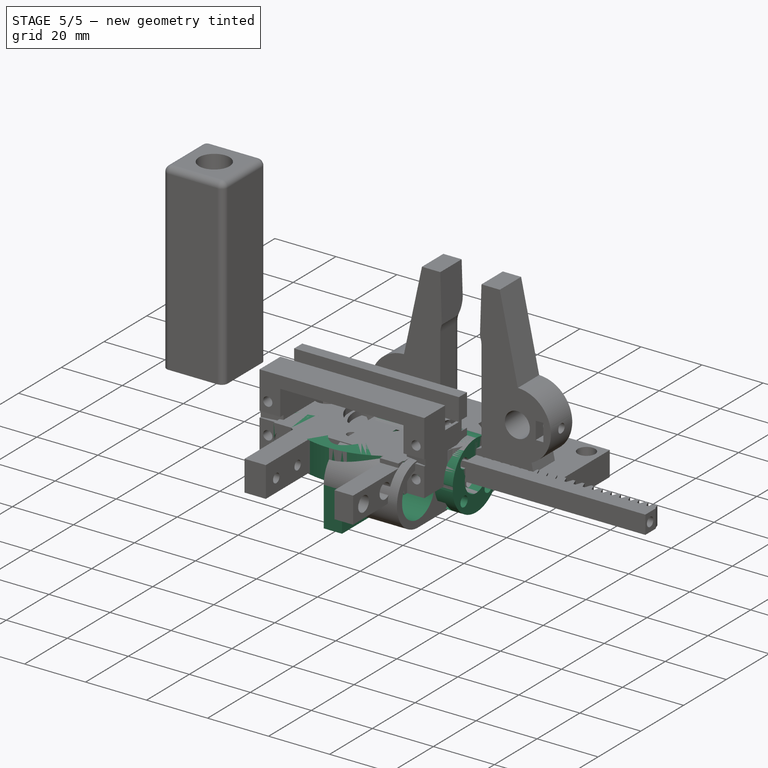
[diagram: stage 5 of 5 — iso view after this stage's code; geometry added in this stage tinted green]
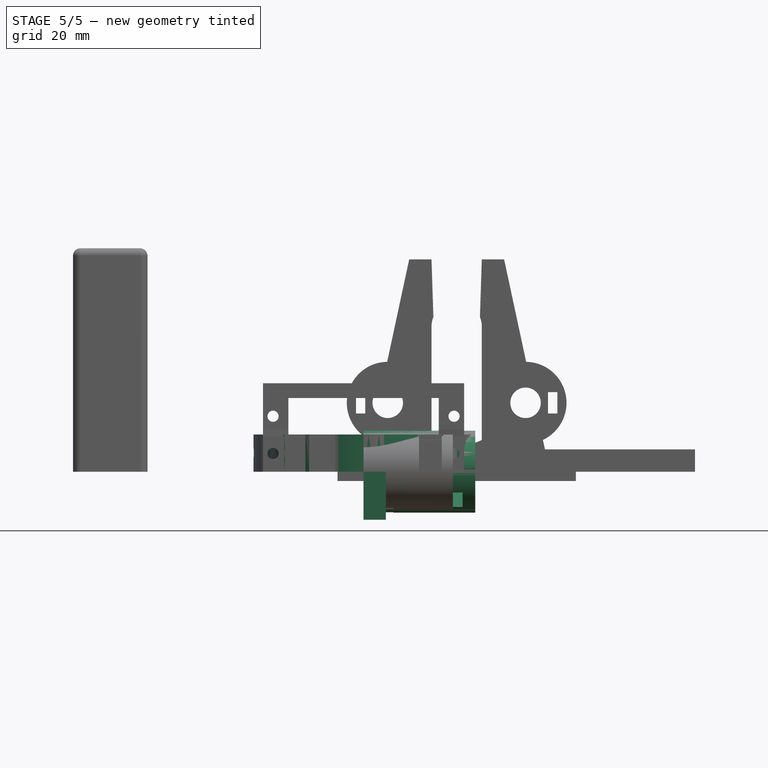
[diagram: stage 5 of 5 — front view after this stage's code; geometry added in this stage tinted green]
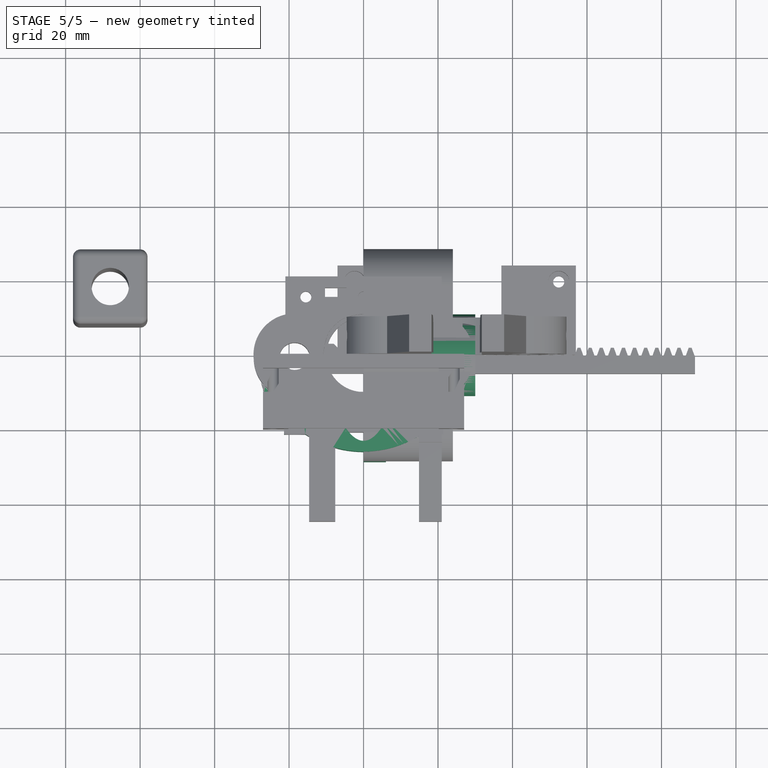
[diagram: stage 5 of 5 — top view after this stage's code; geometry added in this stage tinted green]
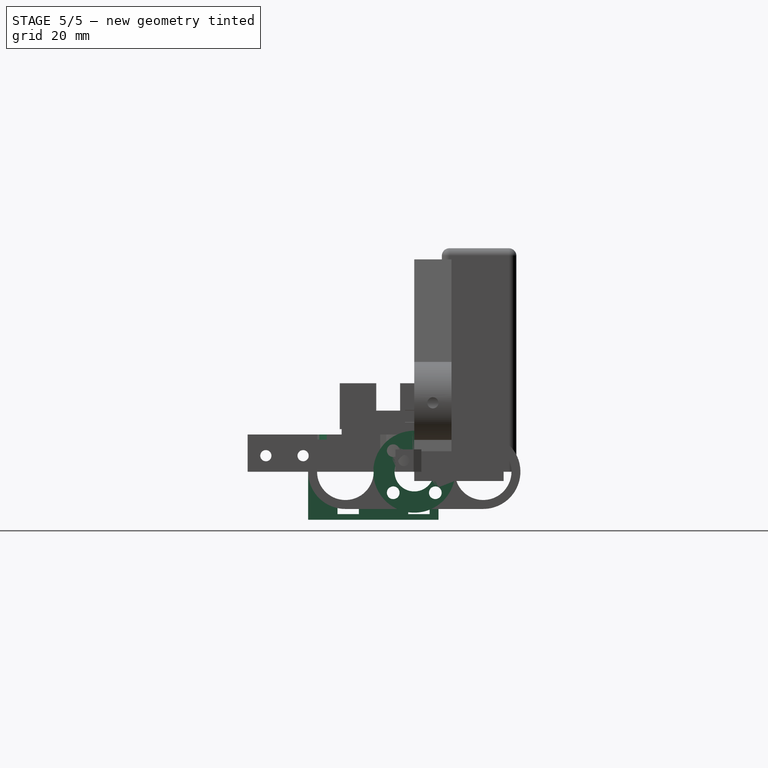
[diagram: stage 5 of 5 — right view after this stage's code; geometry added in this stage tinted green]
FEATURE [Sketcher::SketchObject] Sketch026  label="gilson_fastener_sketch_002"
  FullyConstrained = true
  MapMode = 5
  Support = -> [XY_Plane008]
  expr: Constraints[14] = <<adapter_spreadsheet>>.parameter2
  expr: Constraints[26] = <<adapter_spreadsheet>>.parameter1
  expr: Constraints[60] = <<adapter_spreadsheet>>.B17
  expr: Constraints[44] = <<adapter_spreadsheet>>.separacion_entre_varillas_S
  expr: Constraints[61] = <<adapter_spreadsheet>>.B18
  expr: Constraints[43] = <<adapter_spreadsheet>>.diametro_varillas_S_con_tol
  expr: Constraints[11] = 21.5mm + 0.2mm
  expr: Constraints[13] = <<adapter_spreadsheet>>.parameter1
  expr: Constraints[7] = <<adapter_spreadsheet>>.parameter3
  expr: Constraints[45] = <<adapter_spreadsheet>>.distancia_soporte_varilla
  sketch-geometry (52):
    g0: ArcOfCircle CenterX=-4e-16 CenterY=7e-16 CenterZ=0 NormalX=0 NormalY=0 NormalZ=1 AngleXU=0 Radius=10.85 StartAngle=0 EndAngle=3.14159
    g1: ArcOfCircle CenterX=21.8919 CenterY=7e-16 CenterZ=0 NormalX=0 NormalY=0 NormalZ=1 AngleXU=0 Radius=32.7419 StartAngle=3.14159 EndAngle=3.47936
    g2: ArcOfCircle CenterX=-21.8919 CenterY=7e-16 CenterZ=0 NormalX=0 NormalY=0 NormalZ=1 AngleXU=0 Radius=32.7419 StartAngle=5.94542 EndAngle=6.28319
    g3: LineSegment StartX=-4e-16 StartY=10.85 StartZ=0 EndX=-4e-16 EndY=-23.15 EndZ=0
    g4: LineSegment StartX=-10.85 StartY=-7.3e-15 StartZ=0 EndX=10.85 EndY=-7.3e-15 EndZ=0
    g5: LineSegment StartX=-9 StartY=-10.85 StartZ=0 EndX=9 EndY=-10.85 EndZ=0
    g6: ArcOfParabola CenterX=-4e-16 CenterY=-23.15 CenterZ=0 NormalX=0 NormalY=0 NormalZ=1 Focal=1.64634 AngleXU=1.5708 StartAngle=-9 EndAngle=9
    g7: GeomPoint X=-5e-16 Y=-21.5037 Z=0
    g8: LineSegment StartX=-4e-16 StartY=-23.15 StartZ=0 EndX=-5e-16 EndY=-21.5037 EndZ=0
    g9: GeomPoint X=0 Y=-10.85 Z=0
    g10: Circle CenterX=18.5 CenterY=-0.85 CenterZ=0 NormalX=0 NormalY=0 NormalZ=1 AngleXU=0 Radius=4.09
    g11: Circle CenterX=-18.5 CenterY=-0.85 CenterZ=0 NormalX=0 NormalY=0 NormalZ=1 AngleXU=0 Radius=4.09
    g12: ArcOfCircle CenterX=-4e-16 CenterY=7e-16 CenterZ=0 NormalX=0 NormalY=0 NormalZ=1 AngleXU=0 Radius=15 StartAngle=0.590037 EndAngle=2.55156
    g13: ArcOfCircle CenterX=-4e-16 CenterY=7e-16 CenterZ=0 NormalX=0 NormalY=0 NormalZ=1 AngleXU=0 Radius=14.0969 StartAngle=3.82141 EndAngle=4.01992
    g14: ArcOfCircle CenterX=-4e-16 CenterY=7e-16 CenterZ=0 NormalX=0 NormalY=0 NormalZ=1 AngleXU=0 Radius=14.0969 StartAngle=5.40486 EndAngle=5.60337
    g15: ArcOfCircle CenterX=-18.5 CenterY=-0.85 CenterZ=0 NormalX=0 NormalY=0 NormalZ=1 AngleXU=0 Radius=11 StartAngle=0.989933 EndAngle=5.46725
    g16: ArcOfCircle CenterX=18.5 CenterY=-0.85 CenterZ=0 NormalX=0 NormalY=0 NormalZ=1 AngleXU=0 Radius=11 StartAngle=3.95753 EndAngle=8.43484
    g17: LineSegment StartX=-21.365 StartY=-6.56327 StartZ=0 EndX=-15.635 EndY=-6.56327 EndZ=0
    g18: LineSegment StartX=-15.635 StartY=-6.56327 StartZ=0 EndX=-15.635 EndY=-9.06327 EndZ=0
    g19: LineSegment StartX=-15.635 StartY=-9.06327 StartZ=0 EndX=-21.365 EndY=-9.06327 EndZ=0
    g20: LineSegment StartX=-21.365 StartY=-9.06327 StartZ=0 EndX=-21.365 EndY=-6.56327 EndZ=0
    g21: LineSegment StartX=-21.365 StartY=-6.56327 StartZ=0 EndX=-15.635 EndY=-9.06327 EndZ=0
    g22: LineSegment StartX=-15.635 StartY=-6.56327 StartZ=0 EndX=-21.365 EndY=-9.06327 EndZ=0
    g23: GeomPoint X=-18.5 Y=-7.81327 Z=0
    g24: LineSegment StartX=15.635 StartY=-6.56327 StartZ=0 EndX=21.365 EndY=-6.56327 EndZ=0
    g25: LineSegment StartX=21.365 StartY=-6.56327 StartZ=0 EndX=21.365 EndY=-9.06327 EndZ=0
    g26: LineSegment StartX=21.365 StartY=-9.06327 StartZ=0 EndX=15.635 EndY=-9.06327 EndZ=0
    g27: LineSegment StartX=15.635 StartY=-9.06327 StartZ=0 EndX=15.635 EndY=-6.56327 EndZ=0
    g28: LineSegment StartX=15.635 StartY=-6.56327 StartZ=0 EndX=21.365 EndY=-9.06327 EndZ=0
    g29: LineSegment StartX=21.365 StartY=-6.56327 StartZ=0 EndX=15.635 EndY=-9.06327 EndZ=0
    g30: GeomPoint X=18.5 Y=-7.81327 Z=0
    g31: Circle CenterX=21.365 CenterY=-6.56327 CenterZ=0 NormalX=0 NormalY=0 NormalZ=1 AngleXU=0 Radius=2.30138
    g32: Circle CenterX=21.365 CenterY=-9.06327 CenterZ=0 NormalX=0 NormalY=0 NormalZ=1 AngleXU=0 Radius=2.30138
    g33: ArcOfCircle CenterX=0 CenterY=0 CenterZ=0 NormalX=0 NormalY=0 NormalZ=1 AngleXU=0 Radius=14.2969 StartAngle=3.83634 EndAngle=4.04358
    g34: ArcOfCircle CenterX=-18.5 CenterY=-0.85 CenterZ=0 NormalX=0 NormalY=0 NormalZ=1 AngleXU=0 Radius=11.2 StartAngle=3.77912 EndAngle=5.44815
    g35: ArcOfCircle CenterX=18.5 CenterY=-0.85 CenterZ=0 NormalX=0 NormalY=0 NormalZ=1 AngleXU=0 Radius=11.2 StartAngle=3.97663 EndAngle=5.64566
    g36: ArcOfCircle CenterX=0 CenterY=0 CenterZ=0 NormalX=0 NormalY=0 NormalZ=1 AngleXU=0 Radius=14.2969 StartAngle=5.38119 EndAngle=5.58844
    g37: LineSegment StartX=18.5 StartY=-11.85 StartZ=0 EndX=18.5 EndY=-12.05 EndZ=0
    g38: LineSegment StartX=-10.9772 StartY=-9.15978 StartZ=0 EndX=-10.8237 EndY=-9.03164 EndZ=0
    g39: ArcOfCircle CenterX=0 CenterY=0 CenterZ=0 NormalX=0 NormalY=0 NormalZ=1 AngleXU=0 Radius=28.5087 StartAngle=3.4084 EndAngle=3.8652
    g40: ArcOfCircle CenterX=0 CenterY=0 CenterZ=0 NormalX=0 NormalY=0 NormalZ=1 AngleXU=0 Radius=28.5087 StartAngle=5.55958 EndAngle=6.01638
    g41: LineSegment StartX=-21.365 StartY=-18.8754 StartZ=0 EndX=-21.365 EndY=-21.3754 EndZ=0
    g42: LineSegment StartX=-21.365 StartY=-21.3754 StartZ=0 EndX=-15.635 EndY=-21.3754 EndZ=0
    g43: LineSegment StartX=21.365 StartY=-18.8754 StartZ=0 EndX=21.365 EndY=-21.3754 EndZ=0
    g44: LineSegment StartX=21.365 StartY=-21.3754 StartZ=0 EndX=15.635 EndY=-21.3754 EndZ=0
    g45: GeomPoint X=0 Y=-26.15 Z=0
    g46: ArcOfParabola CenterX=-4e-16 CenterY=-23.15 CenterZ=0 NormalX=0 NormalY=0 NormalZ=1 Focal=1.64634 AngleXU=1.5708 StartAngle=-8.86479 EndAngle=8.86479
    g47: GeomPoint X=-5e-16 Y=-21.5037 Z=0
    g48: LineSegment StartX=-4e-16 StartY=-23.15 StartZ=0 EndX=-5e-16 EndY=-21.5037 EndZ=0
    g49: LineSegment StartX=-15.635 StartY=-9.06327 StartZ=0 EndX=-15.635 EndY=-21.3754 EndZ=0
    g50: LineSegment StartX=-21.365 StartY=-9.06327 StartZ=0 EndX=-21.365 EndY=-18.8754 EndZ=0
    g51: ArcOfCircle CenterX=-4e-16 CenterY=2.46344 CenterZ=0 NormalX=0 NormalY=0 NormalZ=1 AngleXU=0 Radius=28.5087 StartAngle=4.1319 EndAngle=5.29287
  constraints (139):
    c: Coincident(g1,g0)
    c: Symmetric(g0,g0,g-2)
    c: Symmetric(g2,g1,g-2)
    c: Tangent(g2,g0) = -1.5708
    c: PointOnObject(g3,g0)
    c: Vertical(g3)
    c: Perpendicular(g0,g3)
    c: DistanceY(g3,g3) = 34
    c: PointOnObject(g4,g1)
    c: Horizontal(g4)
    c: Perpendicular(g1,g4)
    c: DistanceX(g4,g4) = 21.7
    c: Coincident(g4,g0)
    c: DistanceY(g3) = 10.85
    c: DistanceX(g1,g2) = 18
    c: Coincident(g5,g1)
    c: Coincident(g5,g2)
    c: Horizontal(g5)
    c: InternalAlignment(g7,g6)
    c: Coincident(g7,g8)
    c: Coincident(g6,g8)
    c: Coincident(g6,g2)
    c: Coincident(g6,g1)
    c: Coincident(g6,g3)
    c: PointOnObject(g9,g-2)
    c: PointOnObject(g9,g5)
    c: DistanceY(g9,g0) = 10.85
    c: Symmetric(g11,g10,g-2)
    c: Equal(g10,g11)
    c: Coincident(g12,g0)
    c: Coincident(g13,g0)
    c: Coincident(g14,g0)
    c: Diameter(g12) = 30
    c: Coincident(g15,g11)
    c: Coincident(g15,g12)
    c: Coincident(g15,g13)
    c: Coincident(g16,g10)
    c: Coincident(g16,g12)
    c: Coincident(g16,g14)
    c: Equal(g16,g15)
    c: Diameter(g16) = 22
    c: Coincident(g13,g1)
    c: Coincident(g14,g2)
    c: Diameter(g11) = 8.18
    c: DistanceX(g11,g10) = 37
    c: DistanceY(g11,g3) = 11.7
    c: Coincident(g17,g18)
    c: Coincident(g18,g19)
    c: Coincident(g19,g20)
    c: Coincident(g20,g17)
    c: Horizontal(g17)
    c: Horizontal(g19)
    c: Vertical(g18)
    c: Vertical(g20)
    c: Coincident(g21,g17)
    c: Coincident(g21,g18)
    c: Coincident(g22,g17)
    c: Coincident(g22,g19)
    c: PointOnObject(g23,g22)
    c: PointOnObject(g23,g21)
    c: DistanceX(g17,g17) = 5.73
    c: DistanceY(g18,g18) = 2.5
    c: Coincident(g24,g25)
    c: Coincident(g25,g26)
    c: Coincident(g26,g27)
    c: Coincident(g27,g24)
    c: Horizontal(g24)
    c: Horizontal(g26)
    c: Vertical(g25)
    c: Vertical(g27)
    c: Coincident(g28,g24)
    c: Coincident(g28,g25)
    c: Coincident(g29,g24)
    c: Coincident(g29,g26)
    c: PointOnObject(g30,g29)
    c: PointOnObject(g30,g28)
    c: Equal(g17,g24) = 5.73
    c: Equal(g18,g25) = 2.5
    c: Symmetric(g23,g30,g-2)
    c: Coincident(g31,g24)
    c: Tangent(g31,g10)
    c: Coincident(g32,g25)
    c: Tangent(g32,g16)
    c: Equal(g32,g31)
    c: Vertical(g30,g10)
    c: Coincident(g33,g-1)
    c: Coincident(g34,g11)
    c: Coincident(g34,g33)
    c: Coincident(g35,g10)
    c: Coincident(g36,g35)
    c: PointOnObject(g37,g16)
    c: PointOnObject(g37,g35)
    c: Vertical(g37)
    c: Perpendicular(g16,g37)
    c: DistanceY(g37,g37) = 0.2
    c: Equal(g35,g34)
    c: PointOnObject(g38,g33)
    c: PointOnObject(g38,g13)
    c: Perpendicular(g13,g38)
    c: Distance(g38) = 0.2
    c: Equal(g33,g36)
    c: Coincident(g36,g-1)
    c: Coincident(g39,g33)
    c: Coincident(g39,g34)
    c: Coincident(g40,g33)
    c: Coincident(g40,g35)
    c: Vertical(g41)
    c: Coincident(g41,g42)
    c: Horizontal(g42)
    c: Vertical(g43)
    c: Coincident(g43,g44)
    c: Horizontal(g44)
    c: Coincident(g40,g43)
    c: Coincident(g39,g41)
    c: Equal(g41,g43)
    c: Equal(g44,g42)
    c: Equal(g19,g42)
    c: PointOnObject(g45,g-2)
    c: DistanceY(g45,g3) = 3
    c: InternalAlignment(g47,g46)
    c: Coincident(g47,g48)
    c: Coincident(g46,g48)
    c: Coincident(g46,g3)
    c: Coincident(g47,g7)
    c: Coincident(g46,g36)
    c: Coincident(g46,g33)
    c: Equal(g39,g40)
    c: Coincident(g49,g18)
    c: Vertical(g49)
    c: Coincident(g50,g19)
    c: Coincident(g50,g39)
    c: Equal(g41,g20)
    c: Tangent(g38,g34)
    c: DistanceX(g34,g34) = 9
    c: PointOnObject(g51,g3)
    c: Coincident(g51,g42)
    c: Coincident(g51,g44)
    c: Equal(g51,g40)
    c: Coincident(g49,g42)
FEATURE [PartDesign::Pad] Pad017  label="gilson_fastener_pad_002"
  Direction = (1,1,1)
  Length = 10
  Length2 = 100
  Profile = -> Sketch026
  Type = 0
FEATURE [Sketcher::SketchObject] Sketch027
  ExternalGeometry = -> [Sketch026]
  FullyConstrained = true
  MapMode = 5
  Placement = pos=(0,0,0) rot=(1,0,0;1.5708rad)
  Support = -> [XZ_Plane008]
  sketch-geometry (4):
    g0: Circle CenterX=-18.5 CenterY=5 CenterZ=0 NormalX=0 NormalY=0 NormalZ=1 AngleXU=0 Radius=1.5
    g1: Circle CenterX=18.5 CenterY=5 CenterZ=0 NormalX=0 NormalY=0 NormalZ=1 AngleXU=0 Radius=1.5
    g2: LineSegment StartX=-21.365 StartY=4.9e-15 StartZ=0 EndX=-18.5 EndY=5 EndZ=0
    g3: LineSegment StartX=-18.5 StartY=5 StartZ=0 EndX=-15.635 EndY=5.3e-15 EndZ=0
  constraints (9):
    c: Equal(g1,g0)
    c: Diameter(g1) = 3
    c: DistanceY(g0) = 5
    c: Symmetric(g1,g0,g-2)
    c: Coincident(g2,g-3)
    c: Coincident(g2,g0)
    c: Coincident(g3,g0)
    c: Coincident(g3,g-3)
    c: Equal(g3,g2)
FEATURE [PartDesign::Pocket] Pocket015
  BaseFeature = -> Pad017
  Length = 5
  Length2 = 100
  Midplane = true
  Profile = -> Sketch027
  Type = 1
FEATURE [PartDesign::Plane] DatumPlane002
  Length = 60
  MapMode = 5
  Placement = pos=(0,-21.3754,0) rot=(1,0,0;1.5708rad)
  ResizeMode = 0
  Support = -> [Pocket015]
  Width = 60
FEATURE [Sketcher::SketchObject] Sketch028
  ExternalGeometry = -> [Sketch027]
  FullyConstrained = true
  MapMode = 5
  Placement = pos=(0,-21.3754,0) rot=(1,0,0;1.5708rad)
  Support = -> [DatumPlane002]
  sketch-geometry (2):
    g0: Circle CenterX=-18.5 CenterY=5 CenterZ=0 NormalX=0 NormalY=0 NormalZ=1 AngleXU=0 Radius=2.85
    g1: Circle CenterX=18.5 CenterY=5 CenterZ=0 NormalX=0 NormalY=0 NormalZ=1 AngleXU=0 Radius=2.85
  constraints (4):
    c: Coincident(g0,g-3)
    c: Coincident(g1,g-4)
    c: Diameter(g1) = 5.7
    c: Equal(g1,g0)
FEATURE [PartDesign::Pocket] Pocket016
  BaseFeature = -> Pocket015
  Length = 2
  Length2 = 100
  Profile = -> Sketch028
  Type = 0
FEATURE [PartDesign::Pad] Pad012  label="acme_nut_sketch_pad"
  BaseFeature = -> Pocket021
  Direction = (1,1,1)
  Length = 30
  Length2 = 100
  Placement = pos=(0,0,0) rot=(0.57735,0.57735,0.57735;2.0944rad)
  Profile = -> Sketch034
  Type = 0
FEATURE [PartDesign::Pocket] Pocket022
  BaseFeature = -> Pad012
  Length = 5
  Length2 = 100
  Midplane = true
  Placement = pos=(0,0,0) rot=(0.57735,0.57735,0.57735;2.0944rad)
  Profile = -> Sketch039
  Reversed = true
  Type = 1
FEATURE [Sketcher::SketchObject] Sketch040  label="base_slider_z002"
  FullyConstrained = true
  MapMode = 5
  Placement = pos=(0,0,0) rot=(0.57735,0.57735,0.57735;2.0944rad)
  Support = -> [YZ_Plane006]
  expr: Constraints[63] = <<zvarillas>>.B13
  expr: Constraints[64] = <<zvarillas>>.B14
  sketch-geometry (27):
    g0: Circle CenterX=18.5 CenterY=0 CenterZ=0 NormalX=0 NormalY=0 NormalZ=1 AngleXU=0 Radius=7.6
    g1: Circle CenterX=-18.5 CenterY=0 CenterZ=0 NormalX=0 NormalY=0 NormalZ=1 AngleXU=0 Radius=7.6
    g2: LineSegment StartX=-18.5 StartY=10 StartZ=0 EndX=18.5 EndY=10 EndZ=0
    g3: LineSegment StartX=18.5 StartY=10 StartZ=0 EndX=18.5 EndY=-10 EndZ=0
    g4: LineSegment StartX=-18.5 StartY=-10 StartZ=0 EndX=-18.5 EndY=10 EndZ=0
    g5: ArcOfCircle CenterX=18.5 CenterY=0 CenterZ=0 NormalX=0 NormalY=0 NormalZ=1 AngleXU=0 Radius=10 StartAngle=4.71239 EndAngle=7.85398
    g6: LineSegment StartX=-28.5 StartY=1.2e-15 StartZ=0 EndX=-28.5 EndY=-12.9 EndZ=0
    g7: LineSegment StartX=-28.5 StartY=-12.9 StartZ=0 EndX=6.5 EndY=-12.9 EndZ=0
    g8: LineSegment StartX=6.5 StartY=-12.9 StartZ=0 EndX=6.5 EndY=-10 EndZ=0
    g9: ArcOfCircle CenterX=-18.5 CenterY=0 CenterZ=0 NormalX=0 NormalY=0 NormalZ=1 AngleXU=0 Radius=10 StartAngle=1.5708 EndAngle=3.14159
    g10: ArcOfCircle CenterX=-18.5 CenterY=0 CenterZ=0 NormalX=0 NormalY=0 NormalZ=1 AngleXU=0 Radius=10 StartAngle=3.14159 EndAngle=4.71239
    g11: LineSegment StartX=18.5 StartY=-10 StartZ=0 EndX=6.5 EndY=-10 EndZ=0
    g12: LineSegment StartX=-18.5 StartY=-10 StartZ=0 EndX=6.5 EndY=-10 EndZ=0
    g13: LineSegment StartX=-20.6 StartY=-8.9 StartZ=0 EndX=-14.87 EndY=-8.9 EndZ=0
    g14: LineSegment StartX=-14.87 StartY=-8.9 StartZ=0 EndX=-14.87 EndY=-11.4 EndZ=0
    g15: LineSegment StartX=-14.87 StartY=-11.4 StartZ=0 EndX=-20.6 EndY=-11.4 EndZ=0
    g16: LineSegment StartX=-20.6 StartY=-11.4 StartZ=0 EndX=-20.6 EndY=-8.9 EndZ=0
    g17: LineSegment StartX=-20.6 StartY=-11.4 StartZ=0 EndX=-14.87 EndY=-8.9 EndZ=0
    g18: LineSegment StartX=-14.87 StartY=-11.4 StartZ=0 EndX=-20.6 EndY=-8.9 EndZ=0
    g19: GeomPoint X=-17.735 Y=-10.15 Z=0
    g20: LineSegment StartX=-1.6 StartY=-8.9 StartZ=0 EndX=4.13 EndY=-8.9 EndZ=0
    g21: LineSegment StartX=4.13 StartY=-8.9 StartZ=0 EndX=4.13 EndY=-11.4 EndZ=0
    g22: LineSegment StartX=4.13 StartY=-11.4 StartZ=0 EndX=-1.6 EndY=-11.4 EndZ=0
    g23: LineSegment StartX=-1.6 StartY=-11.4 StartZ=0 EndX=-1.6 EndY=-8.9 EndZ=0
    g24: LineSegment StartX=-1.6 StartY=-11.4 StartZ=0 EndX=4.13 EndY=-8.9 EndZ=0
    g25: LineSegment StartX=4.13 StartY=-11.4 StartZ=0 EndX=-1.6 EndY=-8.9 EndZ=0
    g26: GeomPoint X=1.265 Y=-10.15 Z=0
  constraints (69):
    c: PointOnObject(g0,g-1)
    c: Equal(g1,g0)
    c: Diameter(g0) = 15.2
    c: Coincident(g2,g3)
    c: Coincident(g4,g2)
    c: Horizontal(g2)
    c: Coincident(g5,g0)
    c: Coincident(g5,g2)
    c: Diameter(g5) = 20
    c: Vertical(g3)
    c: PointOnObject(g0,g3)
    c: Symmetric(g0,g1,g-1)
    c: DistanceX(g2,g2) = 37
    c: Vertical(g6)
    c: Coincident(g7,g6)
    c: Horizontal(g7)
    c: Coincident(g8,g7)
    c: Vertical(g8)
    c: Coincident(g9,g1)
    c: Coincident(g9,g2)
    c: Coincident(g10,g1)
    c: Coincident(g10,g6)
    c: Coincident(g10,g4) = 1.5708
    c: DistanceX(g7,g7) = 35
    c: Tangent(g9,g6) = -1.5708
    c: DistanceY(g8,g8) = 2.9
    c: Coincident(g11,g8)
    c: Coincident(g12,g4)
    c: Coincident(g12,g8)
    c: Horizontal(g12)
    c: Tangent(g10,g12)
    c: Tangent(g11,g5) = 1.5708
    c: Coincident(g13,g14)
    c: Coincident(g14,g15)
    c: Coincident(g15,g16)
    c: Coincident(g16,g13)
    c: Horizontal(g13)
    c: Horizontal(g15)
    c: Vertical(g14)
    c: Vertical(g16)
    c: Coincident(g17,g15)
    c: Coincident(g17,g13)
    c: Coincident(g18,g14)
    c: Coincident(g18,g13)
    c: PointOnObject(g19,g17)
    c: PointOnObject(g19,g18)
    c: Coincident(g20,g21)
    c: Coincident(g21,g22)
    c: Coincident(g22,g23)
    c: Coincident(g23,g20)
    c: Horizontal(g20)
    c: Horizontal(g22)
    c: Vertical(g21)
    c: Vertical(g23)
    c: Coincident(g24,g22)
    c: Coincident(g24,g20)
    c: Coincident(g25,g21)
    c: Coincident(g25,g20)
    c: PointOnObject(g26,g24)
    c: PointOnObject(g26,g25)
    c: Equal(g13,g20)
    c: Equal(g23,g14)
    c: Horizontal(g19,g26)
    c: DistanceX(g13,g13) = 5.73
    c: DistanceY(g23,g23) = 2.5
    c: DistanceX(g19,g26) = 19
    c: DistanceX(g6,g15) = 7.9
    c: DistanceY(g6,g13) = 4
    c: Coincident(g3,g5)
FEATURE [PartDesign::Pad] Pad018  label="endstop_pad"
  BaseFeature = -> Pocket022
  Direction = (1,1,1)
  Length = 6
  Length2 = 100
  Placement = pos=(0,0,0) rot=(0.57735,0.57735,0.57735;2.0944rad)
  Profile = -> Sketch040
  Type = 0
FEATURE [Sketcher::SketchObject] Sketch041  label="base_slider_z003"
  FullyConstrained = true
  MapMode = 5
  Placement = pos=(0,0,0) rot=(0.57735,0.57735,0.57735;2.0944rad)
  Support = -> [YZ_Plane006]
  expr: Constraints[64] = <<zvarillas>>.B14
  expr: Constraints[63] = <<zvarillas>>.B13
  sketch-geometry (27):
    g0: Circle CenterX=18.5 CenterY=0 CenterZ=0 NormalX=0 NormalY=0 NormalZ=1 AngleXU=0 Radius=7.6
    g1: Circle CenterX=-18.5 CenterY=0 CenterZ=0 NormalX=0 NormalY=0 NormalZ=1 AngleXU=0 Radius=7.6
    g2: LineSegment StartX=-18.5 StartY=10 StartZ=0 EndX=18.5 EndY=10 EndZ=0
    g3: LineSegment StartX=18.5 StartY=10 StartZ=0 EndX=18.5 EndY=-10 EndZ=0
    g4: LineSegment StartX=-18.5 StartY=-10 StartZ=0 EndX=-18.5 EndY=10 EndZ=0
    g5: ArcOfCircle CenterX=18.5 CenterY=0 CenterZ=0 NormalX=0 NormalY=0 NormalZ=1 AngleXU=0 Radius=10 StartAngle=4.71239 EndAngle=7.85398
    g6: LineSegment StartX=-28.5 StartY=1.2e-15 StartZ=0 EndX=-28.5 EndY=-12.9 EndZ=0
    g7: LineSegment StartX=-28.5 StartY=-12.9 StartZ=0 EndX=6.5 EndY=-12.9 EndZ=0
    g8: LineSegment StartX=6.5 StartY=-12.9 StartZ=0 EndX=6.5 EndY=-10 EndZ=0
    g9: ArcOfCircle CenterX=-18.5 CenterY=0 CenterZ=0 NormalX=0 NormalY=0 NormalZ=1 AngleXU=0 Radius=10 StartAngle=1.5708 EndAngle=3.14159
    g10: ArcOfCircle CenterX=-18.5 CenterY=0 CenterZ=0 NormalX=0 NormalY=0 NormalZ=1 AngleXU=0 Radius=10 StartAngle=3.14159 EndAngle=4.71239
    g11: LineSegment StartX=18.5 StartY=-10 StartZ=0 EndX=6.5 EndY=-10 EndZ=0
    g12: LineSegment StartX=-18.5 StartY=-10 StartZ=0 EndX=6.5 EndY=-10 EndZ=0
    g13: LineSegment StartX=-20.6 StartY=-8.9 StartZ=0 EndX=-14.87 EndY=-8.9 EndZ=0
    g14: LineSegment StartX=-14.87 StartY=-8.9 StartZ=0 EndX=-14.87 EndY=-11.4 EndZ=0
    g15: LineSegment StartX=-14.87 StartY=-11.4 StartZ=0 EndX=-20.6 EndY=-11.4 EndZ=0
    g16: LineSegment StartX=-20.6 StartY=-11.4 StartZ=0 EndX=-20.6 EndY=-8.9 EndZ=0
    g17: LineSegment StartX=-20.6 StartY=-11.4 StartZ=0 EndX=-14.87 EndY=-8.9 EndZ=0
    g18: LineSegment StartX=-14.87 StartY=-11.4 StartZ=0 EndX=-20.6 EndY=-8.9 EndZ=0
    g19: GeomPoint X=-17.735 Y=-10.15 Z=0
    g20: LineSegment StartX=-1.6 StartY=-8.9 StartZ=0 EndX=4.13 EndY=-8.9 EndZ=0
    g21: LineSegment StartX=4.13 StartY=-8.9 StartZ=0 EndX=4.13 EndY=-11.4 EndZ=0
    g22: LineSegment StartX=4.13 StartY=-11.4 StartZ=0 EndX=-1.6 EndY=-11.4 EndZ=0
    g23: LineSegment StartX=-1.6 StartY=-11.4 StartZ=0 EndX=-1.6 EndY=-8.9 EndZ=0
    g24: LineSegment StartX=-1.6 StartY=-11.4 StartZ=0 EndX=4.13 EndY=-8.9 EndZ=0
    g25: LineSegment StartX=4.13 StartY=-11.4 StartZ=0 EndX=-1.6 EndY=-8.9 EndZ=0
    g26: GeomPoint X=1.265 Y=-10.15 Z=0
  constraints (69):
    c: PointOnObject(g0,g-1)
    c: Equal(g1,g0)
    c: Diameter(g0) = 15.2
    c: Coincident(g2,g3)
    c: Coincident(g4,g2)
    c: Horizontal(g2)
    c: Coincident(g5,g0)
    c: Coincident(g5,g2)
    c: Diameter(g5) = 20
    c: Vertical(g3)
    c: PointOnObject(g0,g3)
    c: Symmetric(g0,g1,g-1)
    c: DistanceX(g2,g2) = 37
    c: Vertical(g6)
    c: Coincident(g7,g6)
    c: Horizontal(g7)
    c: Coincident(g8,g7)
    c: Vertical(g8)
    c: Coincident(g9,g1)
    c: Coincident(g9,g2)
    c: Coincident(g10,g1)
    c: Coincident(g10,g6)
    c: Coincident(g10,g4) = 1.5708
    c: DistanceX(g7,g7) = 35
    c: Tangent(g9,g6) = -1.5708
    c: DistanceY(g8,g8) = 2.9
    c: Coincident(g11,g8)
    c: Coincident(g12,g4)
    c: Coincident(g12,g8)
    c: Horizontal(g12)
    c: Tangent(g10,g12)
    c: Tangent(g11,g5) = 1.5708
    c: Coincident(g13,g14)
    c: Coincident(g14,g15)
    c: Coincident(g15,g16)
    c: Coincident(g16,g13)
    c: Horizontal(g13)
    c: Horizontal(g15)
    c: Vertical(g14)
    c: Vertical(g16)
    c: Coincident(g17,g15)
    c: Coincident(g17,g13)
    c: Coincident(g18,g14)
    c: Coincident(g18,g13)
    c: PointOnObject(g19,g17)
    c: PointOnObject(g19,g18)
    c: Coincident(g20,g21)
    c: Coincident(g21,g22)
    c: Coincident(g22,g23)
    c: Coincident(g23,g20)
    c: Horizontal(g20)
    c: Horizontal(g22)
    c: Vertical(g21)
    c: Vertical(g23)
    c: Coincident(g24,g22)
    c: Coincident(g24,g20)
    c: Coincident(g25,g21)
    c: Coincident(g25,g20)
    c: PointOnObject(g26,g24)
    c: PointOnObject(g26,g25)
    c: Equal(g13,g20)
    c: Equal(g23,g14)
    c: Horizontal(g19,g26)
    c: DistanceX(g13,g13) = 5.73
    c: DistanceY(g23,g23) = 2.5
    c: DistanceX(g19,g26) = 19
    c: DistanceX(g6,g15) = 7.9
    c: DistanceY(g6,g13) = 4
    c: Coincident(g3,g5)
FEATURE [PartDesign::Pocket] Pocket023  label="endstop_nut_holes"
  BaseFeature = -> Pad018
  Length = 8
  Length2 = 100
  Placement = pos=(0,0,0) rot=(0.57735,0.57735,0.57735;2.0944rad)
  Profile = -> Sketch041
  Reversed = true
  Type = 0
FEATURE [Sketcher::SketchObject] Sketch042
  ExternalGeometry = -> [Pocket023]
  FullyConstrained = true
  MapMode = 5
  Support = -> [XY_Plane006]
  sketch-geometry (5):
    g0: Circle CenterX=3 CenterY=-17.735 CenterZ=0 NormalX=0 NormalY=0 NormalZ=1 AngleXU=0 Radius=1.5
    g1: Circle CenterX=3 CenterY=1.265 CenterZ=0 NormalX=0 NormalY=0 NormalZ=1 AngleXU=0 Radius=1.5
    g2: Circle CenterX=3 CenterY=1.265 CenterZ=0 NormalX=0 NormalY=0 NormalZ=1 AngleXU=0 Radius=3
    g3: Circle CenterX=3 CenterY=1.265 CenterZ=0 NormalX=0 NormalY=0 NormalZ=1 AngleXU=0 Radius=4.14828
    g4: Circle CenterX=3 CenterY=-17.735 CenterZ=0 NormalX=0 NormalY=0 NormalZ=1 AngleXU=0 Radius=4.14828
  constraints (12):
    c: Equal(g0,g1)
    c: Diameter(g1) = 3
    c: Coincident(g2,g1)
    c: Vertical(g0,g1)
    c: Tangent(g2,g-5)
    c: Tangent(g2,g-3)
    c: Coincident(g3,g1)
    c: PointOnObject(g-3,g3)
    c: PointOnObject(g-3,g3)
    c: Coincident(g4,g0)
    c: PointOnObject(g-4,g4)
    c: PointOnObject(g-4,g4)
FEATURE [PartDesign::Pocket] Pocket024  label="endstop_screw_holes"
  BaseFeature = -> Pocket023
  Length = 5
  Length2 = 100
  Placement = pos=(0,0,0) rot=(0.57735,0.57735,0.57735;2.0944rad)
  Profile = -> Sketch042
  Type = 1
FEATURE [PartDesign::Pocket] Pocket025  label="acme_fixing_nut_screw_holes"
  BaseFeature = -> Pocket024
  Length = 2.6
  Length2 = 100
  Placement = pos=(0,0,0) rot=(0.57735,0.57735,0.57735;2.0944rad)
  Profile = -> Sketch038
  Type = 0
FEATURE [PartDesign::LinearPattern] LinearPattern  label="acme_fixing_nut_screw_holes_LinearPattern"
  BaseFeature = -> Pocket025
  Direction = -> Sketch038 [N_Axis]
  Length = 16
  Occurrences = 2
  Originals = -> [Pocket025]
  Placement = pos=(0,0,0) rot=(0.57735,0.57735,0.57735;2.0944rad)
  Reversed = true
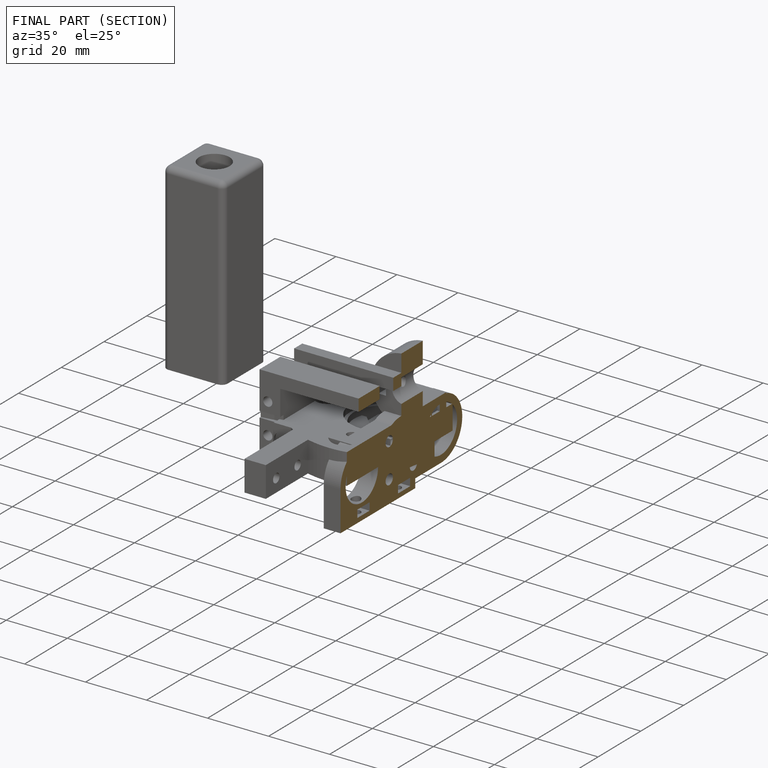
[diagram: finished part — half-section view (interior)]
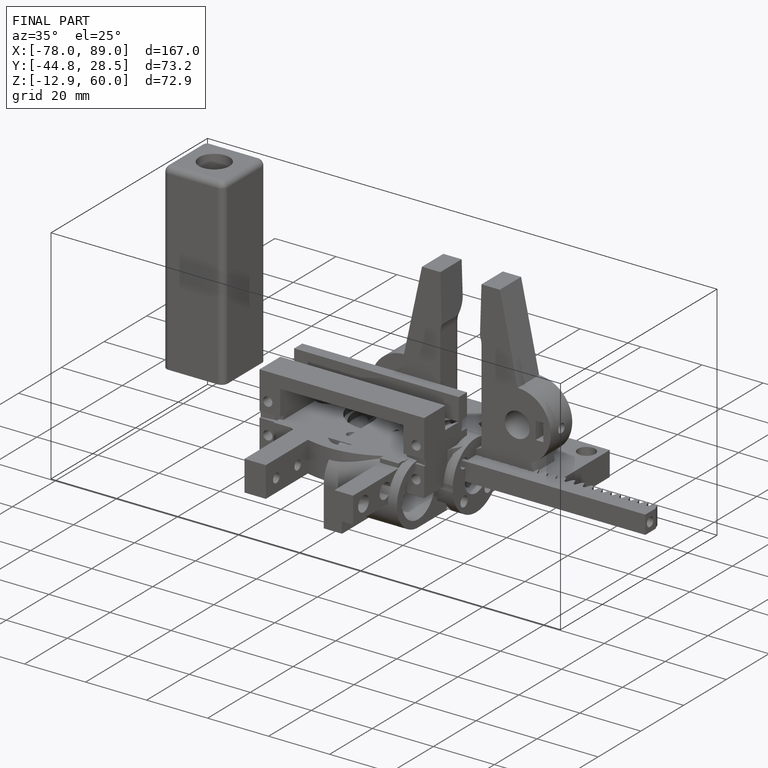
[diagram: finished part — iso view with bounding-box wireframe]
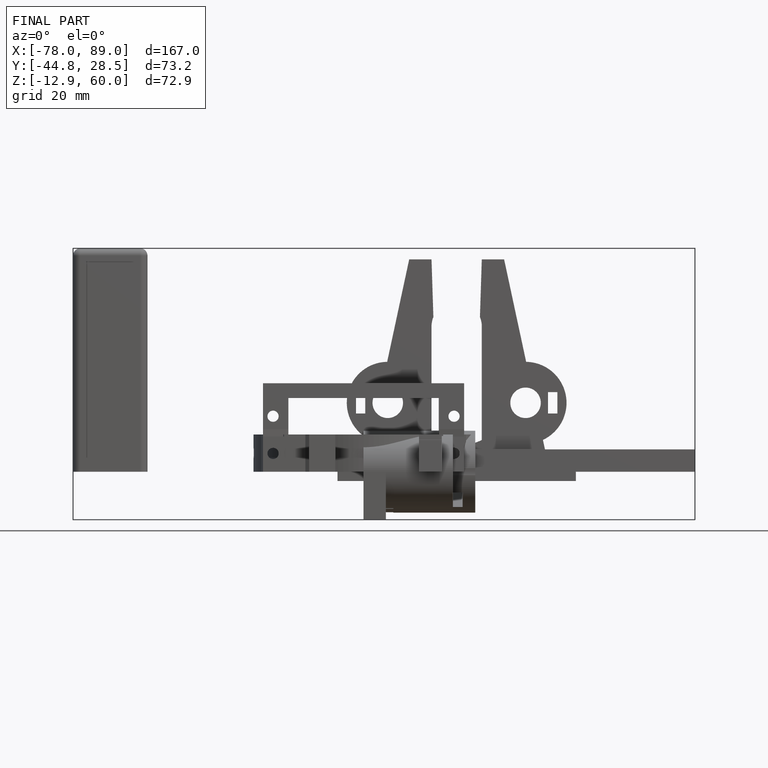
[diagram: finished part — front view with bounding-box wireframe]
